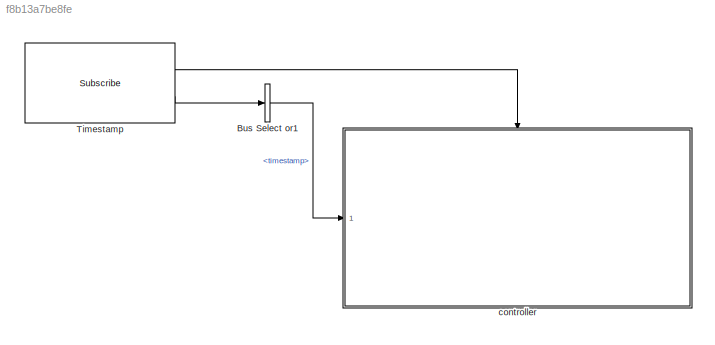
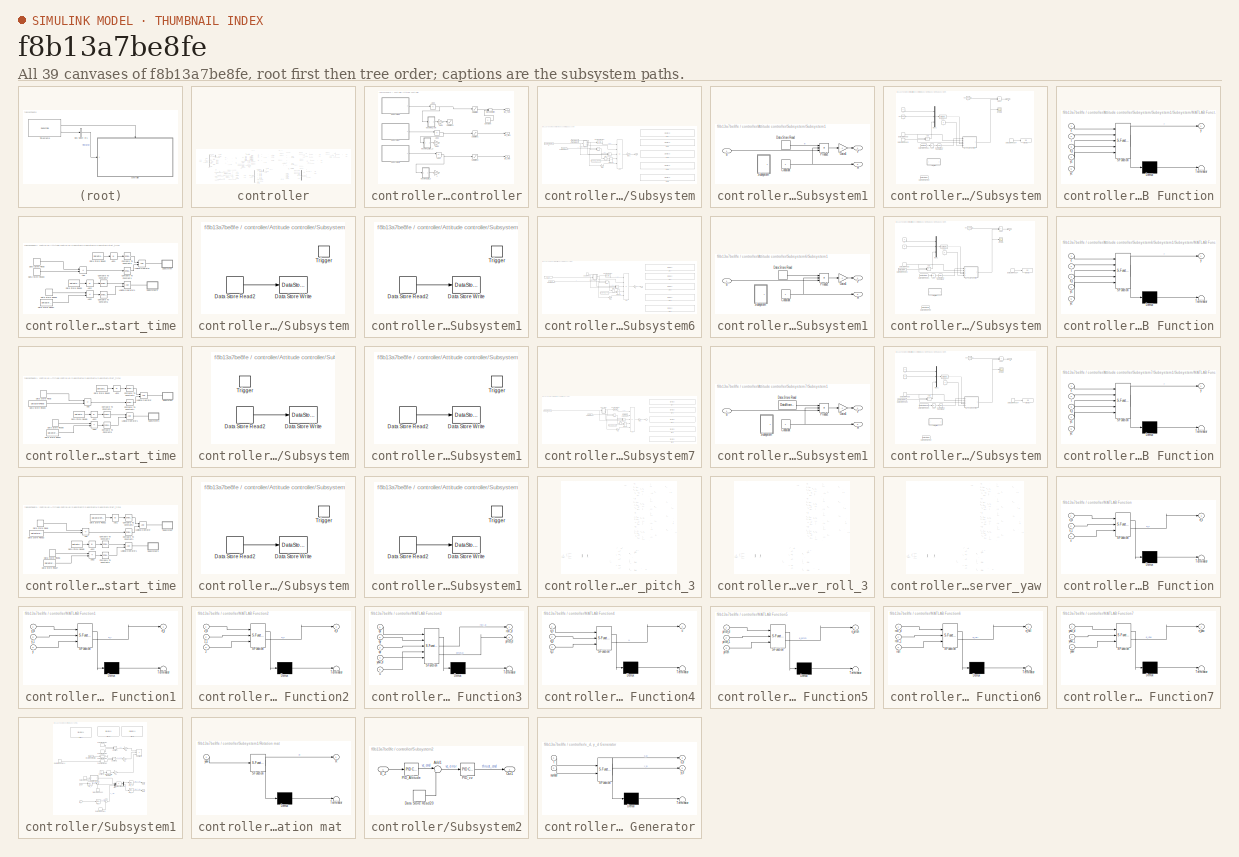
[diagram: thumbnail index - all 39 canvases of the model, root first then tree order]
MODEL slx_f8b13a7be8fe
KIND model
CONFIG AbsTol = auto
CONFIG EnableMultiTasking = off
CONFIG FixedStep = 0.001
CONFIG MaxStep = auto
CONFIG MinStep = auto
CONFIG RelTol = 1e-3
CONFIG SampleTimeConstraint = Unconstrained
CONFIG SolverName = FixedStepAuto
CONFIG StartTime = 0.0
CONFIG StopTime = inf
BLOCK [BusSelector] Bus Select or1
  OutputSignals = timestamp
  Ports = [1, 1]
BLOCK [Reference] Timestamp  REF=ros2lib/Subscribe  (lib defined in slx_3c1549211f48)
  Ports = [0, 2]
  SourceBlock = ros2lib/Subscribe
  SourceProductBaseCode = RR
  SourceType = ROS2 Subscribe
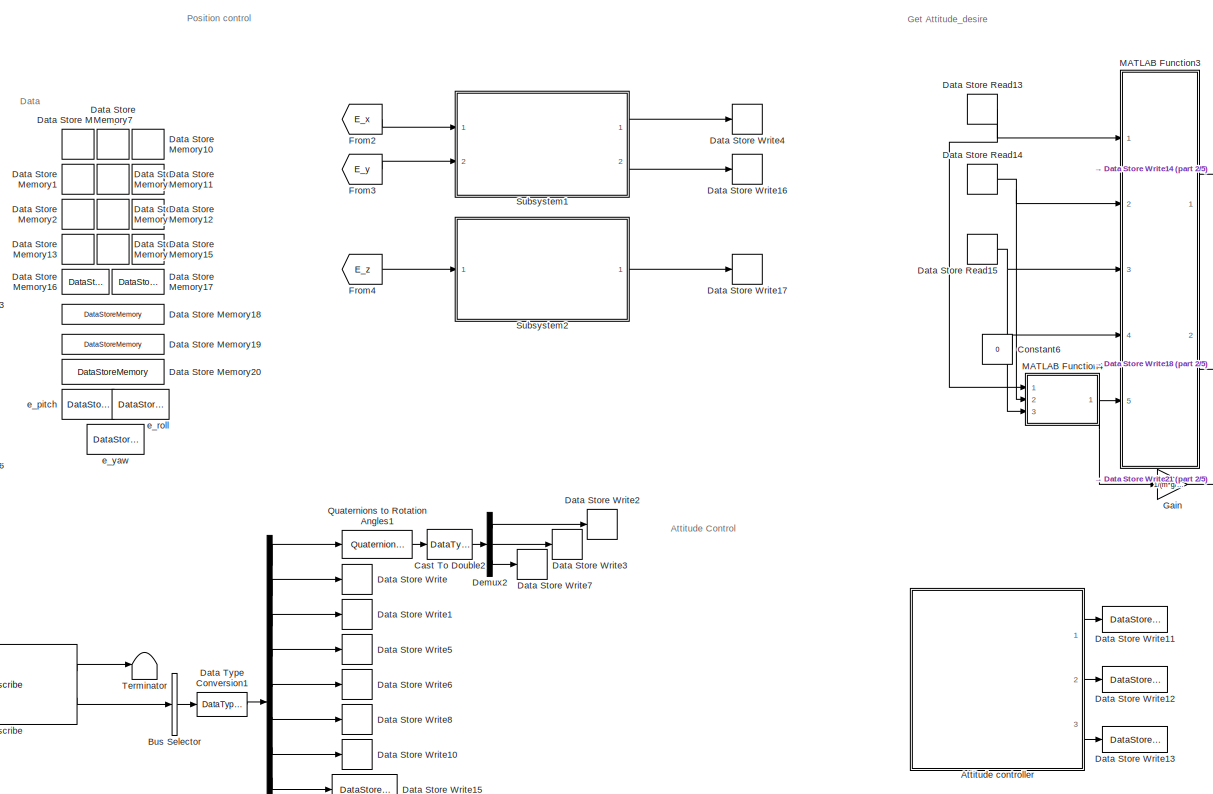
[diagram: controller - part 1/5, center side, full height]
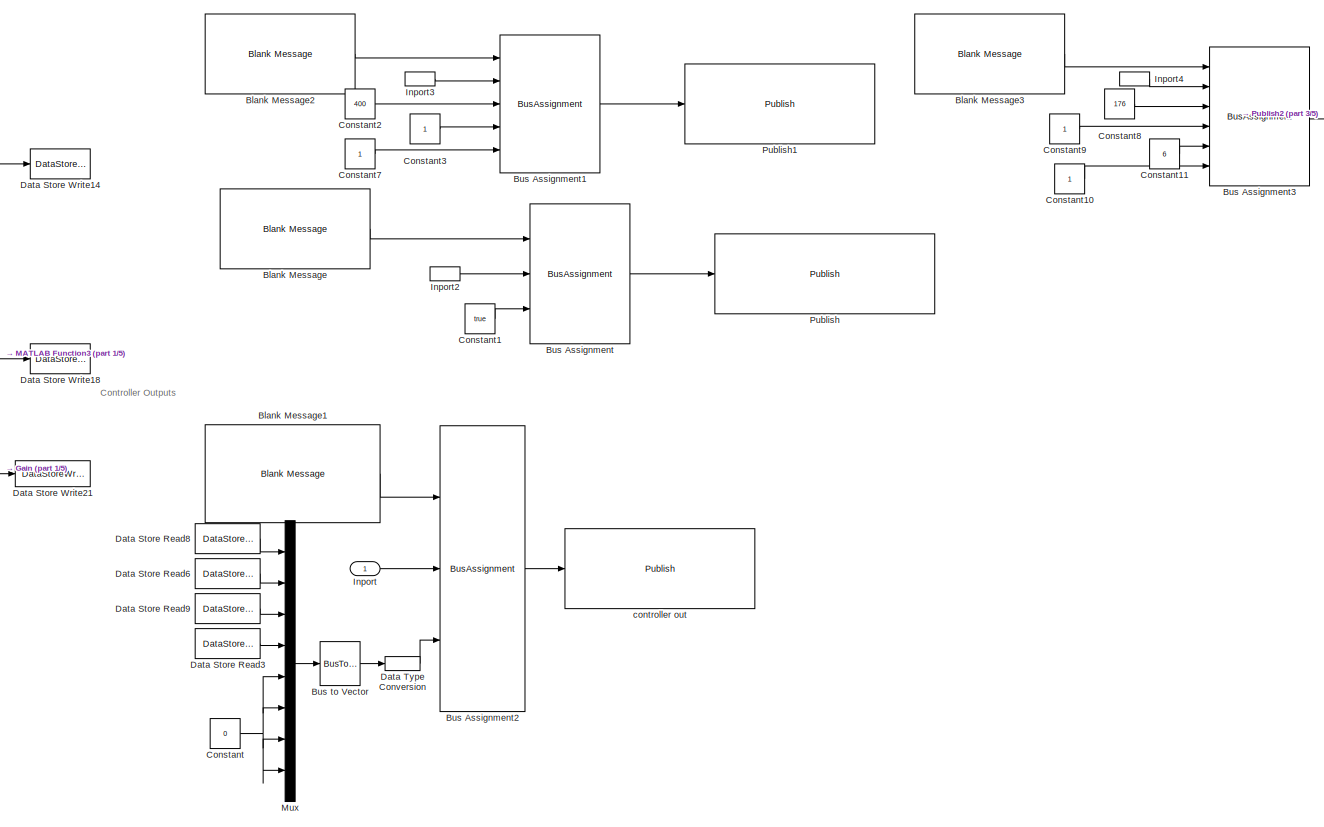
[diagram: controller - part 2/5, right side, full height]
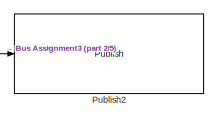
[diagram: controller - part 3/5, top right region]
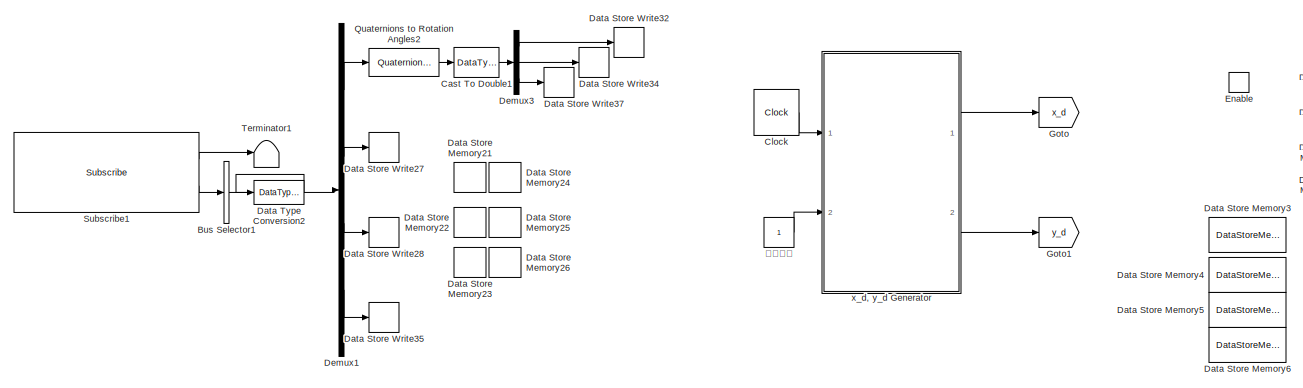
[diagram: controller - part 4/5, middle left region]
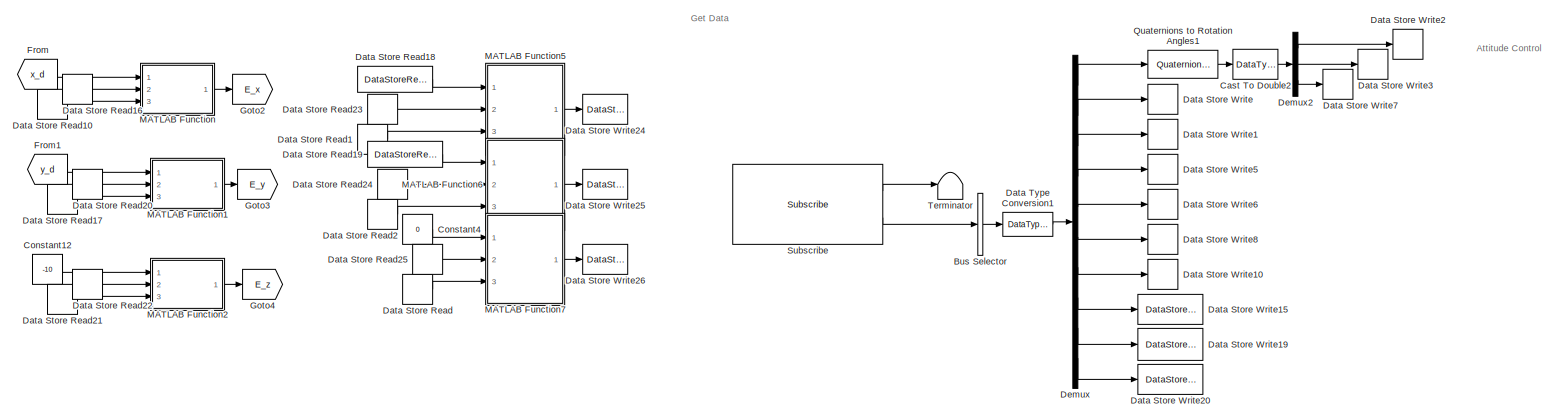
[diagram: controller - part 5/5, bottom left region]
BLOCK [SubSystem] controller
  Ports = [1, 0, 1]
  RequestExecContextInheritance = off
BLOCK [SubSystem] controller/Attitude controller
  Ports = [0, 3]
  RequestExecContextInheritance = off
BLOCK [Sum] controller/Attitude controller/Add1
  IconShape = rectangular
  Inputs = +-
  Ports = [2, 1]
BLOCK [Sum] controller/Attitude controller/Add2
  IconShape = rectangular
  Inputs = +-
  Ports = [2, 1]
BLOCK [Sum] controller/Attitude controller/Add3
  IconShape = rectangular
  Inputs = +-
  Ports = [2, 1]
BLOCK [Constant] controller/Attitude controller/Constant
  Value = 0
BLOCK [Gain] controller/Attitude controller/Gain1
  Commented = on
  Gain = 0.008
BLOCK [Gain] controller/Attitude controller/Gain2
  Commented = on
  Gain = 0.00478
BLOCK [Gain] controller/Attitude controller/J
  Commented = on
  Gain = 0.00478
BLOCK [ManualSwitch] controller/Attitude controller/Manual Switch
BLOCK [Saturate] controller/Attitude controller/Saturation
  LowerLimit = -att_limit
  UpperLimit = att_limit
BLOCK [Saturate] controller/Attitude controller/Saturation1
  LowerLimit = -att_limit
  UpperLimit = att_limit
BLOCK [Saturate] controller/Attitude controller/Saturation2
  LowerLimit = -att_limit
  UpperLimit = att_limit
BLOCK [Saturate] controller/Attitude controller/Saturation4
  Commented = on
  UpperLimit = 0.2
BLOCK [SubSystem] controller/Attitude controller/Subsystem
  Ports = [0, 1]
  RequestExecContextInheritance = off
BLOCK [Sum] controller/Attitude controller/Subsystem/Add
  IconShape = rectangular
  Inputs = +----
  Ports = [5, 1]
BLOCK [Sum] controller/Attitude controller/Subsystem/Add1
  IconShape = rectangular
  Inputs = +-
  Ports = [2, 1]
BLOCK [DataStoreRead] controller/Attitude controller/Subsystem/Data Store Read
  DataStoreName = e_pitch
  IndexOptions = Index vector (dialog)
  Indices = 1
  OutputSizes = 1
  Ports = [0, 1]
BLOCK [DataStoreRead] controller/Attitude controller/Subsystem/Data Store Read1
  DataStoreName = pitch_speed
  IndexOptions = Index vector (dialog)
  Indices = 1
  OutputSizes = 1
  Ports = [0, 1]
BLOCK [Reference] controller/Attitude controller/Subsystem/Discrete Derivative1  REF=simulink/Discrete/Discrete Derivative
  Ports = [1, 1]
  SourceBlock = simulink/Discrete/Discrete Derivative
  SourceProductBaseCode = SL
  SourceType = Discrete Derivative
BLOCK [Gain] controller/Attitude controller/Subsystem/Gain
  Gain = 0.01/0.0052
BLOCK [Gain] controller/Attitude controller/Subsystem/Gain1
  Gain = 0.029125
BLOCK [Product] controller/Attitude controller/Subsystem/Product
  Inputs = 3
  Ports = [3, 1]
BLOCK [Product] controller/Attitude controller/Subsystem/Product1
  Ports = [2, 1]
BLOCK [Signum] controller/Attitude controller/Subsystem/Sign
BLOCK [SliderBlock] controller/Attitude controller/Subsystem/Slider
  ScaleMax = 20
BLOCK [SliderBlock] controller/Attitude controller/Subsystem/Slider1
  ScaleMax = 20
BLOCK [SliderBlock] controller/Attitude controller/Subsystem/Slider2
  ScaleMax = 10
  ScaleMin = 2
BLOCK [SliderBlock] controller/Attitude controller/Subsystem/Slider3
  ScaleMax = 20
BLOCK [SliderBlock] controller/Attitude controller/Subsystem/Slider4
  ScaleMax = 10
BLOCK [SubSystem] controller/Attitude controller/Subsystem/Subsystem1
  Ports = [1, 2]
  RequestExecContextInheritance = off
BLOCK [Constant] controller/Attitude controller/Subsystem/Subsystem1/Constant
  OutDataTypeStr = double
BLOCK [DataStoreRead] controller/Attitude controller/Subsystem/Subsystem1/Data Store Read
  DataStoreName = e_pitch
  IndexOptions = Index vector (dialog)
  Indices = 1
  OutputSizes = 1
  Ports = [0, 1]
BLOCK [Gain] controller/Attitude controller/Subsystem/Subsystem1/Gain4
  Gain = -1
BLOCK [Outport] controller/Attitude controller/Subsystem/Subsystem1/H
  Port = 2
BLOCK [Product] controller/Attitude controller/Subsystem/Subsystem1/Product
  Inputs = 3
  Ports = [3, 1]
BLOCK [SubSystem] controller/Attitude controller/Subsystem/Subsystem1/Subsystem
  Commented = on
  Ports = [0, 1]
  RequestExecContextInheritance = off
BLOCK [Abs] controller/Attitude controller/Subsystem/Subsystem1/Subsystem/Abs
  SaturateOnIntegerOverflow = off
BLOCK [Sum] controller/Attitude controller/Subsystem/Subsystem1/Subsystem/Add
  IconShape = rectangular
  Inputs = +-
  Ports = [2, 1]
BLOCK [Sum] controller/Attitude controller/Subsystem/Subsystem1/Subsystem/Add1
  IconShape = rectangular
  Ports = [2, 1]
BLOCK [Reference] controller/Attitude controller/Subsystem/Subsystem1/Subsystem/Compare To Constant1  REF=simulink/Logic and Bit
Operations/Compare
To Constant
  Ports = [1, 1]
  SourceBlock = simulink/Logic and Bit\nOperations/Compare\nTo Constant
  SourceProductBaseCode = SL
  SourceType = Compare To Constant
BLOCK [DataStoreMemory] controller/Attitude controller/Subsystem/Subsystem1/Subsystem/Data Store Memory
  DataStoreName = start_time
  ReadBeforeWriteMsg = warning
  ShowAdditionalParam = off
  WriteAfterReadMsg = warning
  WriteAfterWriteMsg = warning
BLOCK [DataStoreRead] controller/Attitude controller/Subsystem/Subsystem1/Subsystem/Data Store Read
  DataStoreName = t
  IndexOptions = Index vector (dialog)
  Indices = 1
  OutputSizes = 1
  Ports = [0, 1]
BLOCK [DataStoreRead] controller/Attitude controller/Subsystem/Subsystem1/Subsystem/Data Store Read1
  DataStoreName = e_pitch
  IndexOptions = Index vector (dialog)
  Indices = 1
  OutputSizes = 1
  Ports = [0, 1]
BLOCK [DataStoreRead] controller/Attitude controller/Subsystem/Subsystem1/Subsystem/Data Store Read3
  DataStoreName = start_time
  IndexOptions = Index vector (dialog)
  Indices = 1
  OutputSizes = 1
  Ports = [0, 1]
BLOCK [DataStoreRead] controller/Attitude controller/Subsystem/Subsystem1/Subsystem/Data Store Read4
  DataStoreName = start_time
  IndexOptions = Index vector (dialog)
  Indices = 1
  OutputSizes = 1
  Ports = [0, 1]
BLOCK [Display] controller/Attitude controller/Subsystem/Subsystem1/Subsystem/Display
  Decimation = 1
  Ports = [1]
BLOCK [Fcn] controller/Attitude controller/Subsystem/Subsystem1/Subsystem/Fcn
  Expr = u(1)/(u(2)-u(3))
BLOCK [Outport] controller/Attitude controller/Subsystem/Subsystem1/Subsystem/H
BLOCK [SubSystem] controller/Attitude controller/Subsystem/Subsystem1/Subsystem/MATLAB Function
  ErrorFcn = Stateflow.Translate.translate
  PermitHierarchicalResolution = ExplicitOnly
  Ports = [5, 1]
  RequestExecContextInheritance = off
  SFBlockType = MATLAB Function
  TreatAsAtomicUnit = on
BLOCK [Demux] controller/Attitude controller/Subsystem/Subsystem1/Subsystem/MATLAB Function/ Demux 
  Outputs = 1
  Ports = [1, 1]
BLOCK [S-Function] controller/Attitude controller/Subsystem/Subsystem1/Subsystem/MATLAB Function/ SFunction 
  EnableBusSupport = on
  FunctionName = sf_sfun
  PortCounts = [5 2]
  Ports = [5, 2]
  SFcnIsStateOwnerBlock = off
  SFunctionDeploymentMode = off
  Tag = Stateflow S-Function 2
BLOCK [Terminator] controller/Attitude controller/Subsystem/Subsystem1/Subsystem/MATLAB Function/ Terminator 
BLOCK [Inport] controller/Attitude controller/Subsystem/Subsystem1/Subsystem/MATLAB Function/e
BLOCK [Inport] controller/Attitude controller/Subsystem/Subsystem1/Subsystem/MATLAB Function/s_t
  Port = 3
BLOCK [Inport] controller/Attitude controller/Subsystem/Subsystem1/Subsystem/MATLAB Function/t
  Port = 2
BLOCK [Outport] controller/Attitude controller/Subsystem/Subsystem1/Subsystem/MATLAB Function/y
BLOCK [Inport] controller/Attitude controller/Subsystem/Subsystem1/Subsystem/MATLAB Function/y1
  Port = 4
BLOCK [Inport] controller/Attitude controller/Subsystem/Subsystem1/Subsystem/MATLAB Function/y2
  Port = 5
BLOCK [Mux] controller/Attitude controller/Subsystem/Subsystem1/Subsystem/Mux1
  DisplayOption = bar
  Inputs = 3
  Ports = [3, 1]
BLOCK [Scope] controller/Attitude controller/Subsystem/Subsystem1/Subsystem/Scope
  Floating = off
  NumInputPorts = 1
  Ports = [1]
  ScopeSpecificationString = Simulink.scopes.TimeScopeBlockCfg('CurrentConfiguration', extmgr.ConfigurationSet(extmgr.Configuration('Core','General UI',true),extmgr.Configuration('Core','Source UI',true),extmgr.Configuration('Sources','WiredSimulink',true,'DataLoggingVariableName','ScopeData1'),extmgr.Configuration('Visuals','Time Domain',true,'SerializedDisplays',{struct('MinYLimReal','-1.25','MaxYLimReal','11.25','YLabelRea...<+1484ch>  <repeated x3 — deduplicated; at blocks: Scope>
BLOCK [Constant] controller/Attitude controller/Subsystem/Subsystem1/Subsystem/T
  Value = 5.018640350877193
BLOCK [Constant] controller/Attitude controller/Subsystem/Subsystem1/Subsystem/ch
  Value = 2
BLOCK [Constant] controller/Attitude controller/Subsystem/Subsystem1/Subsystem/r
  Value = 6.033653846153846
BLOCK [SubSystem] controller/Attitude controller/Subsystem/Subsystem1/Subsystem/start_time
  Ports = []
  RequestExecContextInheritance = off
BLOCK [Abs] controller/Attitude controller/Subsystem/Subsystem1/Subsystem/start_time/Abs1
  SaturateOnIntegerOverflow = off
BLOCK [Abs] controller/Attitude controller/Subsystem/Subsystem1/Subsystem/start_time/Abs2
  Commented = on
  SaturateOnIntegerOverflow = off
BLOCK [Sum] controller/Attitude controller/Subsystem/Subsystem1/Subsystem/start_time/Add
  IconShape = rectangular
  Inputs = +-
  Ports = [2, 1]
BLOCK [Sum] controller/Attitude controller/Subsystem/Subsystem1/Subsystem/start_time/Add2
  Commented = on
  IconShape = rectangular
  Inputs = +-
  Ports = [2, 1]
BLOCK [Reference] controller/Attitude controller/Subsystem/Subsystem1/Subsystem/start_time/Compare To Constant1  REF=simulink/Logic and Bit
Operations/Compare
To Constant
  Ports = [1, 1]
  SourceBlock = simulink/Logic and Bit\nOperations/Compare\nTo Constant
  SourceProductBaseCode = SL
  SourceType = Compare To Constant
BLOCK [Reference] controller/Attitude controller/Subsystem/Subsystem1/Subsystem/start_time/Compare To Constant2  REF=simulink/Logic and Bit
Operations/Compare
To Constant
  Ports = [1, 1]
  SourceBlock = simulink/Logic and Bit\nOperations/Compare\nTo Constant
  SourceProductBaseCode = SL
  SourceType = Compare To Constant
BLOCK [Reference] controller/Attitude controller/Subsystem/Subsystem1/Subsystem/start_time/Compare To Constant4  REF=simulink/Logic and Bit
Operations/Compare
To Constant
  Commented = on
  Ports = [1, 1]
  SourceBlock = simulink/Logic and Bit\nOperations/Compare\nTo Constant
  SourceProductBaseCode = SL
  SourceType = Compare To Constant
BLOCK [Reference] controller/Attitude controller/Subsystem/Subsystem1/Subsystem/start_time/Compare To Constant5  REF=simulink/Logic and Bit
Operations/Compare
To Constant
  Commented = on
  Ports = [1, 1]
  SourceBlock = simulink/Logic and Bit\nOperations/Compare\nTo Constant
  SourceProductBaseCode = SL
  SourceType = Compare To Constant
BLOCK [DataStoreRead] controller/Attitude controller/Subsystem/Subsystem1/Subsystem/start_time/Data Store Read
  DataStoreName = t
  IndexOptions = Index vector (dialog)
  Indices = 1
  OutputSizes = 1
  Ports = [0, 1]
BLOCK [DataStoreRead] controller/Attitude controller/Subsystem/Subsystem1/Subsystem/start_time/Data Store Read2
  DataStoreName = e_pitch
  IndexOptions = Index vector (dialog)
  Indices = 1
  OutputSizes = 1
  Ports = [0, 1]
BLOCK [DataStoreRead] controller/Attitude controller/Subsystem/Subsystem1/Subsystem/start_time/Data Store Read3
  DataStoreName = start_time
  IndexOptions = Index vector (dialog)
  Indices = 1
  OutputSizes = 1
  Ports = [0, 1]
BLOCK [DataStoreRead] controller/Attitude controller/Subsystem/Subsystem1/Subsystem/start_time/Data Store Read5
  Commented = on
  DataStoreName = e_pitch
  IndexOptions = Index vector (dialog)
  Indices = 1
  OutputSizes = 1
  Ports = [0, 1]
BLOCK [DataStoreRead] controller/Attitude controller/Subsystem/Subsystem1/Subsystem/start_time/Data Store Read6
  Commented = on
  DataStoreName = t
  IndexOptions = Index vector (dialog)
  Indices = 1
  OutputSizes = 1
  Ports = [0, 1]
BLOCK [DataStoreRead] controller/Attitude controller/Subsystem/Subsystem1/Subsystem/start_time/Data Store Read7
  Commented = on
  DataStoreName = start_time
  IndexOptions = Index vector (dialog)
  Indices = 1
  OutputSizes = 1
  Ports = [0, 1]
BLOCK [Logic] controller/Attitude controller/Subsystem/Subsystem1/Subsystem/start_time/Logical Operator
  AllPortsSameDT = off
  OutDataTypeStr = boolean
  Ports = [2, 1]
BLOCK [Logic] controller/Attitude controller/Subsystem/Subsystem1/Subsystem/start_time/Logical Operator1
  AllPortsSameDT = off
  Commented = on
  OutDataTypeStr = boolean
  Ports = [2, 1]
BLOCK [SubSystem] controller/Attitude controller/Subsystem/Subsystem1/Subsystem/start_time/Subsystem
  NameLocation = right
  Ports = [0, 0, 0, 1]
  RequestExecContextInheritance = off
BLOCK [DataStoreRead] controller/Attitude controller/Subsystem/Subsystem1/Subsystem/start_time/Subsystem/Data Store Read2
  DataStoreName = t
  IndexOptions = Index vector (dialog)
  Indices = 1
  OutputSizes = 1
  Ports = [0, 1]
BLOCK [DataStoreWrite] controller/Attitude controller/Subsystem/Subsystem1/Subsystem/start_time/Subsystem/Data Store Write
  DataStoreName = start_time
  IndexOptions = Index vector (dialog)
  Indices = 1
  OutputSizes = 1
  Ports = [1]
BLOCK [TriggerPort] controller/Attitude controller/Subsystem/Subsystem1/Subsystem/start_time/Subsystem/Trigger
  PortDimensions = 1
  Ports = []
  StatesWhenEnabling = held
  VariantControl = Variant
BLOCK [SubSystem] controller/Attitude controller/Subsystem/Subsystem1/Subsystem/start_time/Subsystem1
  Commented = on
  NameLocation = right
  Ports = [0, 0, 0, 1]
  RequestExecContextInheritance = off
BLOCK [DataStoreRead] controller/Attitude controller/Subsystem/Subsystem1/Subsystem/start_time/Subsystem1/Data Store Read2
  DataStoreName = t
  IndexOptions = Index vector (dialog)
  Indices = 1
  OutputSizes = 1
  Ports = [0, 1]
BLOCK [DataStoreWrite] controller/Attitude controller/Subsystem/Subsystem1/Subsystem/start_time/Subsystem1/Data Store Write
  DataStoreName = start_time
  IndexOptions = Index vector (dialog)
  Indices = 1
  OutputSizes = 1
  Ports = [1]
BLOCK [TriggerPort] controller/Attitude controller/Subsystem/Subsystem1/Subsystem/start_time/Subsystem1/Trigger
  PortDimensions = 1
  Ports = []
  StatesWhenEnabling = held
  VariantControl = Variant
BLOCK [Constant] controller/Attitude controller/Subsystem/Subsystem1/Subsystem/t
  Value = 0
BLOCK [Inport] controller/Attitude controller/Subsystem/Subsystem1/b
BLOCK [Outport] controller/Attitude controller/Subsystem/Subsystem1/v*
BLOCK [Constant] controller/Attitude controller/Subsystem/b
  Value = 1.170900809716599
BLOCK [Constant] controller/Attitude controller/Subsystem/l
  Value = 0.5282118055555556
BLOCK [Outport] controller/Attitude controller/Subsystem/u2
BLOCK [SubSystem] controller/Attitude controller/Subsystem6
  Ports = [0, 1]
  RequestExecContextInheritance = off
BLOCK [Sum] controller/Attitude controller/Subsystem6/Add
  IconShape = rectangular
  Inputs = +----
  Ports = [5, 1]
BLOCK [Sum] controller/Attitude controller/Subsystem6/Add1
  IconShape = rectangular
  Inputs = +-
  Ports = [2, 1]
BLOCK [DataStoreRead] controller/Attitude controller/Subsystem6/Data Store Read
  DataStoreName = e_roll
  IndexOptions = Index vector (dialog)
  Indices = 1
  OutputSizes = 1
  Ports = [0, 1]
BLOCK [DataStoreRead] controller/Attitude controller/Subsystem6/Data Store Read1
  DataStoreName = roll_speed
  IndexOptions = Index vector (dialog)
  Indices = 1
  OutputSizes = 1
  Ports = [0, 1]
BLOCK [Reference] controller/Attitude controller/Subsystem6/Discrete Derivative1  REF=simulink/Discrete/Discrete Derivative
  Ports = [1, 1]
  SourceBlock = simulink/Discrete/Discrete Derivative
  SourceProductBaseCode = SL
  SourceType = Discrete Derivative
BLOCK [Gain] controller/Attitude controller/Subsystem6/Gain
  Gain = 0.01/0.0052
BLOCK [Gain] controller/Attitude controller/Subsystem6/J
  Gain = 0.029125
BLOCK [Product] controller/Attitude controller/Subsystem6/Product
  Inputs = 3
  Ports = [3, 1]
BLOCK [Product] controller/Attitude controller/Subsystem6/Product1
  Ports = [2, 1]
BLOCK [Signum] controller/Attitude controller/Subsystem6/Sign
BLOCK [SliderBlock] controller/Attitude controller/Subsystem6/Slider
  ScaleMax = 20
BLOCK [SliderBlock] controller/Attitude controller/Subsystem6/Slider1
  ScaleMax = 20
BLOCK [SliderBlock] controller/Attitude controller/Subsystem6/Slider2
  ScaleMax = 10
  ScaleMin = 2
BLOCK [SliderBlock] controller/Attitude controller/Subsystem6/Slider3
  ScaleMax = 20
BLOCK [SliderBlock] controller/Attitude controller/Subsystem6/Slider4
  ScaleMax = 10
BLOCK [SubSystem] controller/Attitude controller/Subsystem6/Subsystem1
  Ports = [1, 2]
  RequestExecContextInheritance = off
BLOCK [Constant] controller/Attitude controller/Subsystem6/Subsystem1/Constant
  OutDataTypeStr = double
BLOCK [DataStoreRead] controller/Attitude controller/Subsystem6/Subsystem1/Data Store Read
  DataStoreName = e_roll
  IndexOptions = Index vector (dialog)
  Indices = 1
  OutputSizes = 1
  Ports = [0, 1]
BLOCK [Gain] controller/Attitude controller/Subsystem6/Subsystem1/Gain4
  Gain = -1
BLOCK [Outport] controller/Attitude controller/Subsystem6/Subsystem1/H
  Port = 2
BLOCK [Product] controller/Attitude controller/Subsystem6/Subsystem1/Product
  Inputs = 3
  Ports = [3, 1]
BLOCK [SubSystem] controller/Attitude controller/Subsystem6/Subsystem1/Subsystem
  Commented = on
  Ports = [0, 1]
  RequestExecContextInheritance = off
BLOCK [Abs] controller/Attitude controller/Subsystem6/Subsystem1/Subsystem/Abs
  SaturateOnIntegerOverflow = off
BLOCK [Sum] controller/Attitude controller/Subsystem6/Subsystem1/Subsystem/Add
  IconShape = rectangular
  Inputs = +-
  Ports = [2, 1]
BLOCK [Sum] controller/Attitude controller/Subsystem6/Subsystem1/Subsystem/Add1
  IconShape = rectangular
  Ports = [2, 1]
BLOCK [Reference] controller/Attitude controller/Subsystem6/Subsystem1/Subsystem/Compare To Constant1  REF=simulink/Logic and Bit
Operations/Compare
To Constant
  Ports = [1, 1]
  SourceBlock = simulink/Logic and Bit\nOperations/Compare\nTo Constant
  SourceProductBaseCode = SL
  SourceType = Compare To Constant
BLOCK [DataStoreMemory] controller/Attitude controller/Subsystem6/Subsystem1/Subsystem/Data Store Memory
  DataStoreName = start_time_roll
  ReadBeforeWriteMsg = warning
  ShowAdditionalParam = off
  WriteAfterReadMsg = warning
  WriteAfterWriteMsg = warning
BLOCK [DataStoreRead] controller/Attitude controller/Subsystem6/Subsystem1/Subsystem/Data Store Read
  DataStoreName = t
  IndexOptions = Index vector (dialog)
  Indices = 1
  OutputSizes = 1
  Ports = [0, 1]
BLOCK [DataStoreRead] controller/Attitude controller/Subsystem6/Subsystem1/Subsystem/Data Store Read1
  DataStoreName = e_pitch_roll
  IndexOptions = Index vector (dialog)
  Indices = 1
  OutputSizes = 1
  Ports = [0, 1]
BLOCK [DataStoreRead] controller/Attitude controller/Subsystem6/Subsystem1/Subsystem/Data Store Read3
  DataStoreName = start_time_roll
  IndexOptions = Index vector (dialog)
  Indices = 1
  OutputSizes = 1
  Ports = [0, 1]
BLOCK [DataStoreRead] controller/Attitude controller/Subsystem6/Subsystem1/Subsystem/Data Store Read4
  DataStoreName = start_time_roll
  IndexOptions = Index vector (dialog)
  Indices = 1
  OutputSizes = 1
  Ports = [0, 1]
BLOCK [Display] controller/Attitude controller/Subsystem6/Subsystem1/Subsystem/Display
  Decimation = 1
  Ports = [1]
BLOCK [Fcn] controller/Attitude controller/Subsystem6/Subsystem1/Subsystem/Fcn
  Expr = u(1)/(u(2)-u(3))
BLOCK [Outport] controller/Attitude controller/Subsystem6/Subsystem1/Subsystem/H
BLOCK [SubSystem] controller/Attitude controller/Subsystem6/Subsystem1/Subsystem/MATLAB Function
  ErrorFcn = Stateflow.Translate.translate
  PermitHierarchicalResolution = ExplicitOnly
  Ports = [5, 1]
  RequestExecContextInheritance = off
  SFBlockType = MATLAB Function
  TreatAsAtomicUnit = on
BLOCK [Demux] controller/Attitude controller/Subsystem6/Subsystem1/Subsystem/MATLAB Function/ Demux 
  Outputs = 1
  Ports = [1, 1]
BLOCK [S-Function] controller/Attitude controller/Subsystem6/Subsystem1/Subsystem/MATLAB Function/ SFunction 
  EnableBusSupport = on
  FunctionName = sf_sfun
  PortCounts = [5 2]
  Ports = [5, 2]
  SFcnIsStateOwnerBlock = off
  SFunctionDeploymentMode = off
  Tag = Stateflow S-Function 14
BLOCK [Terminator] controller/Attitude controller/Subsystem6/Subsystem1/Subsystem/MATLAB Function/ Terminator 
BLOCK [Inport] controller/Attitude controller/Subsystem6/Subsystem1/Subsystem/MATLAB Function/e
BLOCK [Inport] controller/Attitude controller/Subsystem6/Subsystem1/Subsystem/MATLAB Function/s_t
  Port = 3
BLOCK [Inport] controller/Attitude controller/Subsystem6/Subsystem1/Subsystem/MATLAB Function/t
  Port = 2
BLOCK [Outport] controller/Attitude controller/Subsystem6/Subsystem1/Subsystem/MATLAB Function/y
BLOCK [Inport] controller/Attitude controller/Subsystem6/Subsystem1/Subsystem/MATLAB Function/y1
  Port = 4
BLOCK [Inport] controller/Attitude controller/Subsystem6/Subsystem1/Subsystem/MATLAB Function/y2
  Port = 5
BLOCK [Mux] controller/Attitude controller/Subsystem6/Subsystem1/Subsystem/Mux1
  DisplayOption = bar
  Inputs = 3
  Ports = [3, 1]
BLOCK [Scope] controller/Attitude controller/Subsystem6/Subsystem1/Subsystem/Scope
  Floating = off
  NumInputPorts = 1
  Ports = [1]
BLOCK [Constant] controller/Attitude controller/Subsystem6/Subsystem1/Subsystem/T
  Value = 5
BLOCK [Constant] controller/Attitude controller/Subsystem6/Subsystem1/Subsystem/ch
  Value = 2
BLOCK [Constant] controller/Attitude controller/Subsystem6/Subsystem1/Subsystem/r
  Value = 6.001388888888889
BLOCK [SubSystem] controller/Attitude controller/Subsystem6/Subsystem1/Subsystem/start_time
  Ports = []
  RequestExecContextInheritance = off
BLOCK [Abs] controller/Attitude controller/Subsystem6/Subsystem1/Subsystem/start_time/Abs1
  SaturateOnIntegerOverflow = off
BLOCK [Abs] controller/Attitude controller/Subsystem6/Subsystem1/Subsystem/start_time/Abs2
  Commented = on
  SaturateOnIntegerOverflow = off
BLOCK [Sum] controller/Attitude controller/Subsystem6/Subsystem1/Subsystem/start_time/Add
  IconShape = rectangular
  Inputs = +-
  Ports = [2, 1]
BLOCK [Sum] controller/Attitude controller/Subsystem6/Subsystem1/Subsystem/start_time/Add2
  Commented = on
  IconShape = rectangular
  Inputs = +-
  Ports = [2, 1]
BLOCK [Reference] controller/Attitude controller/Subsystem6/Subsystem1/Subsystem/start_time/Compare To Constant1  REF=simulink/Logic and Bit
Operations/Compare
To Constant
  Ports = [1, 1]
  SourceBlock = simulink/Logic and Bit\nOperations/Compare\nTo Constant
  SourceProductBaseCode = SL
  SourceType = Compare To Constant
BLOCK [Reference] controller/Attitude controller/Subsystem6/Subsystem1/Subsystem/start_time/Compare To Constant2  REF=simulink/Logic and Bit
Operations/Compare
To Constant
  Ports = [1, 1]
  SourceBlock = simulink/Logic and Bit\nOperations/Compare\nTo Constant
  SourceProductBaseCode = SL
  SourceType = Compare To Constant
BLOCK [Reference] controller/Attitude controller/Subsystem6/Subsystem1/Subsystem/start_time/Compare To Constant4  REF=simulink/Logic and Bit
Operations/Compare
To Constant
  Commented = on
  Ports = [1, 1]
  SourceBlock = simulink/Logic and Bit\nOperations/Compare\nTo Constant
  SourceProductBaseCode = SL
  SourceType = Compare To Constant
BLOCK [Reference] controller/Attitude controller/Subsystem6/Subsystem1/Subsystem/start_time/Compare To Constant5  REF=simulink/Logic and Bit
Operations/Compare
To Constant
  Commented = on
  Ports = [1, 1]
  SourceBlock = simulink/Logic and Bit\nOperations/Compare\nTo Constant
  SourceProductBaseCode = SL
  SourceType = Compare To Constant
BLOCK [DataStoreRead] controller/Attitude controller/Subsystem6/Subsystem1/Subsystem/start_time/Data Store Read
  DataStoreName = t
  IndexOptions = Index vector (dialog)
  Indices = 1
  OutputSizes = 1
  Ports = [0, 1]
BLOCK [DataStoreRead] controller/Attitude controller/Subsystem6/Subsystem1/Subsystem/start_time/Data Store Read2
  DataStoreName = e_pitch_roll
  IndexOptions = Index vector (dialog)
  Indices = 1
  OutputSizes = 1
  Ports = [0, 1]
BLOCK [DataStoreRead] controller/Attitude controller/Subsystem6/Subsystem1/Subsystem/start_time/Data Store Read3
  DataStoreName = start_time_roll
  IndexOptions = Index vector (dialog)
  Indices = 1
  OutputSizes = 1
  Ports = [0, 1]
BLOCK [DataStoreRead] controller/Attitude controller/Subsystem6/Subsystem1/Subsystem/start_time/Data Store Read5
  Commented = on
  DataStoreName = e_pitch
  IndexOptions = Index vector (dialog)
  Indices = 1
  OutputSizes = 1
  Ports = [0, 1]
BLOCK [DataStoreRead] controller/Attitude controller/Subsystem6/Subsystem1/Subsystem/start_time/Data Store Read6
  Commented = on
  DataStoreName = t
  IndexOptions = Index vector (dialog)
  Indices = 1
  OutputSizes = 1
  Ports = [0, 1]
BLOCK [DataStoreRead] controller/Attitude controller/Subsystem6/Subsystem1/Subsystem/start_time/Data Store Read7
  Commented = on
  DataStoreName = start_time
  IndexOptions = Index vector (dialog)
  Indices = 1
  OutputSizes = 1
  Ports = [0, 1]
BLOCK [Logic] controller/Attitude controller/Subsystem6/Subsystem1/Subsystem/start_time/Logical Operator
  AllPortsSameDT = off
  OutDataTypeStr = boolean
  Ports = [2, 1]
BLOCK [Logic] controller/Attitude controller/Subsystem6/Subsystem1/Subsystem/start_time/Logical Operator1
  AllPortsSameDT = off
  Commented = on
  OutDataTypeStr = boolean
  Ports = [2, 1]
BLOCK [SubSystem] controller/Attitude controller/Subsystem6/Subsystem1/Subsystem/start_time/Subsystem
  NameLocation = right
  Ports = [0, 0, 0, 1]
  RequestExecContextInheritance = off
BLOCK [DataStoreRead] controller/Attitude controller/Subsystem6/Subsystem1/Subsystem/start_time/Subsystem/Data Store Read2
  DataStoreName = t
  IndexOptions = Index vector (dialog)
  Indices = 1
  OutputSizes = 1
  Ports = [0, 1]
BLOCK [DataStoreWrite] controller/Attitude controller/Subsystem6/Subsystem1/Subsystem/start_time/Subsystem/Data Store Write
  DataStoreName = start_time_roll
  IndexOptions = Index vector (dialog)
  Indices = 1
  OutputSizes = 1
  Ports = [1]
BLOCK [TriggerPort] controller/Attitude controller/Subsystem6/Subsystem1/Subsystem/start_time/Subsystem/Trigger
  PortDimensions = 1
  Ports = []
  StatesWhenEnabling = held
  VariantControl = Variant
BLOCK [SubSystem] controller/Attitude controller/Subsystem6/Subsystem1/Subsystem/start_time/Subsystem1
  Commented = on
  NameLocation = right
  Ports = [0, 0, 0, 1]
  RequestExecContextInheritance = off
BLOCK [DataStoreRead] controller/Attitude controller/Subsystem6/Subsystem1/Subsystem/start_time/Subsystem1/Data Store Read2
  DataStoreName = t
  IndexOptions = Index vector (dialog)
  Indices = 1
  OutputSizes = 1
  Ports = [0, 1]
BLOCK [DataStoreWrite] controller/Attitude controller/Subsystem6/Subsystem1/Subsystem/start_time/Subsystem1/Data Store Write
  DataStoreName = start_time
  IndexOptions = Index vector (dialog)
  Indices = 1
  OutputSizes = 1
  Ports = [1]
BLOCK [TriggerPort] controller/Attitude controller/Subsystem6/Subsystem1/Subsystem/start_time/Subsystem1/Trigger
  PortDimensions = 1
  Ports = []
  StatesWhenEnabling = held
  VariantControl = Variant
BLOCK [Constant] controller/Attitude controller/Subsystem6/Subsystem1/Subsystem/t
  Value = 0
BLOCK [Inport] controller/Attitude controller/Subsystem6/Subsystem1/b
BLOCK [Outport] controller/Attitude controller/Subsystem6/Subsystem1/v*
BLOCK [Constant] controller/Attitude controller/Subsystem6/b
  Value = 2.0234
BLOCK [Constant] controller/Attitude controller/Subsystem6/l
  Value = 0.006402777777777777
BLOCK [Outport] controller/Attitude controller/Subsystem6/u2
BLOCK [SubSystem] controller/Attitude controller/Subsystem7
  Ports = [0, 1]
  RequestExecContextInheritance = off
BLOCK [Sum] controller/Attitude controller/Subsystem7/Add
  IconShape = rectangular
  Inputs = +----
  Ports = [5, 1]
BLOCK [Sum] controller/Attitude controller/Subsystem7/Add1
  IconShape = rectangular
  Inputs = +-
  Ports = [2, 1]
BLOCK [DataStoreRead] controller/Attitude controller/Subsystem7/Data Store Read
  DataStoreName = e_yaw
  IndexOptions = Index vector (dialog)
  Indices = 1
  OutputSizes = 1
  Ports = [0, 1]
BLOCK [DataStoreRead] controller/Attitude controller/Subsystem7/Data Store Read1
  DataStoreName = yaw_speed
  IndexOptions = Index vector (dialog)
  Indices = 1
  OutputSizes = 1
  Ports = [0, 1]
BLOCK [Reference] controller/Attitude controller/Subsystem7/Discrete Derivative1  REF=simulink/Discrete/Discrete Derivative
  Ports = [1, 1]
  SourceBlock = simulink/Discrete/Discrete Derivative
  SourceProductBaseCode = SL
  SourceType = Discrete Derivative
BLOCK [Gain] controller/Attitude controller/Subsystem7/Gain
  Gain = 0.01/0.0052
BLOCK [Gain] controller/Attitude controller/Subsystem7/Gain1
  Gain = 0.00502
BLOCK [Product] controller/Attitude controller/Subsystem7/Product
  Inputs = 3
  Ports = [3, 1]
BLOCK [Product] controller/Attitude controller/Subsystem7/Product1
  Ports = [2, 1]
BLOCK [Signum] controller/Attitude controller/Subsystem7/Sign
BLOCK [SliderBlock] controller/Attitude controller/Subsystem7/Slider
  ScaleMax = 20
BLOCK [SliderBlock] controller/Attitude controller/Subsystem7/Slider1
  ScaleMax = 20
BLOCK [SliderBlock] controller/Attitude controller/Subsystem7/Slider2
  ScaleMax = 10
  ScaleMin = 2
BLOCK [SliderBlock] controller/Attitude controller/Subsystem7/Slider3
  ScaleMax = 20
BLOCK [SliderBlock] controller/Attitude controller/Subsystem7/Slider4
  ScaleMax = 10
BLOCK [SubSystem] controller/Attitude controller/Subsystem7/Subsystem1
  Ports = [1, 2]
  RequestExecContextInheritance = off
BLOCK [Constant] controller/Attitude controller/Subsystem7/Subsystem1/Constant
  OutDataTypeStr = double
BLOCK [DataStoreRead] controller/Attitude controller/Subsystem7/Subsystem1/Data Store Read
  DataStoreName = e_yaw
  IndexOptions = Index vector (dialog)
  Indices = 1
  OutputSizes = 1
  Ports = [0, 1]
BLOCK [Gain] controller/Attitude controller/Subsystem7/Subsystem1/Gain4
  Gain = -1
BLOCK [Outport] controller/Attitude controller/Subsystem7/Subsystem1/H
  Port = 2
BLOCK [Product] controller/Attitude controller/Subsystem7/Subsystem1/Product
  Inputs = 3
  Ports = [3, 1]
BLOCK [SubSystem] controller/Attitude controller/Subsystem7/Subsystem1/Subsystem
  Commented = on
  Ports = [0, 1]
  RequestExecContextInheritance = off
BLOCK [Abs] controller/Attitude controller/Subsystem7/Subsystem1/Subsystem/Abs
  SaturateOnIntegerOverflow = off
BLOCK [Sum] controller/Attitude controller/Subsystem7/Subsystem1/Subsystem/Add
  IconShape = rectangular
  Inputs = +-
  Ports = [2, 1]
BLOCK [Sum] controller/Attitude controller/Subsystem7/Subsystem1/Subsystem/Add1
  IconShape = rectangular
  Ports = [2, 1]
BLOCK [Reference] controller/Attitude controller/Subsystem7/Subsystem1/Subsystem/Compare To Constant1  REF=simulink/Logic and Bit
Operations/Compare
To Constant
  Ports = [1, 1]
  SourceBlock = simulink/Logic and Bit\nOperations/Compare\nTo Constant
  SourceProductBaseCode = SL
  SourceType = Compare To Constant
BLOCK [DataStoreMemory] controller/Attitude controller/Subsystem7/Subsystem1/Subsystem/Data Store Memory
  DataStoreName = start_time_yaw
  ReadBeforeWriteMsg = warning
  ShowAdditionalParam = off
  WriteAfterReadMsg = warning
  WriteAfterWriteMsg = warning
BLOCK [DataStoreRead] controller/Attitude controller/Subsystem7/Subsystem1/Subsystem/Data Store Read
  DataStoreName = t
  IndexOptions = Index vector (dialog)
  Indices = 1
  OutputSizes = 1
  Ports = [0, 1]
BLOCK [DataStoreRead] controller/Attitude controller/Subsystem7/Subsystem1/Subsystem/Data Store Read1
  DataStoreName = e_pitch_yaw
  IndexOptions = Index vector (dialog)
  Indices = 1
  OutputSizes = 1
  Ports = [0, 1]
BLOCK [DataStoreRead] controller/Attitude controller/Subsystem7/Subsystem1/Subsystem/Data Store Read3
  DataStoreName = start_time_yaw
  IndexOptions = Index vector (dialog)
  Indices = 1
  OutputSizes = 1
  Ports = [0, 1]
BLOCK [DataStoreRead] controller/Attitude controller/Subsystem7/Subsystem1/Subsystem/Data Store Read4
  DataStoreName = start_time_yaw
  IndexOptions = Index vector (dialog)
  Indices = 1
  OutputSizes = 1
  Ports = [0, 1]
BLOCK [Display] controller/Attitude controller/Subsystem7/Subsystem1/Subsystem/Display
  Decimation = 1
  Ports = [1]
BLOCK [Fcn] controller/Attitude controller/Subsystem7/Subsystem1/Subsystem/Fcn
  Expr = u(1)/(u(2)-u(3))
BLOCK [Outport] controller/Attitude controller/Subsystem7/Subsystem1/Subsystem/H
BLOCK [SubSystem] controller/Attitude controller/Subsystem7/Subsystem1/Subsystem/MATLAB Function
  ErrorFcn = Stateflow.Translate.translate
  PermitHierarchicalResolution = ExplicitOnly
  Ports = [5, 1]
  RequestExecContextInheritance = off
  SFBlockType = MATLAB Function
  TreatAsAtomicUnit = on
BLOCK [Demux] controller/Attitude controller/Subsystem7/Subsystem1/Subsystem/MATLAB Function/ Demux 
  Outputs = 1
  Ports = [1, 1]
BLOCK [S-Function] controller/Attitude controller/Subsystem7/Subsystem1/Subsystem/MATLAB Function/ SFunction 
  EnableBusSupport = on
  FunctionName = sf_sfun
  PortCounts = [5 2]
  Ports = [5, 2]
  SFcnIsStateOwnerBlock = off
  SFunctionDeploymentMode = off
  Tag = Stateflow S-Function 15
BLOCK [Terminator] controller/Attitude controller/Subsystem7/Subsystem1/Subsystem/MATLAB Function/ Terminator 
BLOCK [Inport] controller/Attitude controller/Subsystem7/Subsystem1/Subsystem/MATLAB Function/e
BLOCK [Inport] controller/Attitude controller/Subsystem7/Subsystem1/Subsystem/MATLAB Function/s_t
  Port = 3
BLOCK [Inport] controller/Attitude controller/Subsystem7/Subsystem1/Subsystem/MATLAB Function/t
  Port = 2
BLOCK [Outport] controller/Attitude controller/Subsystem7/Subsystem1/Subsystem/MATLAB Function/y
BLOCK [Inport] controller/Attitude controller/Subsystem7/Subsystem1/Subsystem/MATLAB Function/y1
  Port = 4
BLOCK [Inport] controller/Attitude controller/Subsystem7/Subsystem1/Subsystem/MATLAB Function/y2
  Port = 5
BLOCK [Mux] controller/Attitude controller/Subsystem7/Subsystem1/Subsystem/Mux1
  DisplayOption = bar
  Inputs = 3
  Ports = [3, 1]
BLOCK [Scope] controller/Attitude controller/Subsystem7/Subsystem1/Subsystem/Scope
  Floating = off
  NumInputPorts = 1
  Ports = [1]
BLOCK [Constant] controller/Attitude controller/Subsystem7/Subsystem1/Subsystem/T
  Value = 5
BLOCK [Constant] controller/Attitude controller/Subsystem7/Subsystem1/Subsystem/ch
  Value = 2
BLOCK [Constant] controller/Attitude controller/Subsystem7/Subsystem1/Subsystem/r
  Value = 8.00109649122807
BLOCK [SubSystem] controller/Attitude controller/Subsystem7/Subsystem1/Subsystem/start_time
  Ports = []
  RequestExecContextInheritance = off
BLOCK [Abs] controller/Attitude controller/Subsystem7/Subsystem1/Subsystem/start_time/Abs1
  SaturateOnIntegerOverflow = off
BLOCK [Abs] controller/Attitude controller/Subsystem7/Subsystem1/Subsystem/start_time/Abs2
  Commented = on
  SaturateOnIntegerOverflow = off
BLOCK [Sum] controller/Attitude controller/Subsystem7/Subsystem1/Subsystem/start_time/Add
  IconShape = rectangular
  Inputs = +-
  Ports = [2, 1]
BLOCK [Sum] controller/Attitude controller/Subsystem7/Subsystem1/Subsystem/start_time/Add2
  Commented = on
  IconShape = rectangular
  Inputs = +-
  Ports = [2, 1]
BLOCK [Reference] controller/Attitude controller/Subsystem7/Subsystem1/Subsystem/start_time/Compare To Constant1  REF=simulink/Logic and Bit
Operations/Compare
To Constant
  Ports = [1, 1]
  SourceBlock = simulink/Logic and Bit\nOperations/Compare\nTo Constant
  SourceProductBaseCode = SL
  SourceType = Compare To Constant
BLOCK [Reference] controller/Attitude controller/Subsystem7/Subsystem1/Subsystem/start_time/Compare To Constant2  REF=simulink/Logic and Bit
Operations/Compare
To Constant
  Ports = [1, 1]
  SourceBlock = simulink/Logic and Bit\nOperations/Compare\nTo Constant
  SourceProductBaseCode = SL
  SourceType = Compare To Constant
BLOCK [Reference] controller/Attitude controller/Subsystem7/Subsystem1/Subsystem/start_time/Compare To Constant4  REF=simulink/Logic and Bit
Operations/Compare
To Constant
  Commented = on
  Ports = [1, 1]
  SourceBlock = simulink/Logic and Bit\nOperations/Compare\nTo Constant
  SourceProductBaseCode = SL
  SourceType = Compare To Constant
BLOCK [Reference] controller/Attitude controller/Subsystem7/Subsystem1/Subsystem/start_time/Compare To Constant5  REF=simulink/Logic and Bit
Operations/Compare
To Constant
  Commented = on
  Ports = [1, 1]
  SourceBlock = simulink/Logic and Bit\nOperations/Compare\nTo Constant
  SourceProductBaseCode = SL
  SourceType = Compare To Constant
BLOCK [DataStoreRead] controller/Attitude controller/Subsystem7/Subsystem1/Subsystem/start_time/Data Store Read
  DataStoreName = t
  IndexOptions = Index vector (dialog)
  Indices = 1
  OutputSizes = 1
  Ports = [0, 1]
BLOCK [DataStoreRead] controller/Attitude controller/Subsystem7/Subsystem1/Subsystem/start_time/Data Store Read2
  DataStoreName = e_pitch_yaw
  IndexOptions = Index vector (dialog)
  Indices = 1
  OutputSizes = 1
  Ports = [0, 1]
BLOCK [DataStoreRead] controller/Attitude controller/Subsystem7/Subsystem1/Subsystem/start_time/Data Store Read3
  DataStoreName = start_time_yaw
  IndexOptions = Index vector (dialog)
  Indices = 1
  OutputSizes = 1
  Ports = [0, 1]
BLOCK [DataStoreRead] controller/Attitude controller/Subsystem7/Subsystem1/Subsystem/start_time/Data Store Read5
  Commented = on
  DataStoreName = e_pitch
  IndexOptions = Index vector (dialog)
  Indices = 1
  OutputSizes = 1
  Ports = [0, 1]
BLOCK [DataStoreRead] controller/Attitude controller/Subsystem7/Subsystem1/Subsystem/start_time/Data Store Read6
  Commented = on
  DataStoreName = t
  IndexOptions = Index vector (dialog)
  Indices = 1
  OutputSizes = 1
  Ports = [0, 1]
BLOCK [DataStoreRead] controller/Attitude controller/Subsystem7/Subsystem1/Subsystem/start_time/Data Store Read7
  Commented = on
  DataStoreName = start_time
  IndexOptions = Index vector (dialog)
  Indices = 1
  OutputSizes = 1
  Ports = [0, 1]
BLOCK [Logic] controller/Attitude controller/Subsystem7/Subsystem1/Subsystem/start_time/Logical Operator
  AllPortsSameDT = off
  OutDataTypeStr = boolean
  Ports = [2, 1]
BLOCK [Logic] controller/Attitude controller/Subsystem7/Subsystem1/Subsystem/start_time/Logical Operator1
  AllPortsSameDT = off
  Commented = on
  OutDataTypeStr = boolean
  Ports = [2, 1]
BLOCK [SubSystem] controller/Attitude controller/Subsystem7/Subsystem1/Subsystem/start_time/Subsystem
  NameLocation = right
  Ports = [0, 0, 0, 1]
  RequestExecContextInheritance = off
BLOCK [DataStoreRead] controller/Attitude controller/Subsystem7/Subsystem1/Subsystem/start_time/Subsystem/Data Store Read2
  DataStoreName = t
  IndexOptions = Index vector (dialog)
  Indices = 1
  OutputSizes = 1
  Ports = [0, 1]
BLOCK [DataStoreWrite] controller/Attitude controller/Subsystem7/Subsystem1/Subsystem/start_time/Subsystem/Data Store Write
  DataStoreName = start_time_yaw
  IndexOptions = Index vector (dialog)
  Indices = 1
  OutputSizes = 1
  Ports = [1]
BLOCK [TriggerPort] controller/Attitude controller/Subsystem7/Subsystem1/Subsystem/start_time/Subsystem/Trigger
  PortDimensions = 1
  Ports = []
  StatesWhenEnabling = held
  VariantControl = Variant
BLOCK [SubSystem] controller/Attitude controller/Subsystem7/Subsystem1/Subsystem/start_time/Subsystem1
  Commented = on
  NameLocation = right
  Ports = [0, 0, 0, 1]
  RequestExecContextInheritance = off
BLOCK [DataStoreRead] controller/Attitude controller/Subsystem7/Subsystem1/Subsystem/start_time/Subsystem1/Data Store Read2
  DataStoreName = t
  IndexOptions = Index vector (dialog)
  Indices = 1
  OutputSizes = 1
  Ports = [0, 1]
BLOCK [DataStoreWrite] controller/Attitude controller/Subsystem7/Subsystem1/Subsystem/start_time/Subsystem1/Data Store Write
  DataStoreName = start_time
  IndexOptions = Index vector (dialog)
  Indices = 1
  OutputSizes = 1
  Ports = [1]
BLOCK [TriggerPort] controller/Attitude controller/Subsystem7/Subsystem1/Subsystem/start_time/Subsystem1/Trigger
  PortDimensions = 1
  Ports = []
  StatesWhenEnabling = held
  VariantControl = Variant
BLOCK [Constant] controller/Attitude controller/Subsystem7/Subsystem1/Subsystem/t
  Value = 0
BLOCK [Inport] controller/Attitude controller/Subsystem7/Subsystem1/b
BLOCK [Outport] controller/Attitude controller/Subsystem7/Subsystem1/v*
BLOCK [Constant] controller/Attitude controller/Subsystem7/b
  Value = 2.036184210526316
BLOCK [Constant] controller/Attitude controller/Subsystem7/l
  Value = 0.5282118055555556
BLOCK [Outport] controller/Attitude controller/Subsystem7/u2
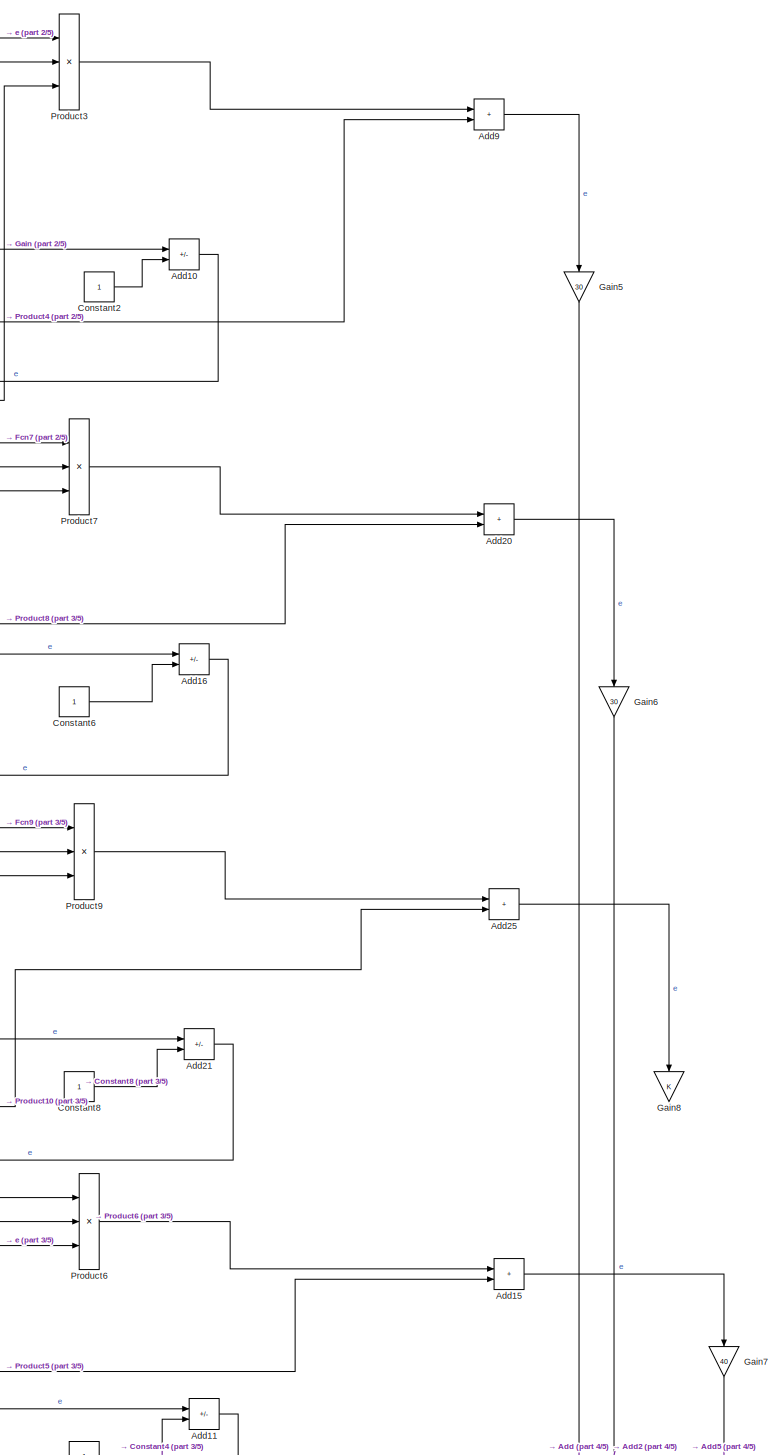
[diagram: controller/Attitude controller/observer_pitch_3 - part 1/5, top right region]
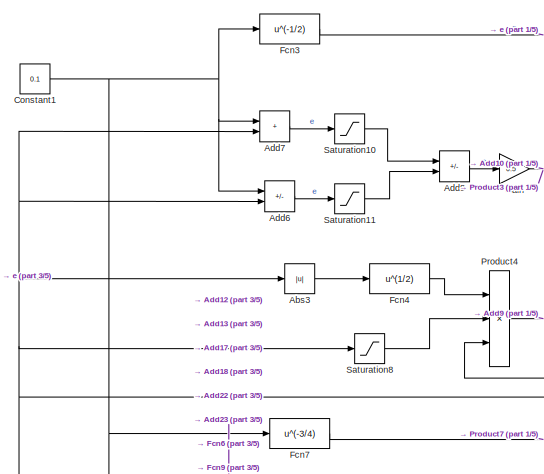
[diagram: controller/Attitude controller/observer_pitch_3 - part 2/5, top center region]
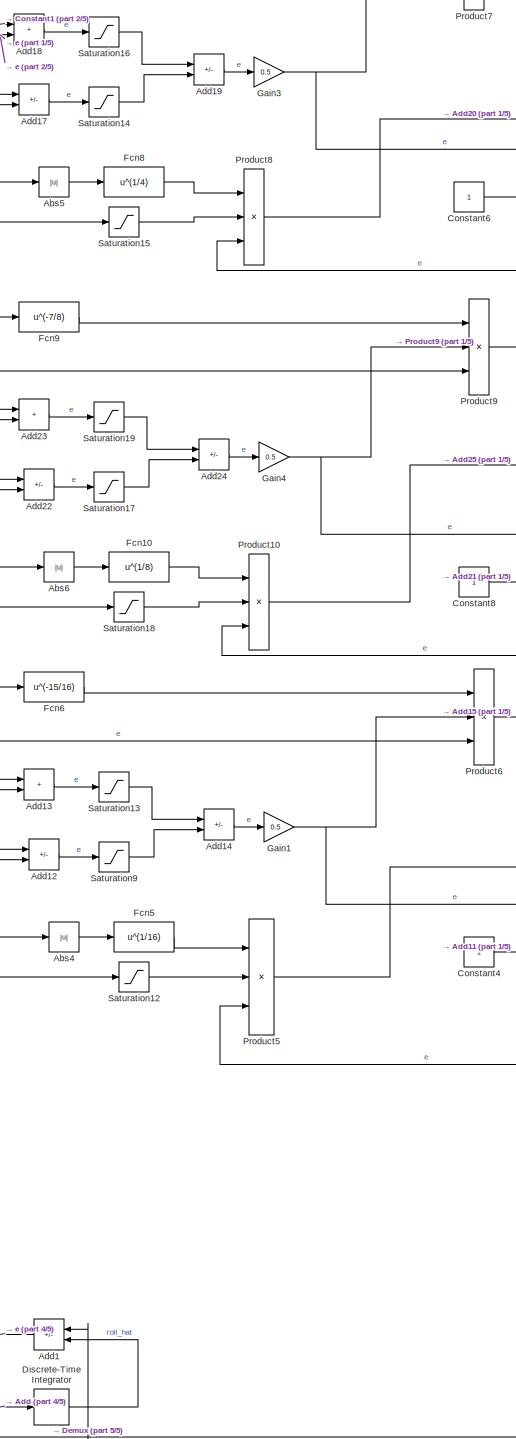
[diagram: controller/Attitude controller/observer_pitch_3 - part 3/5, middle right region]
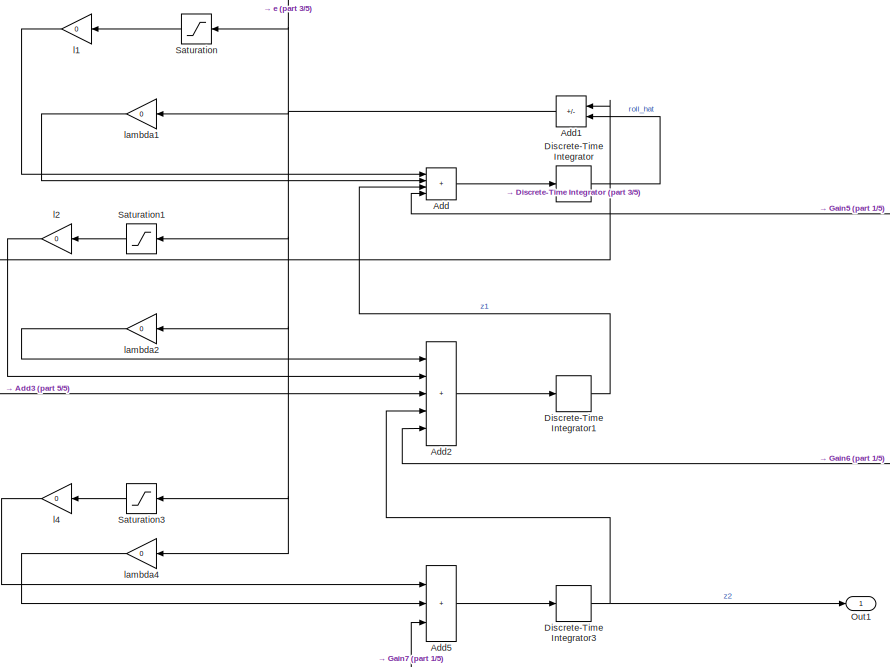
[diagram: controller/Attitude controller/observer_pitch_3 - part 4/5, bottom center region]
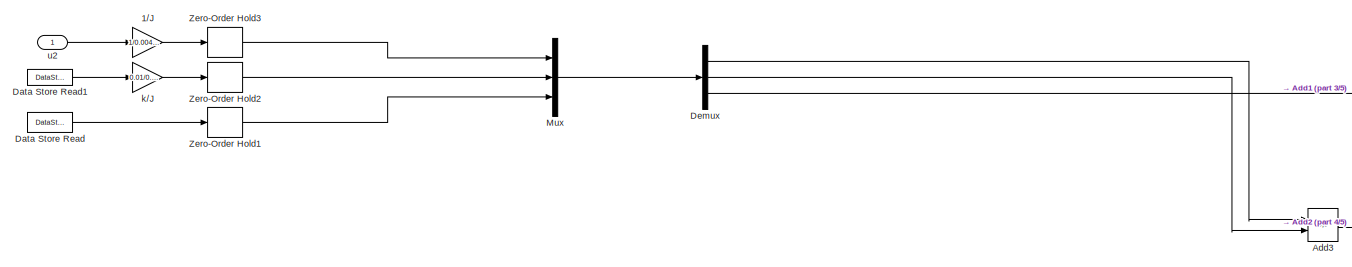
[diagram: controller/Attitude controller/observer_pitch_3 - part 5/5, bottom left region]
BLOCK [SubSystem] controller/Attitude controller/observer_pitch_3
  Commented = on
  Ports = [1, 1]
  RequestExecContextInheritance = off
BLOCK [Gain] controller/Attitude controller/observer_pitch_3/1//J
  Gain = 1/0.00478
BLOCK [Abs] controller/Attitude controller/observer_pitch_3/Abs3
  SaturateOnIntegerOverflow = off
BLOCK [Abs] controller/Attitude controller/observer_pitch_3/Abs4
  SaturateOnIntegerOverflow = off
BLOCK [Abs] controller/Attitude controller/observer_pitch_3/Abs5
  SaturateOnIntegerOverflow = off
BLOCK [Abs] controller/Attitude controller/observer_pitch_3/Abs6
  SaturateOnIntegerOverflow = off
BLOCK [Sum] controller/Attitude controller/observer_pitch_3/Add
  IconShape = rectangular
  Inputs = ++++
  Ports = [4, 1]
BLOCK [Sum] controller/Attitude controller/observer_pitch_3/Add1
  IconShape = rectangular
  Inputs = +-
  NameLocation = top
  Ports = [2, 1]
BLOCK [Sum] controller/Attitude controller/observer_pitch_3/Add10
  IconShape = rectangular
  Inputs = -+
  Ports = [2, 1]
BLOCK [Sum] controller/Attitude controller/observer_pitch_3/Add11
  IconShape = rectangular
  Inputs = -+
  Ports = [2, 1]
BLOCK [Sum] controller/Attitude controller/observer_pitch_3/Add12
  IconShape = rectangular
  Inputs = -+
  Ports = [2, 1]
BLOCK [Sum] controller/Attitude controller/observer_pitch_3/Add13
  IconShape = rectangular
  Ports = [2, 1]
BLOCK [Sum] controller/Attitude controller/observer_pitch_3/Add14
  IconShape = rectangular
  Inputs = +-
  Ports = [2, 1]
BLOCK [Sum] controller/Attitude controller/observer_pitch_3/Add15
  IconShape = rectangular
  Ports = [2, 1]
BLOCK [Sum] controller/Attitude controller/observer_pitch_3/Add16
  IconShape = rectangular
  Inputs = -+
  Ports = [2, 1]
BLOCK [Sum] controller/Attitude controller/observer_pitch_3/Add17
  IconShape = rectangular
  Inputs = -+
  Ports = [2, 1]
BLOCK [Sum] controller/Attitude controller/observer_pitch_3/Add18
  IconShape = rectangular
  Ports = [2, 1]
BLOCK [Sum] controller/Attitude controller/observer_pitch_3/Add19
  IconShape = rectangular
  Inputs = +-
  Ports = [2, 1]
BLOCK [Sum] controller/Attitude controller/observer_pitch_3/Add2
  IconShape = rectangular
  Inputs = +++++
  Ports = [5, 1]
BLOCK [Sum] controller/Attitude controller/observer_pitch_3/Add20
  IconShape = rectangular
  Ports = [2, 1]
BLOCK [Sum] controller/Attitude controller/observer_pitch_3/Add21
  IconShape = rectangular
  Inputs = -+
  Ports = [2, 1]
BLOCK [Sum] controller/Attitude controller/observer_pitch_3/Add22
  IconShape = rectangular
  Inputs = -+
  Ports = [2, 1]
BLOCK [Sum] controller/Attitude controller/observer_pitch_3/Add23
  IconShape = rectangular
  Ports = [2, 1]
BLOCK [Sum] controller/Attitude controller/observer_pitch_3/Add24
  IconShape = rectangular
  Inputs = +-
  Ports = [2, 1]
BLOCK [Sum] controller/Attitude controller/observer_pitch_3/Add25
  IconShape = rectangular
  Ports = [2, 1]
BLOCK [Sum] controller/Attitude controller/observer_pitch_3/Add3
  IconShape = rectangular
  Inputs = +-
  Ports = [2, 1]
BLOCK [Sum] controller/Attitude controller/observer_pitch_3/Add5
  IconShape = rectangular
  Inputs = +++
  Ports = [3, 1]
BLOCK [Sum] controller/Attitude controller/observer_pitch_3/Add6
  IconShape = rectangular
  Inputs = -+
  Ports = [2, 1]
BLOCK [Sum] controller/Attitude controller/observer_pitch_3/Add7
  IconShape = rectangular
  Ports = [2, 1]
BLOCK [Sum] controller/Attitude controller/observer_pitch_3/Add8
  IconShape = rectangular
  Inputs = +-
  Ports = [2, 1]
BLOCK [Sum] controller/Attitude controller/observer_pitch_3/Add9
  IconShape = rectangular
  Ports = [2, 1]
BLOCK [Constant] controller/Attitude controller/observer_pitch_3/Constant1
  Value = 0.1
BLOCK [Constant] controller/Attitude controller/observer_pitch_3/Constant2
BLOCK [Constant] controller/Attitude controller/observer_pitch_3/Constant4
BLOCK [Constant] controller/Attitude controller/observer_pitch_3/Constant6
BLOCK [Constant] controller/Attitude controller/observer_pitch_3/Constant8
BLOCK [DataStoreRead] controller/Attitude controller/observer_pitch_3/Data Store Read
  DataStoreName = pitch
  IndexOptions = Index vector (dialog)
  Indices = 1
  OutputSizes = 1
  Ports = [0, 1]
BLOCK [DataStoreRead] controller/Attitude controller/observer_pitch_3/Data Store Read1
  DataStoreName = pitch_speed
  IndexOptions = Index vector (dialog)
  Indices = 1
  OutputSizes = 1
  Ports = [0, 1]
BLOCK [Demux] controller/Attitude controller/observer_pitch_3/Demux
  Outputs = 3
  Ports = [1, 3]
BLOCK [DiscreteIntegrator] controller/Attitude controller/observer_pitch_3/Discrete-Time Integrator
  ICPrevOutput = DiscIntNeverNeededParam
  ICPrevScaledInput = DiscIntNeverNeededParam
  InitialConditionSetting = Auto
  Ports = [1, 1]
  SampleTime = -1
BLOCK [DiscreteIntegrator] controller/Attitude controller/observer_pitch_3/Discrete-Time Integrator1
  ICPrevOutput = DiscIntNeverNeededParam
  ICPrevScaledInput = DiscIntNeverNeededParam
  InitialConditionSetting = Auto
  Ports = [1, 1]
  SampleTime = -1
BLOCK [DiscreteIntegrator] controller/Attitude controller/observer_pitch_3/Discrete-Time Integrator3
  ICPrevOutput = DiscIntNeverNeededParam
  ICPrevScaledInput = DiscIntNeverNeededParam
  InitialConditionSetting = Auto
  Ports = [1, 1]
  SampleTime = -1
BLOCK [Fcn] controller/Attitude controller/observer_pitch_3/Fcn10
  Expr = u^(1/8)
BLOCK [Fcn] controller/Attitude controller/observer_pitch_3/Fcn3
  Expr = u^(-1/2)
BLOCK [Fcn] controller/Attitude controller/observer_pitch_3/Fcn4
  Expr = u^(1/2)
BLOCK [Fcn] controller/Attitude controller/observer_pitch_3/Fcn5
  Expr = u^(1/16)
BLOCK [Fcn] controller/Attitude controller/observer_pitch_3/Fcn6
  Expr = u^(-15/16)
BLOCK [Fcn] controller/Attitude controller/observer_pitch_3/Fcn7
  Expr = u^(-3/4)
BLOCK [Fcn] controller/Attitude controller/observer_pitch_3/Fcn8
  Expr = u^(1/4)
BLOCK [Fcn] controller/Attitude controller/observer_pitch_3/Fcn9
  Expr = u^(-7/8)
BLOCK [Gain] controller/Attitude controller/observer_pitch_3/Gain
  Gain = 0.5
BLOCK [Gain] controller/Attitude controller/observer_pitch_3/Gain1
  Gain = 0.5
BLOCK [Gain] controller/Attitude controller/observer_pitch_3/Gain3
  Gain = 0.5
BLOCK [Gain] controller/Attitude controller/observer_pitch_3/Gain4
  Gain = 0.5
BLOCK [Gain] controller/Attitude controller/observer_pitch_3/Gain5
  Gain = 30
  NameLocation = left
BLOCK [Gain] controller/Attitude controller/observer_pitch_3/Gain6
  Gain = 30
  NameLocation = left
BLOCK [Gain] controller/Attitude controller/observer_pitch_3/Gain7
  Gain = 40
  NameLocation = left
BLOCK [Gain] controller/Attitude controller/observer_pitch_3/Gain8
  NameLocation = left
BLOCK [Mux] controller/Attitude controller/observer_pitch_3/Mux
  DisplayOption = bar
  Inputs = 3
  Ports = [3, 1]
BLOCK [Outport] controller/Attitude controller/observer_pitch_3/Out1
BLOCK [Product] controller/Attitude controller/observer_pitch_3/Product10
  Inputs = 3
  Ports = [3, 1]
BLOCK [Product] controller/Attitude controller/observer_pitch_3/Product3
  Inputs = 3
  Ports = [3, 1]
BLOCK [Product] controller/Attitude controller/observer_pitch_3/Product4
  Inputs = 3
  Ports = [3, 1]
BLOCK [Product] controller/Attitude controller/observer_pitch_3/Product5
  Inputs = 3
  Ports = [3, 1]
BLOCK [Product] controller/Attitude controller/observer_pitch_3/Product6
  Inputs = 3
  Ports = [3, 1]
BLOCK [Product] controller/Attitude controller/observer_pitch_3/Product7
  Inputs = 3
  Ports = [3, 1]
BLOCK [Product] controller/Attitude controller/observer_pitch_3/Product8
  Inputs = 3
  Ports = [3, 1]
BLOCK [Product] controller/Attitude controller/observer_pitch_3/Product9
  Inputs = 3
  Ports = [3, 1]
BLOCK [Saturate] controller/Attitude controller/observer_pitch_3/Saturation
  LowerLimit = -1
  NameLocation = top
  UpperLimit = 1
BLOCK [Saturate] controller/Attitude controller/observer_pitch_3/Saturation1
  LowerLimit = -1
  NameLocation = top
  UpperLimit = 1
BLOCK [Saturate] controller/Attitude controller/observer_pitch_3/Saturation10
  LowerLimit = -1
  UpperLimit = 1
BLOCK [Saturate] controller/Attitude controller/observer_pitch_3/Saturation11
  LowerLimit = -1
  UpperLimit = 1
BLOCK [Saturate] controller/Attitude controller/observer_pitch_3/Saturation12
  LowerLimit = -1
  UpperLimit = 1
BLOCK [Saturate] controller/Attitude controller/observer_pitch_3/Saturation13
  LowerLimit = -1
  UpperLimit = 1
BLOCK [Saturate] controller/Attitude controller/observer_pitch_3/Saturation14
  LowerLimit = -1
  UpperLimit = 1
BLOCK [Saturate] controller/Attitude controller/observer_pitch_3/Saturation15
  LowerLimit = -1
  UpperLimit = 1
BLOCK [Saturate] controller/Attitude controller/observer_pitch_3/Saturation16
  LowerLimit = -1
  UpperLimit = 1
BLOCK [Saturate] controller/Attitude controller/observer_pitch_3/Saturation17
  LowerLimit = -1
  UpperLimit = 1
BLOCK [Saturate] controller/Attitude controller/observer_pitch_3/Saturation18
  LowerLimit = -1
  UpperLimit = 1
BLOCK [Saturate] controller/Attitude controller/observer_pitch_3/Saturation19
  LowerLimit = -1
  UpperLimit = 1
BLOCK [Saturate] controller/Attitude controller/observer_pitch_3/Saturation3
  LowerLimit = -1
  NameLocation = top
  UpperLimit = 1
BLOCK [Saturate] controller/Attitude controller/observer_pitch_3/Saturation8
  LowerLimit = -1
  UpperLimit = 1
BLOCK [Saturate] controller/Attitude controller/observer_pitch_3/Saturation9
  LowerLimit = -1
  UpperLimit = 1
BLOCK [ZeroOrderHold] controller/Attitude controller/observer_pitch_3/Zero-Order Hold1
  SampleTime = -1
BLOCK [ZeroOrderHold] controller/Attitude controller/observer_pitch_3/Zero-Order Hold2
  SampleTime = -1
BLOCK [ZeroOrderHold] controller/Attitude controller/observer_pitch_3/Zero-Order Hold3
  NameLocation = left
  SampleTime = -1
BLOCK [Gain] controller/Attitude controller/observer_pitch_3/k//J
  Gain = 0.01/0.00478
BLOCK [Gain] controller/Attitude controller/observer_pitch_3/l1
  Gain = 0
  NameLocation = top
BLOCK [Gain] controller/Attitude controller/observer_pitch_3/l2
  Gain = 0
  NameLocation = top
BLOCK [Gain] controller/Attitude controller/observer_pitch_3/l4
  Gain = 0
  NameLocation = top
BLOCK [Gain] controller/Attitude controller/observer_pitch_3/lambda1
  Gain = 0
  NameLocation = top
BLOCK [Gain] controller/Attitude controller/observer_pitch_3/lambda2
  Gain = 0
  NameLocation = top
BLOCK [Gain] controller/Attitude controller/observer_pitch_3/lambda4
  Gain = 0
  NameLocation = top
BLOCK [Inport] controller/Attitude controller/observer_pitch_3/u2
BLOCK [SubSystem] controller/Attitude controller/observer_roll_3
  Commented = on
  Ports = [1, 1]
  RequestExecContextInheritance = off
BLOCK [Gain] controller/Attitude controller/observer_roll_3/1//J
  Gain = 1/0.00478
BLOCK [Abs] controller/Attitude controller/observer_roll_3/Abs3
  SaturateOnIntegerOverflow = off
BLOCK [Abs] controller/Attitude controller/observer_roll_3/Abs4
  SaturateOnIntegerOverflow = off
BLOCK [Abs] controller/Attitude controller/observer_roll_3/Abs5
  SaturateOnIntegerOverflow = off
BLOCK [Abs] controller/Attitude controller/observer_roll_3/Abs6
  SaturateOnIntegerOverflow = off
BLOCK [Sum] controller/Attitude controller/observer_roll_3/Add
  IconShape = rectangular
  Inputs = ++++
  Ports = [4, 1]
BLOCK [Sum] controller/Attitude controller/observer_roll_3/Add1
  IconShape = rectangular
  Inputs = +-
  NameLocation = top
  Ports = [2, 1]
BLOCK [Sum] controller/Attitude controller/observer_roll_3/Add10
  IconShape = rectangular
  Inputs = -+
  Ports = [2, 1]
BLOCK [Sum] controller/Attitude controller/observer_roll_3/Add11
  IconShape = rectangular
  Inputs = -+
  Ports = [2, 1]
BLOCK [Sum] controller/Attitude controller/observer_roll_3/Add12
  IconShape = rectangular
  Inputs = -+
  Ports = [2, 1]
BLOCK [Sum] controller/Attitude controller/observer_roll_3/Add13
  IconShape = rectangular
  Ports = [2, 1]
BLOCK [Sum] controller/Attitude controller/observer_roll_3/Add14
  IconShape = rectangular
  Inputs = +-
  Ports = [2, 1]
BLOCK [Sum] controller/Attitude controller/observer_roll_3/Add15
  IconShape = rectangular
  Ports = [2, 1]
BLOCK [Sum] controller/Attitude controller/observer_roll_3/Add16
  IconShape = rectangular
  Inputs = -+
  Ports = [2, 1]
BLOCK [Sum] controller/Attitude controller/observer_roll_3/Add17
  IconShape = rectangular
  Inputs = -+
  Ports = [2, 1]
BLOCK [Sum] controller/Attitude controller/observer_roll_3/Add18
  IconShape = rectangular
  Ports = [2, 1]
BLOCK [Sum] controller/Attitude controller/observer_roll_3/Add19
  IconShape = rectangular
  Inputs = +-
  Ports = [2, 1]
BLOCK [Sum] controller/Attitude controller/observer_roll_3/Add2
  IconShape = rectangular
  Inputs = +++++
  Ports = [5, 1]
BLOCK [Sum] controller/Attitude controller/observer_roll_3/Add20
  IconShape = rectangular
  Ports = [2, 1]
BLOCK [Sum] controller/Attitude controller/observer_roll_3/Add21
  IconShape = rectangular
  Inputs = -+
  Ports = [2, 1]
BLOCK [Sum] controller/Attitude controller/observer_roll_3/Add22
  IconShape = rectangular
  Inputs = -+
  Ports = [2, 1]
BLOCK [Sum] controller/Attitude controller/observer_roll_3/Add23
  IconShape = rectangular
  Ports = [2, 1]
BLOCK [Sum] controller/Attitude controller/observer_roll_3/Add24
  IconShape = rectangular
  Inputs = +-
  Ports = [2, 1]
BLOCK [Sum] controller/Attitude controller/observer_roll_3/Add25
  IconShape = rectangular
  Ports = [2, 1]
BLOCK [Sum] controller/Attitude controller/observer_roll_3/Add3
  IconShape = rectangular
  Inputs = +-
  Ports = [2, 1]
BLOCK [Sum] controller/Attitude controller/observer_roll_3/Add5
  IconShape = rectangular
  Inputs = +++
  Ports = [3, 1]
BLOCK [Sum] controller/Attitude controller/observer_roll_3/Add6
  IconShape = rectangular
  Inputs = -+
  Ports = [2, 1]
BLOCK [Sum] controller/Attitude controller/observer_roll_3/Add7
  IconShape = rectangular
  Ports = [2, 1]
BLOCK [Sum] controller/Attitude controller/observer_roll_3/Add8
  IconShape = rectangular
  Inputs = +-
  Ports = [2, 1]
BLOCK [Sum] controller/Attitude controller/observer_roll_3/Add9
  IconShape = rectangular
  Ports = [2, 1]
BLOCK [Constant] controller/Attitude controller/observer_roll_3/Constant1
  Value = 0.1
BLOCK [Constant] controller/Attitude controller/observer_roll_3/Constant2
BLOCK [Constant] controller/Attitude controller/observer_roll_3/Constant4
BLOCK [Constant] controller/Attitude controller/observer_roll_3/Constant6
BLOCK [Constant] controller/Attitude controller/observer_roll_3/Constant8
BLOCK [DataStoreRead] controller/Attitude controller/observer_roll_3/Data Store Read
  DataStoreName = roll
  IndexOptions = Index vector (dialog)
  Indices = 1
  OutputSizes = 1
  Ports = [0, 1]
BLOCK [DataStoreRead] controller/Attitude controller/observer_roll_3/Data Store Read1
  DataStoreName = roll_speed
  IndexOptions = Index vector (dialog)
  Indices = 1
  OutputSizes = 1
  Ports = [0, 1]
BLOCK [Demux] controller/Attitude controller/observer_roll_3/Demux
  Outputs = 3
  Ports = [1, 3]
BLOCK [DiscreteIntegrator] controller/Attitude controller/observer_roll_3/Discrete-Time Integrator
  ICPrevOutput = DiscIntNeverNeededParam
  ICPrevScaledInput = DiscIntNeverNeededParam
  InitialConditionSetting = Auto
  Ports = [1, 1]
  SampleTime = -1
BLOCK [DiscreteIntegrator] controller/Attitude controller/observer_roll_3/Discrete-Time Integrator1
  ICPrevOutput = DiscIntNeverNeededParam
  ICPrevScaledInput = DiscIntNeverNeededParam
  InitialConditionSetting = Auto
  Ports = [1, 1]
  SampleTime = -1
BLOCK [DiscreteIntegrator] controller/Attitude controller/observer_roll_3/Discrete-Time Integrator3
  ICPrevOutput = DiscIntNeverNeededParam
  ICPrevScaledInput = DiscIntNeverNeededParam
  InitialConditionSetting = Auto
  Ports = [1, 1]
  SampleTime = -1
BLOCK [Fcn] controller/Attitude controller/observer_roll_3/Fcn10
  Expr = u^(1/8)
BLOCK [Fcn] controller/Attitude controller/observer_roll_3/Fcn3
  Expr = u^(-1/2)
BLOCK [Fcn] controller/Attitude controller/observer_roll_3/Fcn4
  Expr = u^(1/2)
BLOCK [Fcn] controller/Attitude controller/observer_roll_3/Fcn5
  Expr = u^(1/16)
BLOCK [Fcn] controller/Attitude controller/observer_roll_3/Fcn6
  Expr = u^(-15/16)
BLOCK [Fcn] controller/Attitude controller/observer_roll_3/Fcn7
  Expr = u^(-3/4)
BLOCK [Fcn] controller/Attitude controller/observer_roll_3/Fcn8
  Expr = u^(1/4)
BLOCK [Fcn] controller/Attitude controller/observer_roll_3/Fcn9
  Expr = u^(-7/8)
BLOCK [Gain] controller/Attitude controller/observer_roll_3/Gain
  Gain = 0.5
BLOCK [Gain] controller/Attitude controller/observer_roll_3/Gain1
  Gain = 0.5
BLOCK [Gain] controller/Attitude controller/observer_roll_3/Gain3
  Gain = 0.5
BLOCK [Gain] controller/Attitude controller/observer_roll_3/Gain4
  Gain = 0.5
BLOCK [Gain] controller/Attitude controller/observer_roll_3/Gain5
  Gain = 30
  NameLocation = left
BLOCK [Gain] controller/Attitude controller/observer_roll_3/Gain6
  Gain = 30
  NameLocation = left
BLOCK [Gain] controller/Attitude controller/observer_roll_3/Gain7
  Gain = 40
  NameLocation = left
BLOCK [Gain] controller/Attitude controller/observer_roll_3/Gain8
  NameLocation = left
BLOCK [Mux] controller/Attitude controller/observer_roll_3/Mux
  DisplayOption = bar
  Inputs = 3
  Ports = [3, 1]
BLOCK [Outport] controller/Attitude controller/observer_roll_3/Out1
BLOCK [Product] controller/Attitude controller/observer_roll_3/Product10
  Inputs = 3
  Ports = [3, 1]
BLOCK [Product] controller/Attitude controller/observer_roll_3/Product3
  Inputs = 3
  Ports = [3, 1]
BLOCK [Product] controller/Attitude controller/observer_roll_3/Product4
  Inputs = 3
  Ports = [3, 1]
BLOCK [Product] controller/Attitude controller/observer_roll_3/Product5
  Inputs = 3
  Ports = [3, 1]
BLOCK [Product] controller/Attitude controller/observer_roll_3/Product6
  Inputs = 3
  Ports = [3, 1]
BLOCK [Product] controller/Attitude controller/observer_roll_3/Product7
  Inputs = 3
  Ports = [3, 1]
BLOCK [Product] controller/Attitude controller/observer_roll_3/Product8
  Inputs = 3
  Ports = [3, 1]
BLOCK [Product] controller/Attitude controller/observer_roll_3/Product9
  Inputs = 3
  Ports = [3, 1]
BLOCK [Saturate] controller/Attitude controller/observer_roll_3/Saturation
  LowerLimit = -1
  NameLocation = top
  UpperLimit = 1
BLOCK [Saturate] controller/Attitude controller/observer_roll_3/Saturation1
  LowerLimit = -1
  NameLocation = top
  UpperLimit = 1
BLOCK [Saturate] controller/Attitude controller/observer_roll_3/Saturation10
  LowerLimit = -1
  UpperLimit = 1
BLOCK [Saturate] controller/Attitude controller/observer_roll_3/Saturation11
  LowerLimit = -1
  UpperLimit = 1
BLOCK [Saturate] controller/Attitude controller/observer_roll_3/Saturation12
  LowerLimit = -1
  UpperLimit = 1
BLOCK [Saturate] controller/Attitude controller/observer_roll_3/Saturation13
  LowerLimit = -1
  UpperLimit = 1
BLOCK [Saturate] controller/Attitude controller/observer_roll_3/Saturation14
  LowerLimit = -1
  UpperLimit = 1
BLOCK [Saturate] controller/Attitude controller/observer_roll_3/Saturation15
  LowerLimit = -1
  UpperLimit = 1
BLOCK [Saturate] controller/Attitude controller/observer_roll_3/Saturation16
  LowerLimit = -1
  UpperLimit = 1
BLOCK [Saturate] controller/Attitude controller/observer_roll_3/Saturation17
  LowerLimit = -1
  UpperLimit = 1
BLOCK [Saturate] controller/Attitude controller/observer_roll_3/Saturation18
  LowerLimit = -1
  UpperLimit = 1
BLOCK [Saturate] controller/Attitude controller/observer_roll_3/Saturation19
  LowerLimit = -1
  UpperLimit = 1
BLOCK [Saturate] controller/Attitude controller/observer_roll_3/Saturation3
  LowerLimit = -1
  NameLocation = top
  UpperLimit = 1
BLOCK [Saturate] controller/Attitude controller/observer_roll_3/Saturation8
  LowerLimit = -1
  UpperLimit = 1
BLOCK [Saturate] controller/Attitude controller/observer_roll_3/Saturation9
  LowerLimit = -1
  UpperLimit = 1
BLOCK [ZeroOrderHold] controller/Attitude controller/observer_roll_3/Zero-Order Hold1
  SampleTime = -1
BLOCK [ZeroOrderHold] controller/Attitude controller/observer_roll_3/Zero-Order Hold2
  SampleTime = -1
BLOCK [ZeroOrderHold] controller/Attitude controller/observer_roll_3/Zero-Order Hold3
  NameLocation = left
  SampleTime = -1
BLOCK [Gain] controller/Attitude controller/observer_roll_3/k//J
  Gain = 0.01/0.00478
BLOCK [Gain] controller/Attitude controller/observer_roll_3/l1
  Gain = 0
  NameLocation = top
BLOCK [Gain] controller/Attitude controller/observer_roll_3/l2
  Gain = 0
  NameLocation = top
BLOCK [Gain] controller/Attitude controller/observer_roll_3/l4
  Gain = 0
  NameLocation = top
BLOCK [Gain] controller/Attitude controller/observer_roll_3/lambda1
  Gain = 0
  NameLocation = top
BLOCK [Gain] controller/Attitude controller/observer_roll_3/lambda2
  Gain = 0
  NameLocation = top
BLOCK [Gain] controller/Attitude controller/observer_roll_3/lambda4
  Gain = 0
  NameLocation = top
BLOCK [Inport] controller/Attitude controller/observer_roll_3/u2
BLOCK [SubSystem] controller/Attitude controller/observer_yaw
  Commented = on
  Ports = [1, 1]
  RequestExecContextInheritance = off
BLOCK [Gain] controller/Attitude controller/observer_yaw/1//J
  Gain = 1/0.008
BLOCK [Abs] controller/Attitude controller/observer_yaw/Abs3
  SaturateOnIntegerOverflow = off
BLOCK [Abs] controller/Attitude controller/observer_yaw/Abs4
  SaturateOnIntegerOverflow = off
BLOCK [Abs] controller/Attitude controller/observer_yaw/Abs5
  SaturateOnIntegerOverflow = off
BLOCK [Abs] controller/Attitude controller/observer_yaw/Abs6
  SaturateOnIntegerOverflow = off
BLOCK [Sum] controller/Attitude controller/observer_yaw/Add
  IconShape = rectangular
  Inputs = ++++
  Ports = [4, 1]
BLOCK [Sum] controller/Attitude controller/observer_yaw/Add1
  IconShape = rectangular
  Inputs = +-
  NameLocation = top
  Ports = [2, 1]
BLOCK [Sum] controller/Attitude controller/observer_yaw/Add10
  IconShape = rectangular
  Inputs = -+
  Ports = [2, 1]
BLOCK [Sum] controller/Attitude controller/observer_yaw/Add11
  IconShape = rectangular
  Inputs = -+
  Ports = [2, 1]
BLOCK [Sum] controller/Attitude controller/observer_yaw/Add12
  IconShape = rectangular
  Inputs = -+
  Ports = [2, 1]
BLOCK [Sum] controller/Attitude controller/observer_yaw/Add13
  IconShape = rectangular
  Ports = [2, 1]
BLOCK [Sum] controller/Attitude controller/observer_yaw/Add14
  IconShape = rectangular
  Inputs = +-
  Ports = [2, 1]
BLOCK [Sum] controller/Attitude controller/observer_yaw/Add15
  IconShape = rectangular
  Ports = [2, 1]
BLOCK [Sum] controller/Attitude controller/observer_yaw/Add16
  IconShape = rectangular
  Inputs = -+
  Ports = [2, 1]
BLOCK [Sum] controller/Attitude controller/observer_yaw/Add17
  IconShape = rectangular
  Inputs = -+
  Ports = [2, 1]
BLOCK [Sum] controller/Attitude controller/observer_yaw/Add18
  IconShape = rectangular
  Ports = [2, 1]
BLOCK [Sum] controller/Attitude controller/observer_yaw/Add19
  IconShape = rectangular
  Inputs = +-
  Ports = [2, 1]
BLOCK [Sum] controller/Attitude controller/observer_yaw/Add2
  IconShape = rectangular
  Inputs = +++++
  Ports = [5, 1]
BLOCK [Sum] controller/Attitude controller/observer_yaw/Add20
  IconShape = rectangular
  Ports = [2, 1]
BLOCK [Sum] controller/Attitude controller/observer_yaw/Add21
  IconShape = rectangular
  Inputs = -+
  Ports = [2, 1]
BLOCK [Sum] controller/Attitude controller/observer_yaw/Add22
  IconShape = rectangular
  Inputs = -+
  Ports = [2, 1]
BLOCK [Sum] controller/Attitude controller/observer_yaw/Add23
  IconShape = rectangular
  Ports = [2, 1]
BLOCK [Sum] controller/Attitude controller/observer_yaw/Add24
  IconShape = rectangular
  Inputs = +-
  Ports = [2, 1]
BLOCK [Sum] controller/Attitude controller/observer_yaw/Add25
  IconShape = rectangular
  Ports = [2, 1]
BLOCK [Sum] controller/Attitude controller/observer_yaw/Add3
  IconShape = rectangular
  Inputs = +-
  Ports = [2, 1]
BLOCK [Sum] controller/Attitude controller/observer_yaw/Add5
  IconShape = rectangular
  Inputs = +++
  Ports = [3, 1]
BLOCK [Sum] controller/Attitude controller/observer_yaw/Add6
  IconShape = rectangular
  Inputs = -+
  Ports = [2, 1]
BLOCK [Sum] controller/Attitude controller/observer_yaw/Add7
  IconShape = rectangular
  Ports = [2, 1]
BLOCK [Sum] controller/Attitude controller/observer_yaw/Add8
  IconShape = rectangular
  Inputs = +-
  Ports = [2, 1]
BLOCK [Sum] controller/Attitude controller/observer_yaw/Add9
  IconShape = rectangular
  Ports = [2, 1]
BLOCK [Constant] controller/Attitude controller/observer_yaw/Constant1
  Value = 0.1
BLOCK [Constant] controller/Attitude controller/observer_yaw/Constant2
BLOCK [Constant] controller/Attitude controller/observer_yaw/Constant4
BLOCK [Constant] controller/Attitude controller/observer_yaw/Constant6
BLOCK [Constant] controller/Attitude controller/observer_yaw/Constant8
BLOCK [DataStoreRead] controller/Attitude controller/observer_yaw/Data Store Read
  DataStoreName = yaw
  IndexOptions = Index vector (dialog)
  Indices = 1
  OutputSizes = 1
  Ports = [0, 1]
BLOCK [DataStoreRead] controller/Attitude controller/observer_yaw/Data Store Read1
  DataStoreName = yaw_speed
  IndexOptions = Index vector (dialog)
  Indices = 1
  OutputSizes = 1
  Ports = [0, 1]
BLOCK [Demux] controller/Attitude controller/observer_yaw/Demux
  Outputs = 3
  Ports = [1, 3]
BLOCK [DiscreteIntegrator] controller/Attitude controller/observer_yaw/Discrete-Time Integrator
  ICPrevOutput = DiscIntNeverNeededParam
  ICPrevScaledInput = DiscIntNeverNeededParam
  InitialConditionSetting = Auto
  Ports = [1, 1]
  SampleTime = -1
BLOCK [DiscreteIntegrator] controller/Attitude controller/observer_yaw/Discrete-Time Integrator1
  ICPrevOutput = DiscIntNeverNeededParam
  ICPrevScaledInput = DiscIntNeverNeededParam
  InitialConditionSetting = Auto
  Ports = [1, 1]
  SampleTime = -1
BLOCK [DiscreteIntegrator] controller/Attitude controller/observer_yaw/Discrete-Time Integrator3
  ICPrevOutput = DiscIntNeverNeededParam
  ICPrevScaledInput = DiscIntNeverNeededParam
  InitialConditionSetting = Auto
  Ports = [1, 1]
  SampleTime = -1
BLOCK [Fcn] controller/Attitude controller/observer_yaw/Fcn10
  Expr = u^(1/8)
BLOCK [Fcn] controller/Attitude controller/observer_yaw/Fcn3
  Expr = u^(-1/2)
BLOCK [Fcn] controller/Attitude controller/observer_yaw/Fcn4
  Expr = u^(1/2)
BLOCK [Fcn] controller/Attitude controller/observer_yaw/Fcn5
  Expr = u^(1/16)
BLOCK [Fcn] controller/Attitude controller/observer_yaw/Fcn6
  Expr = u^(-15/16)
BLOCK [Fcn] controller/Attitude controller/observer_yaw/Fcn7
  Expr = u^(-3/4)
BLOCK [Fcn] controller/Attitude controller/observer_yaw/Fcn8
  Expr = u^(1/4)
BLOCK [Fcn] controller/Attitude controller/observer_yaw/Fcn9
  Expr = u^(-7/8)
BLOCK [Gain] controller/Attitude controller/observer_yaw/Gain
  Gain = 0.5
BLOCK [Gain] controller/Attitude controller/observer_yaw/Gain1
  Gain = 0.5
BLOCK [Gain] controller/Attitude controller/observer_yaw/Gain3
  Gain = 0.5
BLOCK [Gain] controller/Attitude controller/observer_yaw/Gain4
  Gain = 0.5
BLOCK [Gain] controller/Attitude controller/observer_yaw/Gain5
  Gain = 30
  NameLocation = left
BLOCK [Gain] controller/Attitude controller/observer_yaw/Gain6
  Gain = 30
  NameLocation = left
BLOCK [Gain] controller/Attitude controller/observer_yaw/Gain7
  Gain = 40
  NameLocation = left
BLOCK [Gain] controller/Attitude controller/observer_yaw/Gain8
  NameLocation = left
BLOCK [Mux] controller/Attitude controller/observer_yaw/Mux
  DisplayOption = bar
  Inputs = 3
  Ports = [3, 1]
BLOCK [Outport] controller/Attitude controller/observer_yaw/Out1
BLOCK [Product] controller/Attitude controller/observer_yaw/Product10
  Inputs = 3
  Ports = [3, 1]
BLOCK [Product] controller/Attitude controller/observer_yaw/Product3
  Inputs = 3
  Ports = [3, 1]
BLOCK [Product] controller/Attitude controller/observer_yaw/Product4
  Inputs = 3
  Ports = [3, 1]
BLOCK [Product] controller/Attitude controller/observer_yaw/Product5
  Inputs = 3
  Ports = [3, 1]
BLOCK [Product] controller/Attitude controller/observer_yaw/Product6
  Inputs = 3
  Ports = [3, 1]
BLOCK [Product] controller/Attitude controller/observer_yaw/Product7
  Inputs = 3
  Ports = [3, 1]
BLOCK [Product] controller/Attitude controller/observer_yaw/Product8
  Inputs = 3
  Ports = [3, 1]
BLOCK [Product] controller/Attitude controller/observer_yaw/Product9
  Inputs = 3
  Ports = [3, 1]
BLOCK [Saturate] controller/Attitude controller/observer_yaw/Saturation
  LowerLimit = -1
  NameLocation = top
  UpperLimit = 1
BLOCK [Saturate] controller/Attitude controller/observer_yaw/Saturation1
  LowerLimit = -1
  NameLocation = top
  UpperLimit = 1
BLOCK [Saturate] controller/Attitude controller/observer_yaw/Saturation10
  LowerLimit = -1
  UpperLimit = 1
BLOCK [Saturate] controller/Attitude controller/observer_yaw/Saturation11
  LowerLimit = -1
  UpperLimit = 1
BLOCK [Saturate] controller/Attitude controller/observer_yaw/Saturation12
  LowerLimit = -1
  UpperLimit = 1
BLOCK [Saturate] controller/Attitude controller/observer_yaw/Saturation13
  LowerLimit = -1
  UpperLimit = 1
BLOCK [Saturate] controller/Attitude controller/observer_yaw/Saturation14
  LowerLimit = -1
  UpperLimit = 1
BLOCK [Saturate] controller/Attitude controller/observer_yaw/Saturation15
  LowerLimit = -1
  UpperLimit = 1
BLOCK [Saturate] controller/Attitude controller/observer_yaw/Saturation16
  LowerLimit = -1
  UpperLimit = 1
BLOCK [Saturate] controller/Attitude controller/observer_yaw/Saturation17
  LowerLimit = -1
  UpperLimit = 1
BLOCK [Saturate] controller/Attitude controller/observer_yaw/Saturation18
  LowerLimit = -1
  UpperLimit = 1
BLOCK [Saturate] controller/Attitude controller/observer_yaw/Saturation19
  LowerLimit = -1
  UpperLimit = 1
BLOCK [Saturate] controller/Attitude controller/observer_yaw/Saturation3
  LowerLimit = -1
  NameLocation = top
  UpperLimit = 1
BLOCK [Saturate] controller/Attitude controller/observer_yaw/Saturation8
  LowerLimit = -1
  UpperLimit = 1
BLOCK [Saturate] controller/Attitude controller/observer_yaw/Saturation9
  LowerLimit = -1
  UpperLimit = 1
BLOCK [ZeroOrderHold] controller/Attitude controller/observer_yaw/Zero-Order Hold1
  SampleTime = -1
BLOCK [ZeroOrderHold] controller/Attitude controller/observer_yaw/Zero-Order Hold2
  SampleTime = -1
BLOCK [ZeroOrderHold] controller/Attitude controller/observer_yaw/Zero-Order Hold3
  NameLocation = left
  SampleTime = -1
BLOCK [Gain] controller/Attitude controller/observer_yaw/k//J
  Gain = 0.01/0.008
BLOCK [Gain] controller/Attitude controller/observer_yaw/l1
  Gain = 0
  NameLocation = top
BLOCK [Gain] controller/Attitude controller/observer_yaw/l2
  Gain = 0
  NameLocation = top
BLOCK [Gain] controller/Attitude controller/observer_yaw/l4
  Gain = 0
  NameLocation = top
BLOCK [Gain] controller/Attitude controller/observer_yaw/lambda1
  Gain = 0
  NameLocation = top
BLOCK [Gain] controller/Attitude controller/observer_yaw/lambda2
  Gain = 0
  NameLocation = top
BLOCK [Gain] controller/Attitude controller/observer_yaw/lambda4
  Gain = 0
  NameLocation = top
BLOCK [Inport] controller/Attitude controller/observer_yaw/u2
BLOCK [Outport] controller/Attitude controller/tau_Pitch
  Port = 2
BLOCK [Outport] controller/Attitude controller/tau_Roll
  Port = 3
BLOCK [Outport] controller/Attitude controller/tau_Yaw
BLOCK [Reference] controller/Blank Message  REF=ros2lib/Blank Message  (lib defined in slx_3c1549211f48)
  Ports = [0, 1]
  SourceBlock = ros2lib/Blank Message
  SourceProductBaseCode = RR
  SourceType = ROS2 Blank Message
BLOCK [Reference] controller/Blank Message1  REF=ros2lib/Blank Message  (lib defined in slx_3c1549211f48)
  Ports = [0, 1]
  SourceBlock = ros2lib/Blank Message
  SourceProductBaseCode = RR
  SourceType = ROS2 Blank Message
BLOCK [Reference] controller/Blank Message2  REF=ros2lib/Blank Message  (lib defined in slx_3c1549211f48)
  Commented = on
  Ports = [0, 1]
  SourceBlock = ros2lib/Blank Message
  SourceProductBaseCode = RR
  SourceType = ROS2 Blank Message
BLOCK [Reference] controller/Blank Message3  REF=ros2lib/Blank Message  (lib defined in slx_3c1549211f48)
  Commented = on
  Ports = [0, 1]
  SourceBlock = ros2lib/Blank Message
  SourceProductBaseCode = RR
  SourceType = ROS2 Blank Message
BLOCK [BusAssignment] controller/Bus Assignment
  AssignedSignals = timestamp,actuator
  Ports = [3, 1]
BLOCK [BusAssignment] controller/Bus Assignment1
  AssignedSignals = timestamp,command,param1,target_system
  Commented = on
  Ports = [5, 1]
BLOCK [BusAssignment] controller/Bus Assignment2
  AssignedSignals = timestamp,control
  Ports = [3, 1]
BLOCK [BusAssignment] controller/Bus Assignment3
  AssignedSignals = timestamp,command,param1,param2,target_system
  Commented = on
  Ports = [6, 1]
BLOCK [BusSelector] controller/Bus Selector
  OutputAsBus = on
  OutputSignals = q,x,y,z,vx,vy,vz,rollspeed,pitchspeed,yawspeed
  Ports = [1, 1]
BLOCK [BusSelector] controller/Bus Selector1
  OutputAsBus = on
  OutputSignals = q,x,y,z
  Ports = [1, 1]
BLOCK [BusToVector] controller/Bus to Vector
BLOCK [DataTypeConversion] controller/Cast To Double1
  OutDataTypeStr = double
  RndMeth = Floor
  SaturateOnIntegerOverflow = off
BLOCK [DataTypeConversion] controller/Cast To Double2
  OutDataTypeStr = double
  RndMeth = Floor
  SaturateOnIntegerOverflow = off
BLOCK [Clock] controller/Clock
BLOCK [Constant] controller/Constant
  OutDataTypeStr = double
  Value = 0
BLOCK [Constant] controller/Constant1
  OutDataTypeStr = boolean
  Value = true
BLOCK [Constant] controller/Constant10
  Commented = on
  OutDataTypeStr = uint8
BLOCK [Constant] controller/Constant11
  Commented = on
  OutDataTypeStr = single
  Value = 6
BLOCK [Constant] controller/Constant12
  Value = -10
BLOCK [Constant] controller/Constant2
  Commented = on
  OutDataTypeStr = uint32
  Value = 400
BLOCK [Constant] controller/Constant3
  Commented = on
  OutDataTypeStr = single
BLOCK [Constant] controller/Constant4
  Value = 0
BLOCK [Constant] controller/Constant6
  Value = 0
BLOCK [Constant] controller/Constant7
  Commented = on
  OutDataTypeStr = uint8
BLOCK [Constant] controller/Constant8
  Commented = on
  OutDataTypeStr = uint32
  Value = 176
BLOCK [Constant] controller/Constant9
  Commented = on
  OutDataTypeStr = single
BLOCK [DataStoreMemory] controller/Data Store Memory
  DataStoreName = yaw
  OutDataTypeStr = double
  ShowAdditionalParam = off
  WriteAfterWriteMsg = warning
BLOCK [DataStoreMemory] controller/Data Store Memory1
  DataStoreName = pitch
  OutDataTypeStr = double
  ShowAdditionalParam = off
  WriteAfterWriteMsg = warning
BLOCK [DataStoreMemory] controller/Data Store Memory10
  DataStoreName = vx
  OutDataTypeStr = double
  ShowAdditionalParam = off
  WriteAfterWriteMsg = warning
BLOCK [DataStoreMemory] controller/Data Store Memory11
  DataStoreName = vy
  OutDataTypeStr = double
  ShowAdditionalParam = off
  WriteAfterWriteMsg = warning
BLOCK [DataStoreMemory] controller/Data Store Memory12
  DataStoreName = vz
  OutDataTypeStr = double
  ShowAdditionalParam = off
  WriteAfterWriteMsg = warning
BLOCK [DataStoreMemory] controller/Data Store Memory13
  DataStoreName = q_x
  OutDataTypeStr = double
  ShowAdditionalParam = off
  WriteAfterWriteMsg = warning
BLOCK [DataStoreMemory] controller/Data Store Memory14
  DataStoreName = q_y
  OutDataTypeStr = double
  ShowAdditionalParam = off
  WriteAfterWriteMsg = warning
BLOCK [DataStoreMemory] controller/Data Store Memory15
  DataStoreName = q_z
  OutDataTypeStr = double
  ShowAdditionalParam = off
  WriteAfterWriteMsg = warning
BLOCK [DataStoreMemory] controller/Data Store Memory16
  DataStoreName = roll_desire
  OutDataTypeStr = double
  ShowAdditionalParam = off
  WriteAfterWriteMsg = warning
BLOCK [DataStoreMemory] controller/Data Store Memory17
  DataStoreName = pitch_desire
  OutDataTypeStr = double
  ShowAdditionalParam = off
  WriteAfterWriteMsg = warning
BLOCK [DataStoreMemory] controller/Data Store Memory18
  DataStoreName = roll_speed
  OutDataTypeStr = double
  ShowAdditionalParam = off
  WriteAfterWriteMsg = warning
BLOCK [DataStoreMemory] controller/Data Store Memory19
  DataStoreName = yaw_speed
  OutDataTypeStr = double
  ShowAdditionalParam = off
  WriteAfterWriteMsg = warning
BLOCK [DataStoreMemory] controller/Data Store Memory2
  DataStoreName = roll
  OutDataTypeStr = double
  ShowAdditionalParam = off
  WriteAfterWriteMsg = warning
BLOCK [DataStoreMemory] controller/Data Store Memory20
  DataStoreName = pitch_speed
  OutDataTypeStr = double
  ShowAdditionalParam = off
  WriteAfterWriteMsg = warning
BLOCK [DataStoreMemory] controller/Data Store Memory21
  DataStoreName = yaw_1
  OutDataTypeStr = double
  ShowAdditionalParam = off
  WriteAfterWriteMsg = warning
BLOCK [DataStoreMemory] controller/Data Store Memory22
  DataStoreName = pitch_1
  OutDataTypeStr = double
  ShowAdditionalParam = off
  WriteAfterWriteMsg = warning
BLOCK [DataStoreMemory] controller/Data Store Memory23
  DataStoreName = roll_1
  OutDataTypeStr = double
  ShowAdditionalParam = off
  WriteAfterWriteMsg = warning
BLOCK [DataStoreMemory] controller/Data Store Memory24
  DataStoreName = x_1
  OutDataTypeStr = double
  ShowAdditionalParam = off
  WriteAfterWriteMsg = warning
BLOCK [DataStoreMemory] controller/Data Store Memory25
  DataStoreName = y_1
  OutDataTypeStr = double
  ShowAdditionalParam = off
  WriteAfterWriteMsg = warning
BLOCK [DataStoreMemory] controller/Data Store Memory26
  DataStoreName = z_1
  OutDataTypeStr = double
  ShowAdditionalParam = off
  WriteAfterWriteMsg = warning
BLOCK [DataStoreMemory] controller/Data Store Memory3
  DataStoreName = tau_thrust
  OutDataTypeStr = double
  ShowAdditionalParam = off
  WriteAfterWriteMsg = warning
BLOCK [DataStoreMemory] controller/Data Store Memory4
  DataStoreName = pitch_thrust
  OutDataTypeStr = double
  ShowAdditionalParam = off
  WriteAfterWriteMsg = warning
BLOCK [DataStoreMemory] controller/Data Store Memory5
  DataStoreName = roll_thrust
  OutDataTypeStr = double
  ShowAdditionalParam = off
  WriteAfterWriteMsg = warning
BLOCK [DataStoreMemory] controller/Data Store Memory6
  DataStoreName = yaw_thrust
  OutDataTypeStr = double
  ShowAdditionalParam = off
  WriteAfterWriteMsg = warning
BLOCK [DataStoreMemory] controller/Data Store Memory7
  DataStoreName = x
  OutDataTypeStr = double
  ShowAdditionalParam = off
  WriteAfterWriteMsg = warning
BLOCK [DataStoreMemory] controller/Data Store Memory8
  DataStoreName = y
  OutDataTypeStr = double
  ShowAdditionalParam = off
  WriteAfterWriteMsg = warning
BLOCK [DataStoreMemory] controller/Data Store Memory9
  DataStoreName = z
  OutDataTypeStr = double
  ShowAdditionalParam = off
  WriteAfterWriteMsg = warning
BLOCK [DataStoreRead] controller/Data Store Read
  DataStoreName = yaw
  IndexOptions = Index vector (dialog)
  Indices = 1
  OutputSizes = 1
  Ports = [0, 1]
BLOCK [DataStoreRead] controller/Data Store Read1
  DataStoreName = pitch
  IndexOptions = Index vector (dialog)
  Indices = 1
  OutputSizes = 1
  Ports = [0, 1]
BLOCK [DataStoreRead] controller/Data Store Read10
  DataStoreName = x
  IndexOptions = Index vector (dialog)
  Indices = 1
  OutputSizes = 1
  Ports = [0, 1]
BLOCK [DataStoreRead] controller/Data Store Read13
  DataStoreName = q_x
  IndexOptions = Index vector (dialog)
  Indices = 1
  OutputSizes = 1
  Ports = [0, 1]
BLOCK [DataStoreRead] controller/Data Store Read14
  DataStoreName = q_y
  IndexOptions = Index vector (dialog)
  Indices = 1
  OutputSizes = 1
  Ports = [0, 1]
BLOCK [DataStoreRead] controller/Data Store Read15
  DataStoreName = q_z
  IndexOptions = Index vector (dialog)
  Indices = 1
  OutputSizes = 1
  Ports = [0, 1]
BLOCK [DataStoreRead] controller/Data Store Read16
  DataStoreName = x_1
  IndexOptions = Index vector (dialog)
  Indices = 1
  OutputSizes = 1
  Ports = [0, 1]
BLOCK [DataStoreRead] controller/Data Store Read17
  DataStoreName = y
  IndexOptions = Index vector (dialog)
  Indices = 1
  OutputSizes = 1
  Ports = [0, 1]
BLOCK [DataStoreRead] controller/Data Store Read18
  DataStoreName = pitch_desire
  IndexOptions = Index vector (dialog)
  Indices = 1
  OutputSizes = 1
  Ports = [0, 1]
BLOCK [DataStoreRead] controller/Data Store Read19
  DataStoreName = roll_desire
  IndexOptions = Index vector (dialog)
  Indices = 1
  OutputSizes = 1
  Ports = [0, 1]
BLOCK [DataStoreRead] controller/Data Store Read2
  DataStoreName = roll
  IndexOptions = Index vector (dialog)
  Indices = 1
  OutputSizes = 1
  Ports = [0, 1]
BLOCK [DataStoreRead] controller/Data Store Read20
  DataStoreName = y_1
  IndexOptions = Index vector (dialog)
  Indices = 1
  OutputSizes = 1
  Ports = [0, 1]
BLOCK [DataStoreRead] controller/Data Store Read21
  DataStoreName = z
  IndexOptions = Index vector (dialog)
  Indices = 1
  OutputSizes = 1
  Ports = [0, 1]
BLOCK [DataStoreRead] controller/Data Store Read22
  DataStoreName = z_1
  IndexOptions = Index vector (dialog)
  Indices = 1
  OutputSizes = 1
  Ports = [0, 1]
BLOCK [DataStoreRead] controller/Data Store Read23
  DataStoreName = pitch_1
  IndexOptions = Index vector (dialog)
  Indices = 1
  OutputSizes = 1
  Ports = [0, 1]
BLOCK [DataStoreRead] controller/Data Store Read24
  DataStoreName = roll_1
  IndexOptions = Index vector (dialog)
  Indices = 1
  OutputSizes = 1
  Ports = [0, 1]
BLOCK [DataStoreRead] controller/Data Store Read25
  DataStoreName = yaw_1
  IndexOptions = Index vector (dialog)
  Indices = 1
  OutputSizes = 1
  Ports = [0, 1]
BLOCK [DataStoreRead] controller/Data Store Read3
  DataStoreName = tau_thrust
  IndexOptions = Index vector (dialog)
  Indices = 1
  OutputSizes = 1
  Ports = [0, 1]
BLOCK [DataStoreRead] controller/Data Store Read6
  DataStoreName = pitch_thrust
  IndexOptions = Index vector (dialog)
  Indices = 1
  OutputSizes = 1
  Ports = [0, 1]
BLOCK [DataStoreRead] controller/Data Store Read8
  DataStoreName = roll_thrust
  IndexOptions = Index vector (dialog)
  Indices = 1
  OutputSizes = 1
  Ports = [0, 1]
BLOCK [DataStoreRead] controller/Data Store Read9
  DataStoreName = yaw_thrust
  IndexOptions = Index vector (dialog)
  Indices = 1
  OutputSizes = 1
  Ports = [0, 1]
BLOCK [DataStoreWrite] controller/Data Store Write
  DataStoreName = x
  IndexOptions = Index vector (dialog)
  Indices = 1
  OutputSizes = 1
  Ports = [1]
BLOCK [DataStoreWrite] controller/Data Store Write1
  DataStoreName = y
  IndexOptions = Index vector (dialog)
  Indices = 1
  OutputSizes = 1
  Ports = [1]
BLOCK [DataStoreWrite] controller/Data Store Write10
  DataStoreName = vz
  IndexOptions = Index vector (dialog)
  Indices = 1
  OutputSizes = 1
  Ports = [1]
BLOCK [DataStoreWrite] controller/Data Store Write11
  DataStoreName = yaw_thrust
  IndexOptions = Index vector (dialog)
  Indices = 1
  OutputSizes = 1
  Ports = [1]
BLOCK [DataStoreWrite] controller/Data Store Write12
  DataStoreName = pitch_thrust
  IndexOptions = Index vector (dialog)
  Indices = 1
  OutputSizes = 1
  Ports = [1]
BLOCK [DataStoreWrite] controller/Data Store Write13
  DataStoreName = roll_thrust
  IndexOptions = Index vector (dialog)
  Indices = 1
  OutputSizes = 1
  Ports = [1]
BLOCK [DataStoreWrite] controller/Data Store Write14
  DataStoreName = roll_desire
  IndexOptions = Index vector (dialog)
  Indices = 1
  OutputSizes = 1
  Ports = [1]
BLOCK [DataStoreWrite] controller/Data Store Write15
  DataStoreName = roll_speed
  IndexOptions = Index vector (dialog)
  Indices = 1
  OutputSizes = 1
  Ports = [1]
BLOCK [DataStoreWrite] controller/Data Store Write16
  DataStoreName = q_y
  IndexOptions = Index vector (dialog)
  Indices = 1
  OutputSizes = 1
  Ports = [1]
BLOCK [DataStoreWrite] controller/Data Store Write17
  DataStoreName = q_z
  IndexOptions = Index vector (dialog)
  Indices = 1
  OutputSizes = 1
  Ports = [1]
BLOCK [DataStoreWrite] controller/Data Store Write18
  DataStoreName = pitch_desire
  IndexOptions = Index vector (dialog)
  Indices = 1
  OutputSizes = 1
  Ports = [1]
BLOCK [DataStoreWrite] controller/Data Store Write19
  DataStoreName = pitch_speed
  IndexOptions = Index vector (dialog)
  Indices = 1
  OutputSizes = 1
  Ports = [1]
BLOCK [DataStoreWrite] controller/Data Store Write2
  DataStoreName = yaw
  IndexOptions = Index vector (dialog)
  Indices = 1
  OutputSizes = 1
  Ports = [1]
BLOCK [DataStoreWrite] controller/Data Store Write20
  DataStoreName = yaw_speed
  IndexOptions = Index vector (dialog)
  Indices = 1
  OutputSizes = 1
  Ports = [1]
BLOCK [DataStoreWrite] controller/Data Store Write21
  DataStoreName = tau_thrust
  IndexOptions = Index vector (dialog)
  Indices = 1
  OutputSizes = 1
  Ports = [1]
BLOCK [DataStoreWrite] controller/Data Store Write24
  DataStoreName = e_pitch
  IndexOptions = Index vector (dialog)
  Indices = 1
  OutputSizes = 1
  Ports = [1]
BLOCK [DataStoreWrite] controller/Data Store Write25
  DataStoreName = e_roll
  IndexOptions = Index vector (dialog)
  Indices = 1
  OutputSizes = 1
  Ports = [1]
BLOCK [DataStoreWrite] controller/Data Store Write26
  DataStoreName = e_yaw
  IndexOptions = Index vector (dialog)
  Indices = 1
  OutputSizes = 1
  Ports = [1]
BLOCK [DataStoreWrite] controller/Data Store Write27
  DataStoreName = x_1
  IndexOptions = Index vector (dialog)
  Indices = 1
  OutputSizes = 1
  Ports = [1]
BLOCK [DataStoreWrite] controller/Data Store Write28
  DataStoreName = y_1
  IndexOptions = Index vector (dialog)
  Indices = 1
  OutputSizes = 1
  Ports = [1]
BLOCK [DataStoreWrite] controller/Data Store Write3
  DataStoreName = pitch
  IndexOptions = Index vector (dialog)
  Indices = 1
  OutputSizes = 1
  Ports = [1]
BLOCK [DataStoreWrite] controller/Data Store Write32
  DataStoreName = yaw_1
  IndexOptions = Index vector (dialog)
  Indices = 1
  OutputSizes = 1
  Ports = [1]
BLOCK [DataStoreWrite] controller/Data Store Write34
  DataStoreName = pitch_1
  IndexOptions = Index vector (dialog)
  Indices = 1
  OutputSizes = 1
  Ports = [1]
BLOCK [DataStoreWrite] controller/Data Store Write35
  DataStoreName = z_1
  IndexOptions = Index vector (dialog)
  Indices = 1
  OutputSizes = 1
  Ports = [1]
BLOCK [DataStoreWrite] controller/Data Store Write37
  DataStoreName = roll_1
  IndexOptions = Index vector (dialog)
  Indices = 1
  OutputSizes = 1
  Ports = [1]
BLOCK [DataStoreWrite] controller/Data Store Write4
  DataStoreName = q_x
  IndexOptions = Index vector (dialog)
  Indices = 1
  OutputSizes = 1
  Ports = [1]
BLOCK [DataStoreWrite] controller/Data Store Write5
  DataStoreName = z
  IndexOptions = Index vector (dialog)
  Indices = 1
  OutputSizes = 1
  Ports = [1]
BLOCK [DataStoreWrite] controller/Data Store Write6
  DataStoreName = vx
  IndexOptions = Index vector (dialog)
  Indices = 1
  OutputSizes = 1
  Ports = [1]
BLOCK [DataStoreWrite] controller/Data Store Write7
  DataStoreName = roll
  IndexOptions = Index vector (dialog)
  Indices = 1
  OutputSizes = 1
  Ports = [1]
BLOCK [DataStoreWrite] controller/Data Store Write8
  DataStoreName = vy
  IndexOptions = Index vector (dialog)
  Indices = 1
  OutputSizes = 1
  Ports = [1]
BLOCK [DataTypeConversion] controller/Data Type Conversion
  LockScale = on
  OutDataTypeStr = single
  RndMeth = Floor
  SaturateOnIntegerOverflow = off
BLOCK [DataTypeConversion] controller/Data Type Conversion1
  OutDataTypeStr = double
  RndMeth = Floor
  SaturateOnIntegerOverflow = off
BLOCK [DataTypeConversion] controller/Data Type Conversion2
  OutDataTypeStr = double
  RndMeth = Floor
  SaturateOnIntegerOverflow = off
BLOCK [Demux] controller/Demux
  Outputs = 10
  Ports = [1, 10]
BLOCK [Demux] controller/Demux1
  Ports = [1, 4]
BLOCK [Demux] controller/Demux2
  Outputs = 3
  Ports = [1, 3]
BLOCK [Demux] controller/Demux3
  Outputs = 3
  Ports = [1, 3]
BLOCK [EnablePort] controller/Enable
  Ports = []
BLOCK [From] controller/From
  GotoTag = x_d
  TagVisibility = global
BLOCK [From] controller/From1
  GotoTag = y_d
  TagVisibility = global
BLOCK [From] controller/From2
  GotoTag = E_x
  TagVisibility = global
BLOCK [From] controller/From3
  GotoTag = E_y
  TagVisibility = global
BLOCK [From] controller/From4
  GotoTag = E_z
  TagVisibility = global
BLOCK [Gain] controller/Gain
  Gain = 1/(m*g/0.65)
BLOCK [Goto] controller/Goto
  GotoTag = x_d
  TagVisibility = global
BLOCK [Goto] controller/Goto1
  GotoTag = y_d
  TagVisibility = global
BLOCK [Goto] controller/Goto2
  GotoTag = E_x
  TagVisibility = global
BLOCK [Goto] controller/Goto3
  GotoTag = E_y
  TagVisibility = global
BLOCK [Goto] controller/Goto4
  GotoTag = E_z
  TagVisibility = global
BLOCK [Inport] controller/Inport
BLOCK [InportShadow] controller/Inport2
BLOCK [InportShadow] controller/Inport3
BLOCK [InportShadow] controller/Inport4
BLOCK [SubSystem] controller/MATLAB Function
  ErrorFcn = Stateflow.Translate.translate
  PermitHierarchicalResolution = ExplicitOnly
  Ports = [3, 1]
  RequestExecContextInheritance = off
  SFBlockType = MATLAB Function
  TreatAsAtomicUnit = on
BLOCK [Demux] controller/MATLAB Function/ Demux 
  Outputs = 1
  Ports = [1, 1]
BLOCK [S-Function] controller/MATLAB Function/ SFunction 
  EnableBusSupport = off
  FunctionName = sf_sfun
  PortCounts = [3 2]
  Ports = [3, 2]
  SFcnIsStateOwnerBlock = off
  SFunctionDeploymentMode = off
  Tag = Stateflow S-Function 3
BLOCK [Terminator] controller/MATLAB Function/ Terminator 
BLOCK [Outport] controller/MATLAB Function/e_x
BLOCK [Inport] controller/MATLAB Function/x
  Port = 3
BLOCK [Inport] controller/MATLAB Function/x_1
  Port = 2
BLOCK [Inport] controller/MATLAB Function/x_d
BLOCK [SubSystem] controller/MATLAB Function1
  ErrorFcn = Stateflow.Translate.translate
  PermitHierarchicalResolution = ExplicitOnly
  Ports = [3, 1]
  RequestExecContextInheritance = off
  SFBlockType = MATLAB Function
  TreatAsAtomicUnit = on
BLOCK [Demux] controller/MATLAB Function1/ Demux 
  Outputs = 1
  Ports = [1, 1]
BLOCK [S-Function] controller/MATLAB Function1/ SFunction 
  EnableBusSupport = off
  FunctionName = sf_sfun
  PortCounts = [3 2]
  Ports = [3, 2]
  SFcnIsStateOwnerBlock = off
  SFunctionDeploymentMode = off
  Tag = Stateflow S-Function 4
BLOCK [Terminator] controller/MATLAB Function1/ Terminator 
BLOCK [Outport] controller/MATLAB Function1/e_y
BLOCK [Inport] controller/MATLAB Function1/y
  Port = 3
BLOCK [Inport] controller/MATLAB Function1/y_1
  Port = 2
BLOCK [Inport] controller/MATLAB Function1/y_d
BLOCK [SubSystem] controller/MATLAB Function2
  ErrorFcn = Stateflow.Translate.translate
  PermitHierarchicalResolution = ExplicitOnly
  Ports = [3, 1]
  RequestExecContextInheritance = off
  SFBlockType = MATLAB Function
  TreatAsAtomicUnit = on
BLOCK [Demux] controller/MATLAB Function2/ Demux 
  Outputs = 1
  Ports = [1, 1]
BLOCK [S-Function] controller/MATLAB Function2/ SFunction 
  EnableBusSupport = off
  FunctionName = sf_sfun
  PortCounts = [3 2]
  Ports = [3, 2]
  SFcnIsStateOwnerBlock = off
  SFunctionDeploymentMode = off
  Tag = Stateflow S-Function 5
BLOCK [Terminator] controller/MATLAB Function2/ Terminator 
BLOCK [Outport] controller/MATLAB Function2/e_z
BLOCK [Inport] controller/MATLAB Function2/z
  Port = 3
BLOCK [Inport] controller/MATLAB Function2/z_1
  Port = 2
BLOCK [Inport] controller/MATLAB Function2/z_d
BLOCK [SubSystem] controller/MATLAB Function3
  ErrorFcn = Stateflow.Translate.translate
  PermitHierarchicalResolution = ExplicitOnly
  Ports = [5, 2]
  RequestExecContextInheritance = off
  SFBlockType = MATLAB Function
  TreatAsAtomicUnit = on
BLOCK [Demux] controller/MATLAB Function3/ Demux 
  Outputs = 1
  Ports = [1, 1]
BLOCK [S-Function] controller/MATLAB Function3/ SFunction 
  EnableBusSupport = on
  FunctionName = sf_sfun
  Parameters = g,m
  PortCounts = [5 3]
  Ports = [5, 3]
  SFcnIsStateOwnerBlock = off
  SFunctionDeploymentMode = off
  Tag = Stateflow S-Function 17
BLOCK [Terminator] controller/MATLAB Function3/ Terminator 
BLOCK [Outport] controller/MATLAB Function3/pitch_d
  Port = 2
BLOCK [Inport] controller/MATLAB Function3/qx
BLOCK [Inport] controller/MATLAB Function3/qy
  Port = 2
BLOCK [Inport] controller/MATLAB Function3/qz
  Port = 3
BLOCK [Outport] controller/MATLAB Function3/roll_d
BLOCK [Inport] controller/MATLAB Function3/u
  Port = 5
BLOCK [Inport] controller/MATLAB Function3/yaw_d
  Port = 4
BLOCK [SubSystem] controller/MATLAB Function4
  ErrorFcn = Stateflow.Translate.translate
  PermitHierarchicalResolution = ExplicitOnly
  Ports = [3, 1]
  RequestExecContextInheritance = off
  SFBlockType = MATLAB Function
  TreatAsAtomicUnit = on
BLOCK [Demux] controller/MATLAB Function4/ Demux 
  Outputs = 1
  Ports = [1, 1]
BLOCK [S-Function] controller/MATLAB Function4/ SFunction 
  EnableBusSupport = on
  FunctionName = sf_sfun
  Parameters = g,m
  PortCounts = [3 2]
  Ports = [3, 2]
  SFcnIsStateOwnerBlock = off
  SFunctionDeploymentMode = off
  Tag = Stateflow S-Function 18
BLOCK [Terminator] controller/MATLAB Function4/ Terminator 
BLOCK [Inport] controller/MATLAB Function4/q_x
BLOCK [Inport] controller/MATLAB Function4/q_y
  Port = 2
BLOCK [Inport] controller/MATLAB Function4/q_z
  Port = 3
BLOCK [Outport] controller/MATLAB Function4/u
BLOCK [SubSystem] controller/MATLAB Function5
  ErrorFcn = Stateflow.Translate.translate
  PermitHierarchicalResolution = ExplicitOnly
  Ports = [3, 1]
  RequestExecContextInheritance = off
  SFBlockType = MATLAB Function
  TreatAsAtomicUnit = on
BLOCK [Demux] controller/MATLAB Function5/ Demux 
  Outputs = 1
  Ports = [1, 1]
BLOCK [S-Function] controller/MATLAB Function5/ SFunction 
  EnableBusSupport = off
  FunctionName = sf_sfun
  PortCounts = [3 2]
  Ports = [3, 2]
  SFcnIsStateOwnerBlock = off
  SFunctionDeploymentMode = off
  Tag = Stateflow S-Function 6
BLOCK [Terminator] controller/MATLAB Function5/ Terminator 
BLOCK [Outport] controller/MATLAB Function5/e_pitch
BLOCK [Inport] controller/MATLAB Function5/pitch
  Port = 3
BLOCK [Inport] controller/MATLAB Function5/pitch_1
  Port = 2
BLOCK [Inport] controller/MATLAB Function5/pitch_d
BLOCK [SubSystem] controller/MATLAB Function6
  ErrorFcn = Stateflow.Translate.translate
  PermitHierarchicalResolution = ExplicitOnly
  Ports = [3, 1]
  RequestExecContextInheritance = off
  SFBlockType = MATLAB Function
  TreatAsAtomicUnit = on
BLOCK [Demux] controller/MATLAB Function6/ Demux 
  Outputs = 1
  Ports = [1, 1]
BLOCK [S-Function] controller/MATLAB Function6/ SFunction 
  EnableBusSupport = off
  FunctionName = sf_sfun
  PortCounts = [3 2]
  Ports = [3, 2]
  SFcnIsStateOwnerBlock = off
  SFunctionDeploymentMode = off
  Tag = Stateflow S-Function 7
BLOCK [Terminator] controller/MATLAB Function6/ Terminator 
BLOCK [Outport] controller/MATLAB Function6/e_roll
BLOCK [Inport] controller/MATLAB Function6/roll
  Port = 3
BLOCK [Inport] controller/MATLAB Function6/roll_1
  Port = 2
BLOCK [Inport] controller/MATLAB Function6/roll_d
BLOCK [SubSystem] controller/MATLAB Function7
  ErrorFcn = Stateflow.Translate.translate
  PermitHierarchicalResolution = ExplicitOnly
  Ports = [3, 1]
  RequestExecContextInheritance = off
  SFBlockType = MATLAB Function
  TreatAsAtomicUnit = on
BLOCK [Demux] controller/MATLAB Function7/ Demux 
  Outputs = 1
  Ports = [1, 1]
BLOCK [S-Function] controller/MATLAB Function7/ SFunction 
  EnableBusSupport = off
  FunctionName = sf_sfun
  PortCounts = [3 2]
  Ports = [3, 2]
  SFcnIsStateOwnerBlock = off
  SFunctionDeploymentMode = off
  Tag = Stateflow S-Function 8
BLOCK [Terminator] controller/MATLAB Function7/ Terminator 
BLOCK [Outport] controller/MATLAB Function7/e_yaw
BLOCK [Inport] controller/MATLAB Function7/yaw
  Port = 3
BLOCK [Inport] controller/MATLAB Function7/yaw_1
  Port = 2
BLOCK [Inport] controller/MATLAB Function7/yaw_d
BLOCK [Mux] controller/Mux
  DisplayOption = bar
  Inputs = 8
  Ports = [8, 1]
BLOCK [Reference] controller/Publish  REF=ros2lib/Publish  (lib defined in slx_3c1549211f48)
  Ports = [1]
  SourceBlock = ros2lib/Publish
  SourceProductBaseCode = RR
  SourceType = ROS2 Publish
BLOCK [Reference] controller/Publish1  REF=ros2lib/Publish  (lib defined in slx_3c1549211f48)
  Commented = on
  Ports = [1]
  SourceBlock = ros2lib/Publish
  SourceProductBaseCode = RR
  SourceType = ROS2 Publish
BLOCK [Reference] controller/Publish2  REF=ros2lib/Publish  (lib defined in slx_3c1549211f48)
  Commented = on
  Ports = [1]
  SourceBlock = ros2lib/Publish
  SourceProductBaseCode = RR
  SourceType = ROS2 Publish
BLOCK [Reference] controller/Quaternions to Rotation Angles1  REF=sharedtransform/Quaternions to Rotation Angles
  AttributesFormatString = Rotation Order: %<rotationOrder>
  Ports = [1, 1]
  SourceBlock = sharedtransform/Quaternions to Rotation Angles
  SourceProductBaseCode = AE,PW,DR,MT,VE
  SourceType = Quat2Ang
BLOCK [Reference] controller/Quaternions to Rotation Angles2  REF=sharedtransform/Quaternions to Rotation Angles
  AttributesFormatString = Rotation Order: %<rotationOrder>
  Ports = [1, 1]
  SourceBlock = sharedtransform/Quaternions to Rotation Angles
  SourceProductBaseCode = AE,PW,DR,MT,VE
  SourceType = Quat2Ang
BLOCK [Reference] controller/Subscribe  REF=ros2lib/Subscribe  (lib defined in slx_3c1549211f48)
  Ports = [0, 2]
  SourceBlock = ros2lib/Subscribe
  SourceProductBaseCode = RR
  SourceType = ROS2 Subscribe
BLOCK [Reference] controller/Subscribe1  REF=ros2lib/Subscribe  (lib defined in slx_3c1549211f48)
  Ports = [0, 2]
  SourceBlock = ros2lib/Subscribe
  SourceProductBaseCode = RR
  SourceType = ROS2 Subscribe
BLOCK [SubSystem] controller/Subsystem1
  Ports = [2, 2]
  RequestExecContextInheritance = off
BLOCK [Sum] controller/Subsystem1/Add1
  Inputs = |+-
  Ports = [2, 1]
BLOCK [Sum] controller/Subsystem1/Add2
  Inputs = |+-
  Ports = [2, 1]
BLOCK [Gain] controller/Subsystem1/C1
  Commented = on
  Gain = 0.05
BLOCK [Gain] controller/Subsystem1/C2
  Commented = on
  Gain = 0.05
BLOCK [Gain] controller/Subsystem1/C3
  Commented = on
  Gain = 0
BLOCK [DataStoreRead] controller/Subsystem1/Data Store Read1
  DataStoreName = vy
  IndexOptions = Index vector (dialog)
  Indices = 1
  OutputSizes = 1
  Ports = [0, 1]
BLOCK [DataStoreRead] controller/Subsystem1/Data Store Read11
  Commented = on
  DataStoreName = vy
  IndexOptions = Index vector (dialog)
  Indices = 1
  OutputSizes = 1
  Ports = [0, 1]
BLOCK [DataStoreRead] controller/Subsystem1/Data Store Read20
  DataStoreName = yaw
  IndexOptions = Index vector (dialog)
  Indices = 1
  OutputSizes = 1
  Ports = [0, 1]
BLOCK [DataStoreRead] controller/Subsystem1/Data Store Read3
  DataStoreName = vx
  IndexOptions = Index vector (dialog)
  Indices = 1
  NameLocation = right
  OutputSizes = 1
  Ports = [0, 1]
BLOCK [Demux] controller/Subsystem1/Demux
  Outputs = 2
  Ports = [1, 2]
BLOCK [Reference] controller/Subsystem1/Discrete Derivative  REF=simulink/Discrete/Discrete Derivative
  Commented = on
  Ports = [1, 1]
  SourceBlock = simulink/Discrete/Discrete Derivative
  SourceProductBaseCode = SL
  SourceType = Discrete Derivative
BLOCK [DiscreteIntegrator] controller/Subsystem1/Discrete-Time Integrator
  Commented = on
  ICPrevOutput = DiscIntNeverNeededParam
  ICPrevScaledInput = DiscIntNeverNeededParam
  InitialConditionSetting = Auto
  Ports = [1, 1]
  SampleTime = -1
BLOCK [Inport] controller/Subsystem1/E_X
BLOCK [Inport] controller/Subsystem1/E_Y
  Port = 2
BLOCK [Product] controller/Subsystem1/Matrix Multiply
  Multiplication = Matrix(*)
  Ports = [2, 1]
BLOCK [Mux] controller/Subsystem1/Mux
  DisplayOption = bar
  Inputs = 2
  Ports = [2, 1]
BLOCK [Outport] controller/Subsystem1/Out1
  Port = 2
BLOCK [Outport] controller/Subsystem1/Out2
BLOCK [Reference] controller/Subsystem1/PID_vx  REF=slpidlib/PID Controller
  Ports = [1, 1]
  SourceBlock = slpidlib/PID Controller
  SourceProductBaseCode = SL
  SourceType = PID 1dof
BLOCK [Reference] controller/Subsystem1/PID_vy  REF=slpidlib/PID Controller
  Ports = [1, 1]
  SourceBlock = slpidlib/PID Controller
  SourceProductBaseCode = SL
  SourceType = PID 1dof
BLOCK [Reference] controller/Subsystem1/PID_x  REF=slpidlib/PID Controller
  Ports = [1, 1]
  SourceBlock = slpidlib/PID Controller
  SourceProductBaseCode = SL
  SourceType = PID 1dof
BLOCK [Reference] controller/Subsystem1/PID_y  REF=slpidlib/PID Controller
  Ports = [1, 1]
  SourceBlock = slpidlib/PID Controller
  SourceProductBaseCode = SL
  SourceType = PID 1dof
BLOCK [SubSystem] controller/Subsystem1/Rotation mat 
  ErrorFcn = Stateflow.Translate.translate
  PermitHierarchicalResolution = ExplicitOnly
  Ports = [1, 1]
  RequestExecContextInheritance = off
  SFBlockType = MATLAB Function
  TreatAsAtomicUnit = on
BLOCK [Demux] controller/Subsystem1/Rotation mat / Demux 
  Outputs = 1
  Ports = [1, 1]
BLOCK [S-Function] controller/Subsystem1/Rotation mat / SFunction 
  EnableBusSupport = on
  FunctionName = sf_sfun
  PortCounts = [1 2]
  Ports = [1, 2]
  SFcnIsStateOwnerBlock = off
  SFunctionDeploymentMode = off
  Tag = Stateflow S-Function 1
BLOCK [Terminator] controller/Subsystem1/Rotation mat / Terminator 
BLOCK [Outport] controller/Subsystem1/Rotation mat /R
BLOCK [Inport] controller/Subsystem1/Rotation mat /yaw
BLOCK [SliderBlock] controller/Subsystem1/Slider
  Commented = on
BLOCK [SliderBlock] controller/Subsystem1/Slider1
  Commented = on
BLOCK [SliderBlock] controller/Subsystem1/Slider2
  Commented = on
BLOCK [Sum] controller/Subsystem1/Subtract
  Commented = on
  IconShape = rectangular
  Inputs = +-
  Ports = [2, 1]
BLOCK [Sum] controller/Subsystem1/Subtract1
  Commented = on
  IconShape = rectangular
  Inputs = -+
  Ports = [2, 1]
BLOCK [Sum] controller/Subsystem1/Subtract2
  Commented = on
  IconShape = rectangular
  Inputs = +++
  Ports = [3, 1]
BLOCK [Sum] controller/Subsystem1/Subtract8
  Commented = on
  IconShape = rectangular
  Inputs = +-
  Ports = [2, 1]
BLOCK [ZeroOrderHold] controller/Subsystem1/Zero-Order Hold1
  Commented = on
  SampleTime = -1
BLOCK [ZeroOrderHold] controller/Subsystem1/Zero-Order Hold2
  Commented = on
  SampleTime = -1
BLOCK [ZeroOrderHold] controller/Subsystem1/Zero-Order Hold5
  Commented = on
  SampleTime = -1
BLOCK [ZeroOrderHold] controller/Subsystem1/Zero-Order Hold6
  Commented = on
  SampleTime = -1
BLOCK [SubSystem] controller/Subsystem2
  Ports = [1, 1]
  RequestExecContextInheritance = off
BLOCK [Sum] controller/Subsystem2/Add1
  Inputs = |+-
  Ports = [2, 1]
BLOCK [DataStoreRead] controller/Subsystem2/Data Store Read20
  DataStoreName = vz
  IndexOptions = Index vector (dialog)
  Indices = 1
  OutputSizes = 1
  Ports = [0, 1]
BLOCK [Inport] controller/Subsystem2/E_Z
BLOCK [Outport] controller/Subsystem2/Out1
BLOCK [Reference] controller/Subsystem2/PID_Altitude  REF=slpidlib/PID Controller
  Ports = [1, 1]
  SourceBlock = slpidlib/PID Controller
  SourceProductBaseCode = SL
  SourceType = PID 1dof
BLOCK [Reference] controller/Subsystem2/PID_vz  REF=slpidlib/PID Controller
  Ports = [1, 1]
  SourceBlock = slpidlib/PID Controller
  SourceProductBaseCode = SL
  SourceType = PID 1dof
BLOCK [Terminator] controller/Terminator
BLOCK [Terminator] controller/Terminator1
BLOCK [Reference] controller/controller out  REF=ros2lib/Publish  (lib defined in slx_3c1549211f48)
  Ports = [1]
  SourceBlock = ros2lib/Publish
  SourceProductBaseCode = RR
  SourceType = ROS2 Publish
BLOCK [DataStoreMemory] controller/e_pitch
  DataStoreName = e_pitch
  ReadBeforeWriteMsg = warning
  ShowAdditionalParam = off
  WriteAfterReadMsg = warning
  WriteAfterWriteMsg = warning
BLOCK [DataStoreMemory] controller/e_roll
  DataStoreName = e_roll
  ReadBeforeWriteMsg = warning
  ShowAdditionalParam = off
  WriteAfterReadMsg = warning
  WriteAfterWriteMsg = warning
BLOCK [DataStoreMemory] controller/e_yaw
  DataStoreName = e_yaw
  ReadBeforeWriteMsg = warning
  ShowAdditionalParam = off
  WriteAfterReadMsg = warning
  WriteAfterWriteMsg = warning
BLOCK [SubSystem] controller/x_d, y_d Generator
  ErrorFcn = Stateflow.Translate.translate
  PermitHierarchicalResolution = ExplicitOnly
  Ports = [2, 2]
  RequestExecContextInheritance = off
  SFBlockType = MATLAB Function
  TreatAsAtomicUnit = on
BLOCK [Demux] controller/x_d, y_d Generator/ Demux 
  Outputs = 1
  Ports = [1, 1]
BLOCK [S-Function] controller/x_d, y_d Generator/ SFunction 
  EnableBusSupport = on
  FunctionName = sf_sfun
  Parameters = T,r
  PortCounts = [2 3]
  Ports = [2, 3]
  SFcnIsStateOwnerBlock = off
  SFunctionDeploymentMode = off
  Tag = Stateflow S-Function 9
BLOCK [Terminator] controller/x_d, y_d Generator/ Terminator 
BLOCK [Inport] controller/x_d, y_d Generator/number
  Port = 2
BLOCK [Inport] controller/x_d, y_d Generator/t
BLOCK [Outport] controller/x_d, y_d Generator/x_d
BLOCK [Outport] controller/x_d, y_d Generator/y_d
  Port = 2
BLOCK [Constant] controller/轨迹编号
ANNOTATION controller: Position control
ANNOTATION controller: Attitude Control
ANNOTATION controller: Controller Outputs
ANNOTATION controller: Data
ANNOTATION controller: Get Attitude_desire
ANNOTATION controller: Get Data
ANNOTATION controller/Subsystem1: speed_x_d
LINE Bus Select or1:1 -> controller:1
LINE Timestamp:1 -> controller:enable
LINE Timestamp:2 -> Bus Select or1:1
NET controller/Attitude controller/Add1:1 -> controller/Attitude controller/Saturation2:1, controller/Attitude controller/observer_roll_3:1
NET controller/Attitude controller/Add2:1 -> controller/Attitude controller/Saturation1:1, controller/Attitude controller/observer_pitch_3:1
NET controller/Attitude controller/Add3:1 -> controller/Attitude controller/Saturation:1, controller/Attitude controller/observer_yaw:1
LINE controller/Attitude controller/Constant:1 -> controller/Attitude controller/Manual Switch:2
LINE controller/Attitude controller/Gain1:1 -> controller/Attitude controller/Saturation4:1
LINE controller/Attitude controller/Manual Switch:1 -> controller/Attitude controller/tau_Yaw:1
LINE controller/Attitude controller/Saturation1:1 -> controller/Attitude controller/tau_Pitch:1
LINE controller/Attitude controller/Saturation2:1 -> controller/Attitude controller/tau_Roll:1
LINE controller/Attitude controller/Saturation:1 -> controller/Attitude controller/Manual Switch:1
NET controller/Attitude controller/Subsystem/Add1:1 -> controller/Attitude controller/Subsystem/Product:1, controller/Attitude controller/Subsystem/Sign:1
LINE controller/Attitude controller/Subsystem/Add:1 -> controller/Attitude controller/Subsystem/Gain1:1
NET controller/Attitude controller/Subsystem/Data Store Read1:1 -> controller/Attitude controller/Subsystem/Add1:1, controller/Attitude controller/Subsystem/Gain:1
LINE controller/Attitude controller/Subsystem/Data Store Read:1 -> controller/Attitude controller/Subsystem/Add:2
LINE controller/Attitude controller/Subsystem/Discrete Derivative1:1 -> controller/Attitude controller/Subsystem/Add:1
LINE controller/Attitude controller/Subsystem/Gain1:1 -> controller/Attitude controller/Subsystem/u2:1
LINE controller/Attitude controller/Subsystem/Gain:1 -> controller/Attitude controller/Subsystem/Add:5
LINE controller/Attitude controller/Subsystem/Product1:1 -> controller/Attitude controller/Subsystem/Add:4
LINE controller/Attitude controller/Subsystem/Product:1 -> controller/Attitude controller/Subsystem/Add:3
LINE controller/Attitude controller/Subsystem/Sign:1 -> controller/Attitude controller/Subsystem/Product1:1
NET controller/Attitude controller/Subsystem/Subsystem1/Constant:1 -> controller/Attitude controller/Subsystem/Subsystem1/H:1, controller/Attitude controller/Subsystem/Subsystem1/Product:2
LINE controller/Attitude controller/Subsystem/Subsystem1/Data Store Read:1 -> controller/Attitude controller/Subsystem/Subsystem1/Product:1
LINE controller/Attitude controller/Subsystem/Subsystem1/Gain4:1 -> controller/Attitude controller/Subsystem/Subsystem1/v*:1
LINE controller/Attitude controller/Subsystem/Subsystem1/Product:1 -> controller/Attitude controller/Subsystem/Subsystem1/Gain4:1
LINE controller/Attitude controller/Subsystem/Subsystem1/Subsystem/Abs:1 -> controller/Attitude controller/Subsystem/Subsystem1/Subsystem/Compare To Constant1:1
LINE controller/Attitude controller/Subsystem/Subsystem1/Subsystem/Add1:1 -> controller/Attitude controller/Subsystem/Subsystem1/Subsystem/H:1
LINE controller/Attitude controller/Subsystem/Subsystem1/Subsystem/Add:1 -> controller/Attitude controller/Subsystem/Subsystem1/Subsystem/Mux1:3
LINE controller/Attitude controller/Subsystem/Subsystem1/Subsystem/Compare To Constant1:1 -> controller/Attitude controller/Subsystem/Subsystem1/Subsystem/MATLAB Function:1
LINE controller/Attitude controller/Subsystem/Subsystem1/Subsystem/Data Store Read1:1 -> controller/Attitude controller/Subsystem/Subsystem1/Subsystem/Abs:1
NET controller/Attitude controller/Subsystem/Subsystem1/Subsystem/Data Store Read3:1 -> controller/Attitude controller/Subsystem/Subsystem1/Subsystem/Add:2, controller/Attitude controller/Subsystem/Subsystem1/Subsystem/MATLAB Function:3
LINE controller/Attitude controller/Subsystem/Subsystem1/Subsystem/Data Store Read4:1 -> controller/Attitude controller/Subsystem/Subsystem1/Subsystem/Display:1
NET controller/Attitude controller/Subsystem/Subsystem1/Subsystem/Data Store Read:1 -> controller/Attitude controller/Subsystem/Subsystem1/Subsystem/Add:1, controller/Attitude controller/Subsystem/Subsystem1/Subsystem/MATLAB Function:2
LINE controller/Attitude controller/Subsystem/Subsystem1/Subsystem/Fcn:1 -> controller/Attitude controller/Subsystem/Subsystem1/Subsystem/MATLAB Function:4
NET controller/Attitude controller/Subsystem/Subsystem1/Subsystem/MATLAB Function:1 -> controller/Attitude controller/Subsystem/Subsystem1/Subsystem/Add1:2, controller/Attitude controller/Subsystem/Subsystem1/Subsystem/Scope:1
LINE controller/Attitude controller/Subsystem/Subsystem1/Subsystem/Mux1:1 -> controller/Attitude controller/Subsystem/Subsystem1/Subsystem/Fcn:1
LINE controller/Attitude controller/Subsystem/Subsystem1/Subsystem/T:1 -> controller/Attitude controller/Subsystem/Subsystem1/Subsystem/Mux1:2
LINE controller/Attitude controller/Subsystem/Subsystem1/Subsystem/ch:1 -> controller/Attitude controller/Subsystem/Subsystem1/Subsystem/Mux1:1
LINE controller/Attitude controller/Subsystem/Subsystem1/Subsystem/r:1 -> controller/Attitude controller/Subsystem/Subsystem1/Subsystem/Add1:1
LINE controller/Attitude controller/Subsystem/Subsystem1/Subsystem/start_time/Abs1:1 -> controller/Attitude controller/Subsystem/Subsystem1/Subsystem/start_time/Compare To Constant2:1
LINE controller/Attitude controller/Subsystem/Subsystem1/Subsystem/start_time/Abs2:1 -> controller/Attitude controller/Subsystem/Subsystem1/Subsystem/start_time/Compare To Constant4:1
LINE controller/Attitude controller/Subsystem/Subsystem1/Subsystem/start_time/Add2:1 -> controller/Attitude controller/Subsystem/Subsystem1/Subsystem/start_time/Compare To Constant5:1
LINE controller/Attitude controller/Subsystem/Subsystem1/Subsystem/start_time/Add:1 -> controller/Attitude controller/Subsystem/Subsystem1/Subsystem/start_time/Compare To Constant1:1
LINE controller/Attitude controller/Subsystem/Subsystem1/Subsystem/start_time/Compare To Constant1:1 -> controller/Attitude controller/Subsystem/Subsystem1/Subsystem/start_time/Logical Operator:2
LINE controller/Attitude controller/Subsystem/Subsystem1/Subsystem/start_time/Compare To Constant2:1 -> controller/Attitude controller/Subsystem/Subsystem1/Subsystem/start_time/Logical Operator:1
LINE controller/Attitude controller/Subsystem/Subsystem1/Subsystem/start_time/Compare To Constant4:1 -> controller/Attitude controller/Subsystem/Subsystem1/Subsystem/start_time/Logical Operator1:1
LINE controller/Attitude controller/Subsystem/Subsystem1/Subsystem/start_time/Compare To Constant5:1 -> controller/Attitude controller/Subsystem/Subsystem1/Subsystem/start_time/Logical Operator1:2
LINE controller/Attitude controller/Subsystem/Subsystem1/Subsystem/start_time/Data Store Read2:1 -> controller/Attitude controller/Subsystem/Subsystem1/Subsystem/start_time/Abs1:1
LINE controller/Attitude controller/Subsystem/Subsystem1/Subsystem/start_time/Data Store Read3:1 -> controller/Attitude controller/Subsystem/Subsystem1/Subsystem/start_time/Add:2
LINE controller/Attitude controller/Subsystem/Subsystem1/Subsystem/start_time/Data Store Read5:1 -> controller/Attitude controller/Subsystem/Subsystem1/Subsystem/start_time/Abs2:1
LINE controller/Attitude controller/Subsystem/Subsystem1/Subsystem/start_time/Data Store Read6:1 -> controller/Attitude controller/Subsystem/Subsystem1/Subsystem/start_time/Add2:1
LINE controller/Attitude controller/Subsystem/Subsystem1/Subsystem/start_time/Data Store Read7:1 -> controller/Attitude controller/Subsystem/Subsystem1/Subsystem/start_time/Add2:2
LINE controller/Attitude controller/Subsystem/Subsystem1/Subsystem/start_time/Data Store Read:1 -> controller/Attitude controller/Subsystem/Subsystem1/Subsystem/start_time/Add:1
LINE controller/Attitude controller/Subsystem/Subsystem1/Subsystem/start_time/Logical Operator1:1 -> controller/Attitude controller/Subsystem/Subsystem1/Subsystem/start_time/Subsystem1:trigger
LINE controller/Attitude controller/Subsystem/Subsystem1/Subsystem/start_time/Logical Operator:1 -> controller/Attitude controller/Subsystem/Subsystem1/Subsystem/start_time/Subsystem:trigger
LINE controller/Attitude controller/Subsystem/Subsystem1/Subsystem/start_time/Subsystem/Data Store Read2:1 -> controller/Attitude controller/Subsystem/Subsystem1/Subsystem/start_time/Subsystem/Data Store Write:1
LINE controller/Attitude controller/Subsystem/Subsystem1/Subsystem/start_time/Subsystem1/Data Store Read2:1 -> controller/Attitude controller/Subsystem/Subsystem1/Subsystem/start_time/Subsystem1/Data Store Write:1
LINE controller/Attitude controller/Subsystem/Subsystem1/Subsystem/t:1 -> controller/Attitude controller/Subsystem/Subsystem1/Subsystem/MATLAB Function:5
LINE controller/Attitude controller/Subsystem/Subsystem1/b:1 -> controller/Attitude controller/Subsystem/Subsystem1/Product:3
NET controller/Attitude controller/Subsystem/Subsystem1:1 -> controller/Attitude controller/Subsystem/Add1:2, controller/Attitude controller/Subsystem/Discrete Derivative1:1
LINE controller/Attitude controller/Subsystem/Subsystem1:2 -> controller/Attitude controller/Subsystem/Product:2
NET controller/Attitude controller/Subsystem/b:1 -> controller/Attitude controller/Subsystem/Product:3, controller/Attitude controller/Subsystem/Subsystem1:1
LINE controller/Attitude controller/Subsystem/l:1 -> controller/Attitude controller/Subsystem/Product1:2
NET controller/Attitude controller/Subsystem6/Add1:1 -> controller/Attitude controller/Subsystem6/Product:1, controller/Attitude controller/Subsystem6/Sign:1
LINE controller/Attitude controller/Subsystem6/Add:1 -> controller/Attitude controller/Subsystem6/J:1
NET controller/Attitude controller/Subsystem6/Data Store Read1:1 -> controller/Attitude controller/Subsystem6/Add1:1, controller/Attitude controller/Subsystem6/Gain:1
LINE controller/Attitude controller/Subsystem6/Data Store Read:1 -> controller/Attitude controller/Subsystem6/Add:2
LINE controller/Attitude controller/Subsystem6/Discrete Derivative1:1 -> controller/Attitude controller/Subsystem6/Add:1
LINE controller/Attitude controller/Subsystem6/Gain:1 -> controller/Attitude controller/Subsystem6/Add:5
LINE controller/Attitude controller/Subsystem6/J:1 -> controller/Attitude controller/Subsystem6/u2:1
LINE controller/Attitude controller/Subsystem6/Product1:1 -> controller/Attitude controller/Subsystem6/Add:4
LINE controller/Attitude controller/Subsystem6/Product:1 -> controller/Attitude controller/Subsystem6/Add:3
LINE controller/Attitude controller/Subsystem6/Sign:1 -> controller/Attitude controller/Subsystem6/Product1:1
NET controller/Attitude controller/Subsystem6/Subsystem1/Constant:1 -> controller/Attitude controller/Subsystem6/Subsystem1/H:1, controller/Attitude controller/Subsystem6/Subsystem1/Product:2
LINE controller/Attitude controller/Subsystem6/Subsystem1/Data Store Read:1 -> controller/Attitude controller/Subsystem6/Subsystem1/Product:1
LINE controller/Attitude controller/Subsystem6/Subsystem1/Gain4:1 -> controller/Attitude controller/Subsystem6/Subsystem1/v*:1
LINE controller/Attitude controller/Subsystem6/Subsystem1/Product:1 -> controller/Attitude controller/Subsystem6/Subsystem1/Gain4:1
LINE controller/Attitude controller/Subsystem6/Subsystem1/Subsystem/Abs:1 -> controller/Attitude controller/Subsystem6/Subsystem1/Subsystem/Compare To Constant1:1
LINE controller/Attitude controller/Subsystem6/Subsystem1/Subsystem/Add1:1 -> controller/Attitude controller/Subsystem6/Subsystem1/Subsystem/H:1
LINE controller/Attitude controller/Subsystem6/Subsystem1/Subsystem/Add:1 -> controller/Attitude controller/Subsystem6/Subsystem1/Subsystem/Mux1:3
LINE controller/Attitude controller/Subsystem6/Subsystem1/Subsystem/Compare To Constant1:1 -> controller/Attitude controller/Subsystem6/Subsystem1/Subsystem/MATLAB Function:1
LINE controller/Attitude controller/Subsystem6/Subsystem1/Subsystem/Data Store Read1:1 -> controller/Attitude controller/Subsystem6/Subsystem1/Subsystem/Abs:1
NET controller/Attitude controller/Subsystem6/Subsystem1/Subsystem/Data Store Read3:1 -> controller/Attitude controller/Subsystem6/Subsystem1/Subsystem/Add:2, controller/Attitude controller/Subsystem6/Subsystem1/Subsystem/MATLAB Function:3
LINE controller/Attitude controller/Subsystem6/Subsystem1/Subsystem/Data Store Read4:1 -> controller/Attitude controller/Subsystem6/Subsystem1/Subsystem/Display:1
NET controller/Attitude controller/Subsystem6/Subsystem1/Subsystem/Data Store Read:1 -> controller/Attitude controller/Subsystem6/Subsystem1/Subsystem/Add:1, controller/Attitude controller/Subsystem6/Subsystem1/Subsystem/MATLAB Function:2
LINE controller/Attitude controller/Subsystem6/Subsystem1/Subsystem/Fcn:1 -> controller/Attitude controller/Subsystem6/Subsystem1/Subsystem/MATLAB Function:4
NET controller/Attitude controller/Subsystem6/Subsystem1/Subsystem/MATLAB Function:1 -> controller/Attitude controller/Subsystem6/Subsystem1/Subsystem/Add1:2, controller/Attitude controller/Subsystem6/Subsystem1/Subsystem/Scope:1
LINE controller/Attitude controller/Subsystem6/Subsystem1/Subsystem/Mux1:1 -> controller/Attitude controller/Subsystem6/Subsystem1/Subsystem/Fcn:1
LINE controller/Attitude controller/Subsystem6/Subsystem1/Subsystem/T:1 -> controller/Attitude controller/Subsystem6/Subsystem1/Subsystem/Mux1:2
LINE controller/Attitude controller/Subsystem6/Subsystem1/Subsystem/ch:1 -> controller/Attitude controller/Subsystem6/Subsystem1/Subsystem/Mux1:1
LINE controller/Attitude controller/Subsystem6/Subsystem1/Subsystem/r:1 -> controller/Attitude controller/Subsystem6/Subsystem1/Subsystem/Add1:1
LINE controller/Attitude controller/Subsystem6/Subsystem1/Subsystem/start_time/Abs1:1 -> controller/Attitude controller/Subsystem6/Subsystem1/Subsystem/start_time/Compare To Constant2:1
LINE controller/Attitude controller/Subsystem6/Subsystem1/Subsystem/start_time/Abs2:1 -> controller/Attitude controller/Subsystem6/Subsystem1/Subsystem/start_time/Compare To Constant4:1
LINE controller/Attitude controller/Subsystem6/Subsystem1/Subsystem/start_time/Add2:1 -> controller/Attitude controller/Subsystem6/Subsystem1/Subsystem/start_time/Compare To Constant5:1
LINE controller/Attitude controller/Subsystem6/Subsystem1/Subsystem/start_time/Add:1 -> controller/Attitude controller/Subsystem6/Subsystem1/Subsystem/start_time/Compare To Constant1:1
LINE controller/Attitude controller/Subsystem6/Subsystem1/Subsystem/start_time/Compare To Constant1:1 -> controller/Attitude controller/Subsystem6/Subsystem1/Subsystem/start_time/Logical Operator:2
LINE controller/Attitude controller/Subsystem6/Subsystem1/Subsystem/start_time/Compare To Constant2:1 -> controller/Attitude controller/Subsystem6/Subsystem1/Subsystem/start_time/Logical Operator:1
LINE controller/Attitude controller/Subsystem6/Subsystem1/Subsystem/start_time/Compare To Constant4:1 -> controller/Attitude controller/Subsystem6/Subsystem1/Subsystem/start_time/Logical Operator1:1
LINE controller/Attitude controller/Subsystem6/Subsystem1/Subsystem/start_time/Compare To Constant5:1 -> controller/Attitude controller/Subsystem6/Subsystem1/Subsystem/start_time/Logical Operator1:2
LINE controller/Attitude controller/Subsystem6/Subsystem1/Subsystem/start_time/Data Store Read2:1 -> controller/Attitude controller/Subsystem6/Subsystem1/Subsystem/start_time/Abs1:1
LINE controller/Attitude controller/Subsystem6/Subsystem1/Subsystem/start_time/Data Store Read3:1 -> controller/Attitude controller/Subsystem6/Subsystem1/Subsystem/start_time/Add:2
LINE controller/Attitude controller/Subsystem6/Subsystem1/Subsystem/start_time/Data Store Read5:1 -> controller/Attitude controller/Subsystem6/Subsystem1/Subsystem/start_time/Abs2:1
LINE controller/Attitude controller/Subsystem6/Subsystem1/Subsystem/start_time/Data Store Read6:1 -> controller/Attitude controller/Subsystem6/Subsystem1/Subsystem/start_time/Add2:1
LINE controller/Attitude controller/Subsystem6/Subsystem1/Subsystem/start_time/Data Store Read7:1 -> controller/Attitude controller/Subsystem6/Subsystem1/Subsystem/start_time/Add2:2
LINE controller/Attitude controller/Subsystem6/Subsystem1/Subsystem/start_time/Data Store Read:1 -> controller/Attitude controller/Subsystem6/Subsystem1/Subsystem/start_time/Add:1
LINE controller/Attitude controller/Subsystem6/Subsystem1/Subsystem/start_time/Logical Operator1:1 -> controller/Attitude controller/Subsystem6/Subsystem1/Subsystem/start_time/Subsystem1:trigger
LINE controller/Attitude controller/Subsystem6/Subsystem1/Subsystem/start_time/Logical Operator:1 -> controller/Attitude controller/Subsystem6/Subsystem1/Subsystem/start_time/Subsystem:trigger
LINE controller/Attitude controller/Subsystem6/Subsystem1/Subsystem/start_time/Subsystem/Data Store Read2:1 -> controller/Attitude controller/Subsystem6/Subsystem1/Subsystem/start_time/Subsystem/Data Store Write:1
LINE controller/Attitude controller/Subsystem6/Subsystem1/Subsystem/start_time/Subsystem1/Data Store Read2:1 -> controller/Attitude controller/Subsystem6/Subsystem1/Subsystem/start_time/Subsystem1/Data Store Write:1
LINE controller/Attitude controller/Subsystem6/Subsystem1/Subsystem/t:1 -> controller/Attitude controller/Subsystem6/Subsystem1/Subsystem/MATLAB Function:5
LINE controller/Attitude controller/Subsystem6/Subsystem1/b:1 -> controller/Attitude controller/Subsystem6/Subsystem1/Product:3
NET controller/Attitude controller/Subsystem6/Subsystem1:1 -> controller/Attitude controller/Subsystem6/Add1:2, controller/Attitude controller/Subsystem6/Discrete Derivative1:1
LINE controller/Attitude controller/Subsystem6/Subsystem1:2 -> controller/Attitude controller/Subsystem6/Product:2
NET controller/Attitude controller/Subsystem6/b:1 -> controller/Attitude controller/Subsystem6/Product:3, controller/Attitude controller/Subsystem6/Subsystem1:1
LINE controller/Attitude controller/Subsystem6/l:1 -> controller/Attitude controller/Subsystem6/Product1:2
LINE controller/Attitude controller/Subsystem6:1 -> controller/Attitude controller/Add1:1
NET controller/Attitude controller/Subsystem7/Add1:1 -> controller/Attitude controller/Subsystem7/Product:1, controller/Attitude controller/Subsystem7/Sign:1
LINE controller/Attitude controller/Subsystem7/Add:1 -> controller/Attitude controller/Subsystem7/Gain1:1
NET controller/Attitude controller/Subsystem7/Data Store Read1:1 -> controller/Attitude controller/Subsystem7/Add1:1, controller/Attitude controller/Subsystem7/Gain:1
LINE controller/Attitude controller/Subsystem7/Data Store Read:1 -> controller/Attitude controller/Subsystem7/Add:2
LINE controller/Attitude controller/Subsystem7/Discrete Derivative1:1 -> controller/Attitude controller/Subsystem7/Add:1
LINE controller/Attitude controller/Subsystem7/Gain1:1 -> controller/Attitude controller/Subsystem7/u2:1
LINE controller/Attitude controller/Subsystem7/Gain:1 -> controller/Attitude controller/Subsystem7/Add:5
LINE controller/Attitude controller/Subsystem7/Product1:1 -> controller/Attitude controller/Subsystem7/Add:4
LINE controller/Attitude controller/Subsystem7/Product:1 -> controller/Attitude controller/Subsystem7/Add:3
LINE controller/Attitude controller/Subsystem7/Sign:1 -> controller/Attitude controller/Subsystem7/Product1:1
NET controller/Attitude controller/Subsystem7/Subsystem1/Constant:1 -> controller/Attitude controller/Subsystem7/Subsystem1/H:1, controller/Attitude controller/Subsystem7/Subsystem1/Product:2
LINE controller/Attitude controller/Subsystem7/Subsystem1/Data Store Read:1 -> controller/Attitude controller/Subsystem7/Subsystem1/Product:1
LINE controller/Attitude controller/Subsystem7/Subsystem1/Gain4:1 -> controller/Attitude controller/Subsystem7/Subsystem1/v*:1
LINE controller/Attitude controller/Subsystem7/Subsystem1/Product:1 -> controller/Attitude controller/Subsystem7/Subsystem1/Gain4:1
LINE controller/Attitude controller/Subsystem7/Subsystem1/Subsystem/Abs:1 -> controller/Attitude controller/Subsystem7/Subsystem1/Subsystem/Compare To Constant1:1
LINE controller/Attitude controller/Subsystem7/Subsystem1/Subsystem/Add1:1 -> controller/Attitude controller/Subsystem7/Subsystem1/Subsystem/H:1
LINE controller/Attitude controller/Subsystem7/Subsystem1/Subsystem/Add:1 -> controller/Attitude controller/Subsystem7/Subsystem1/Subsystem/Mux1:3
LINE controller/Attitude controller/Subsystem7/Subsystem1/Subsystem/Compare To Constant1:1 -> controller/Attitude controller/Subsystem7/Subsystem1/Subsystem/MATLAB Function:1
LINE controller/Attitude controller/Subsystem7/Subsystem1/Subsystem/Data Store Read1:1 -> controller/Attitude controller/Subsystem7/Subsystem1/Subsystem/Abs:1
NET controller/Attitude controller/Subsystem7/Subsystem1/Subsystem/Data Store Read3:1 -> controller/Attitude controller/Subsystem7/Subsystem1/Subsystem/Add:2, controller/Attitude controller/Subsystem7/Subsystem1/Subsystem/MATLAB Function:3
LINE controller/Attitude controller/Subsystem7/Subsystem1/Subsystem/Data Store Read4:1 -> controller/Attitude controller/Subsystem7/Subsystem1/Subsystem/Display:1
NET controller/Attitude controller/Subsystem7/Subsystem1/Subsystem/Data Store Read:1 -> controller/Attitude controller/Subsystem7/Subsystem1/Subsystem/Add:1, controller/Attitude controller/Subsystem7/Subsystem1/Subsystem/MATLAB Function:2
LINE controller/Attitude controller/Subsystem7/Subsystem1/Subsystem/Fcn:1 -> controller/Attitude controller/Subsystem7/Subsystem1/Subsystem/MATLAB Function:4
NET controller/Attitude controller/Subsystem7/Subsystem1/Subsystem/MATLAB Function:1 -> controller/Attitude controller/Subsystem7/Subsystem1/Subsystem/Add1:2, controller/Attitude controller/Subsystem7/Subsystem1/Subsystem/Scope:1
LINE controller/Attitude controller/Subsystem7/Subsystem1/Subsystem/Mux1:1 -> controller/Attitude controller/Subsystem7/Subsystem1/Subsystem/Fcn:1
LINE controller/Attitude controller/Subsystem7/Subsystem1/Subsystem/T:1 -> controller/Attitude controller/Subsystem7/Subsystem1/Subsystem/Mux1:2
LINE controller/Attitude controller/Subsystem7/Subsystem1/Subsystem/ch:1 -> controller/Attitude controller/Subsystem7/Subsystem1/Subsystem/Mux1:1
LINE controller/Attitude controller/Subsystem7/Subsystem1/Subsystem/r:1 -> controller/Attitude controller/Subsystem7/Subsystem1/Subsystem/Add1:1
LINE controller/Attitude controller/Subsystem7/Subsystem1/Subsystem/start_time/Abs1:1 -> controller/Attitude controller/Subsystem7/Subsystem1/Subsystem/start_time/Compare To Constant2:1
LINE controller/Attitude controller/Subsystem7/Subsystem1/Subsystem/start_time/Abs2:1 -> controller/Attitude controller/Subsystem7/Subsystem1/Subsystem/start_time/Compare To Constant4:1
LINE controller/Attitude controller/Subsystem7/Subsystem1/Subsystem/start_time/Add2:1 -> controller/Attitude controller/Subsystem7/Subsystem1/Subsystem/start_time/Compare To Constant5:1
LINE controller/Attitude controller/Subsystem7/Subsystem1/Subsystem/start_time/Add:1 -> controller/Attitude controller/Subsystem7/Subsystem1/Subsystem/start_time/Compare To Constant1:1
LINE controller/Attitude controller/Subsystem7/Subsystem1/Subsystem/start_time/Compare To Constant1:1 -> controller/Attitude controller/Subsystem7/Subsystem1/Subsystem/start_time/Logical Operator:2
LINE controller/Attitude controller/Subsystem7/Subsystem1/Subsystem/start_time/Compare To Constant2:1 -> controller/Attitude controller/Subsystem7/Subsystem1/Subsystem/start_time/Logical Operator:1
LINE controller/Attitude controller/Subsystem7/Subsystem1/Subsystem/start_time/Compare To Constant4:1 -> controller/Attitude controller/Subsystem7/Subsystem1/Subsystem/start_time/Logical Operator1:1
LINE controller/Attitude controller/Subsystem7/Subsystem1/Subsystem/start_time/Compare To Constant5:1 -> controller/Attitude controller/Subsystem7/Subsystem1/Subsystem/start_time/Logical Operator1:2
LINE controller/Attitude controller/Subsystem7/Subsystem1/Subsystem/start_time/Data Store Read2:1 -> controller/Attitude controller/Subsystem7/Subsystem1/Subsystem/start_time/Abs1:1
LINE controller/Attitude controller/Subsystem7/Subsystem1/Subsystem/start_time/Data Store Read3:1 -> controller/Attitude controller/Subsystem7/Subsystem1/Subsystem/start_time/Add:2
LINE controller/Attitude controller/Subsystem7/Subsystem1/Subsystem/start_time/Data Store Read5:1 -> controller/Attitude controller/Subsystem7/Subsystem1/Subsystem/start_time/Abs2:1
LINE controller/Attitude controller/Subsystem7/Subsystem1/Subsystem/start_time/Data Store Read6:1 -> controller/Attitude controller/Subsystem7/Subsystem1/Subsystem/start_time/Add2:1
LINE controller/Attitude controller/Subsystem7/Subsystem1/Subsystem/start_time/Data Store Read7:1 -> controller/Attitude controller/Subsystem7/Subsystem1/Subsystem/start_time/Add2:2
LINE controller/Attitude controller/Subsystem7/Subsystem1/Subsystem/start_time/Data Store Read:1 -> controller/Attitude controller/Subsystem7/Subsystem1/Subsystem/start_time/Add:1
LINE controller/Attitude controller/Subsystem7/Subsystem1/Subsystem/start_time/Logical Operator1:1 -> controller/Attitude controller/Subsystem7/Subsystem1/Subsystem/start_time/Subsystem1:trigger
LINE controller/Attitude controller/Subsystem7/Subsystem1/Subsystem/start_time/Logical Operator:1 -> controller/Attitude controller/Subsystem7/Subsystem1/Subsystem/start_time/Subsystem:trigger
LINE controller/Attitude controller/Subsystem7/Subsystem1/Subsystem/start_time/Subsystem/Data Store Read2:1 -> controller/Attitude controller/Subsystem7/Subsystem1/Subsystem/start_time/Subsystem/Data Store Write:1
LINE controller/Attitude controller/Subsystem7/Subsystem1/Subsystem/start_time/Subsystem1/Data Store Read2:1 -> controller/Attitude controller/Subsystem7/Subsystem1/Subsystem/start_time/Subsystem1/Data Store Write:1
LINE controller/Attitude controller/Subsystem7/Subsystem1/Subsystem/t:1 -> controller/Attitude controller/Subsystem7/Subsystem1/Subsystem/MATLAB Function:5
LINE controller/Attitude controller/Subsystem7/Subsystem1/b:1 -> controller/Attitude controller/Subsystem7/Subsystem1/Product:3
NET controller/Attitude controller/Subsystem7/Subsystem1:1 -> controller/Attitude controller/Subsystem7/Add1:2, controller/Attitude controller/Subsystem7/Discrete Derivative1:1
LINE controller/Attitude controller/Subsystem7/Subsystem1:2 -> controller/Attitude controller/Subsystem7/Product:2
NET controller/Attitude controller/Subsystem7/b:1 -> controller/Attitude controller/Subsystem7/Product:3, controller/Attitude controller/Subsystem7/Subsystem1:1
LINE controller/Attitude controller/Subsystem7/l:1 -> controller/Attitude controller/Subsystem7/Product1:2
LINE controller/Attitude controller/Subsystem7:1 -> controller/Attitude controller/Add3:1
LINE controller/Attitude controller/Subsystem:1 -> controller/Attitude controller/Add2:1
LINE controller/Attitude controller/observer_pitch_3/1//J:1 -> controller/Attitude controller/observer_pitch_3/Zero-Order Hold3:1
LINE controller/Attitude controller/observer_pitch_3/Abs3:1 -> controller/Attitude controller/observer_pitch_3/Fcn4:1
LINE controller/Attitude controller/observer_pitch_3/Abs4:1 -> controller/Attitude controller/observer_pitch_3/Fcn5:1
LINE controller/Attitude controller/observer_pitch_3/Abs5:1 -> controller/Attitude controller/observer_pitch_3/Fcn8:1
LINE controller/Attitude controller/observer_pitch_3/Abs6:1 -> controller/Attitude controller/observer_pitch_3/Fcn10:1
LINE controller/Attitude controller/observer_pitch_3/Add10:1 -> controller/Attitude controller/observer_pitch_3/Product4:3
LINE controller/Attitude controller/observer_pitch_3/Add11:1 -> controller/Attitude controller/observer_pitch_3/Product5:3
LINE controller/Attitude controller/observer_pitch_3/Add12:1 -> controller/Attitude controller/observer_pitch_3/Saturation9:1
LINE controller/Attitude controller/observer_pitch_3/Add13:1 -> controller/Attitude controller/observer_pitch_3/Saturation13:1
LINE controller/Attitude controller/observer_pitch_3/Add14:1 -> controller/Attitude controller/observer_pitch_3/Gain1:1
LINE controller/Attitude controller/observer_pitch_3/Add15:1 -> controller/Attitude controller/observer_pitch_3/Gain7:1
LINE controller/Attitude controller/observer_pitch_3/Add16:1 -> controller/Attitude controller/observer_pitch_3/Product8:3
LINE controller/Attitude controller/observer_pitch_3/Add17:1 -> controller/Attitude controller/observer_pitch_3/Saturation14:1
LINE controller/Attitude controller/observer_pitch_3/Add18:1 -> controller/Attitude controller/observer_pitch_3/Saturation16:1
LINE controller/Attitude controller/observer_pitch_3/Add19:1 -> controller/Attitude controller/observer_pitch_3/Gain3:1
NET controller/Attitude controller/observer_pitch_3/Add1:1 -> controller/Attitude controller/observer_pitch_3/Abs3:1, controller/Attitude controller/observer_pitch_3/Abs4:1, controller/Attitude controller/observer_pitch_3/Abs5:1, controller/Attitude controller/observer_pitch_3/Abs6:1, controller/Attitude controller/observer_pitch_3/Add12:2, controller/Attitude controller/observer_pitch_3/Add13:2, controller/Attitude controller/observer_pitch_3/Add17:2, controller/Attitude controller/observer_pitch_3/Add18:2, controller/Attitude controller/observer_pitch_3/Add22:2, controller/Attitude controller/observer_pitch_3/Add23:2, controller/Attitude controller/observer_pitch_3/Add6:2, controller/Attitude controller/observer_pitch_3/Add7:2, controller/Attitude controller/observer_pitch_3/Product3:3, controller/Attitude controller/observer_pitch_3/Product6:3, controller/Attitude controller/observer_pitch_3/Product7:3, controller/Attitude controller/observer_pitch_3/Product9:3, controller/Attitude controller/observer_pitch_3/Saturation12:1, controller/Attitude controller/observer_pitch_3/Saturation15:1, controller/Attitude controller/observer_pitch_3/Saturation18:1, controller/Attitude controller/observer_pitch_3/Saturation1:1, controller/Attitude controller/observer_pitch_3/Saturation3:1, controller/Attitude controller/observer_pitch_3/Saturation8:1, controller/Attitude controller/observer_pitch_3/Saturation:1, controller/Attitude controller/observer_pitch_3/lambda1:1, controller/Attitude controller/observer_pitch_3/lambda2:1, controller/Attitude controller/observer_pitch_3/lambda4:1
LINE controller/Attitude controller/observer_pitch_3/Add20:1 -> controller/Attitude controller/observer_pitch_3/Gain6:1
LINE controller/Attitude controller/observer_pitch_3/Add21:1 -> controller/Attitude controller/observer_pitch_3/Product10:3
LINE controller/Attitude controller/observer_pitch_3/Add22:1 -> controller/Attitude controller/observer_pitch_3/Saturation17:1
LINE controller/Attitude controller/observer_pitch_3/Add23:1 -> controller/Attitude controller/observer_pitch_3/Saturation19:1
LINE controller/Attitude controller/observer_pitch_3/Add24:1 -> controller/Attitude controller/observer_pitch_3/Gain4:1
LINE controller/Attitude controller/observer_pitch_3/Add25:1 -> controller/Attitude controller/observer_pitch_3/Gain8:1
LINE controller/Attitude controller/observer_pitch_3/Add2:1 -> controller/Attitude controller/observer_pitch_3/Discrete-Time Integrator1:1
LINE controller/Attitude controller/observer_pitch_3/Add3:1 -> controller/Attitude controller/observer_pitch_3/Add2:3
LINE controller/Attitude controller/observer_pitch_3/Add5:1 -> controller/Attitude controller/observer_pitch_3/Discrete-Time Integrator3:1
LINE controller/Attitude controller/observer_pitch_3/Add6:1 -> controller/Attitude controller/observer_pitch_3/Saturation11:1
LINE controller/Attitude controller/observer_pitch_3/Add7:1 -> controller/Attitude controller/observer_pitch_3/Saturation10:1
LINE controller/Attitude controller/observer_pitch_3/Add8:1 -> controller/Attitude controller/observer_pitch_3/Gain:1
LINE controller/Attitude controller/observer_pitch_3/Add9:1 -> controller/Attitude controller/observer_pitch_3/Gain5:1
LINE controller/Attitude controller/observer_pitch_3/Add:1 -> controller/Attitude controller/observer_pitch_3/Discrete-Time Integrator:1
NET controller/Attitude controller/observer_pitch_3/Constant1:1 -> controller/Attitude controller/observer_pitch_3/Add12:1, controller/Attitude controller/observer_pitch_3/Add13:1, controller/Attitude controller/observer_pitch_3/Add17:1, controller/Attitude controller/observer_pitch_3/Add18:1, controller/Attitude controller/observer_pitch_3/Add22:1, controller/Attitude controller/observer_pitch_3/Add23:1, controller/Attitude controller/observer_pitch_3/Add6:1, controller/Attitude controller/observer_pitch_3/Add7:1, controller/Attitude controller/observer_pitch_3/Fcn3:1, controller/Attitude controller/observer_pitch_3/Fcn6:1, controller/Attitude controller/observer_pitch_3/Fcn7:1, controller/Attitude controller/observer_pitch_3/Fcn9:1
LINE controller/Attitude controller/observer_pitch_3/Constant2:1 -> controller/Attitude controller/observer_pitch_3/Add10:2
LINE controller/Attitude controller/observer_pitch_3/Constant4:1 -> controller/Attitude controller/observer_pitch_3/Add11:2
LINE controller/Attitude controller/observer_pitch_3/Constant6:1 -> controller/Attitude controller/observer_pitch_3/Add16:2
LINE controller/Attitude controller/observer_pitch_3/Constant8:1 -> controller/Attitude controller/observer_pitch_3/Add21:2
LINE controller/Attitude controller/observer_pitch_3/Data Store Read1:1 -> controller/Attitude controller/observer_pitch_3/k//J:1
LINE controller/Attitude controller/observer_pitch_3/Data Store Read:1 -> controller/Attitude controller/observer_pitch_3/Zero-Order Hold1:1
LINE controller/Attitude controller/observer_pitch_3/Demux:1 -> controller/Attitude controller/observer_pitch_3/Add3:1
LINE controller/Attitude controller/observer_pitch_3/Demux:2 -> controller/Attitude controller/observer_pitch_3/Add3:2
LINE controller/Attitude controller/observer_pitch_3/Demux:3 -> controller/Attitude controller/observer_pitch_3/Add1:1
LINE controller/Attitude controller/observer_pitch_3/Discrete-Time Integrator1:1 -> controller/Attitude controller/observer_pitch_3/Add:3
NET controller/Attitude controller/observer_pitch_3/Discrete-Time Integrator3:1 -> controller/Attitude controller/observer_pitch_3/Add2:4, controller/Attitude controller/observer_pitch_3/Out1:1
LINE controller/Attitude controller/observer_pitch_3/Discrete-Time Integrator:1 -> controller/Attitude controller/observer_pitch_3/Add1:2
LINE controller/Attitude controller/observer_pitch_3/Fcn10:1 -> controller/Attitude controller/observer_pitch_3/Product10:1
LINE controller/Attitude controller/observer_pitch_3/Fcn3:1 -> controller/Attitude controller/observer_pitch_3/Product3:1
LINE controller/Attitude controller/observer_pitch_3/Fcn4:1 -> controller/Attitude controller/observer_pitch_3/Product4:1
LINE controller/Attitude controller/observer_pitch_3/Fcn5:1 -> controller/Attitude controller/observer_pitch_3/Product5:1
LINE controller/Attitude controller/observer_pitch_3/Fcn6:1 -> controller/Attitude controller/observer_pitch_3/Product6:1
LINE controller/Attitude controller/observer_pitch_3/Fcn7:1 -> controller/Attitude controller/observer_pitch_3/Product7:1
LINE controller/Attitude controller/observer_pitch_3/Fcn8:1 -> controller/Attitude controller/observer_pitch_3/Product8:1
LINE controller/Attitude controller/observer_pitch_3/Fcn9:1 -> controller/Attitude controller/observer_pitch_3/Product9:1
NET controller/Attitude controller/observer_pitch_3/Gain1:1 -> controller/Attitude controller/observer_pitch_3/Add11:1, controller/Attitude controller/observer_pitch_3/Product6:2
NET controller/Attitude controller/observer_pitch_3/Gain3:1 -> controller/Attitude controller/observer_pitch_3/Add16:1, controller/Attitude controller/observer_pitch_3/Product7:2
NET controller/Attitude controller/observer_pitch_3/Gain4:1 -> controller/Attitude controller/observer_pitch_3/Add21:1, controller/Attitude controller/observer_pitch_3/Product9:2
LINE controller/Attitude controller/observer_pitch_3/Gain5:1 -> controller/Attitude controller/observer_pitch_3/Add:4
LINE controller/Attitude controller/observer_pitch_3/Gain6:1 -> controller/Attitude controller/observer_pitch_3/Add2:5
LINE controller/Attitude controller/observer_pitch_3/Gain7:1 -> controller/Attitude controller/observer_pitch_3/Add5:3
NET controller/Attitude controller/observer_pitch_3/Gain:1 -> controller/Attitude controller/observer_pitch_3/Add10:1, controller/Attitude controller/observer_pitch_3/Product3:2
LINE controller/Attitude controller/observer_pitch_3/Mux:1 -> controller/Attitude controller/observer_pitch_3/Demux:1
LINE controller/Attitude controller/observer_pitch_3/Product10:1 -> controller/Attitude controller/observer_pitch_3/Add25:2
LINE controller/Attitude controller/observer_pitch_3/Product3:1 -> controller/Attitude controller/observer_pitch_3/Add9:1
LINE controller/Attitude controller/observer_pitch_3/Product4:1 -> controller/Attitude controller/observer_pitch_3/Add9:2
LINE controller/Attitude controller/observer_pitch_3/Product5:1 -> controller/Attitude controller/observer_pitch_3/Add15:2
LINE controller/Attitude controller/observer_pitch_3/Product6:1 -> controller/Attitude controller/observer_pitch_3/Add15:1
LINE controller/Attitude controller/observer_pitch_3/Product7:1 -> controller/Attitude controller/observer_pitch_3/Add20:1
LINE controller/Attitude controller/observer_pitch_3/Product8:1 -> controller/Attitude controller/observer_pitch_3/Add20:2
LINE controller/Attitude controller/observer_pitch_3/Product9:1 -> controller/Attitude controller/observer_pitch_3/Add25:1
LINE controller/Attitude controller/observer_pitch_3/Saturation10:1 -> controller/Attitude controller/observer_pitch_3/Add8:1
LINE controller/Attitude controller/observer_pitch_3/Saturation11:1 -> controller/Attitude controller/observer_pitch_3/Add8:2
LINE controller/Attitude controller/observer_pitch_3/Saturation12:1 -> controller/Attitude controller/observer_pitch_3/Product5:2
LINE controller/Attitude controller/observer_pitch_3/Saturation13:1 -> controller/Attitude controller/observer_pitch_3/Add14:1
LINE controller/Attitude controller/observer_pitch_3/Saturation14:1 -> controller/Attitude controller/observer_pitch_3/Add19:2
LINE controller/Attitude controller/observer_pitch_3/Saturation15:1 -> controller/Attitude controller/observer_pitch_3/Product8:2
LINE controller/Attitude controller/observer_pitch_3/Saturation16:1 -> controller/Attitude controller/observer_pitch_3/Add19:1
LINE controller/Attitude controller/observer_pitch_3/Saturation17:1 -> controller/Attitude controller/observer_pitch_3/Add24:2
LINE controller/Attitude controller/observer_pitch_3/Saturation18:1 -> controller/Attitude controller/observer_pitch_3/Product10:2
LINE controller/Attitude controller/observer_pitch_3/Saturation19:1 -> controller/Attitude controller/observer_pitch_3/Add24:1
LINE controller/Attitude controller/observer_pitch_3/Saturation1:1 -> controller/Attitude controller/observer_pitch_3/l2:1
LINE controller/Attitude controller/observer_pitch_3/Saturation3:1 -> controller/Attitude controller/observer_pitch_3/l4:1
LINE controller/Attitude controller/observer_pitch_3/Saturation8:1 -> controller/Attitude controller/observer_pitch_3/Product4:2
LINE controller/Attitude controller/observer_pitch_3/Saturation9:1 -> controller/Attitude controller/observer_pitch_3/Add14:2
LINE controller/Attitude controller/observer_pitch_3/Saturation:1 -> controller/Attitude controller/observer_pitch_3/l1:1
LINE controller/Attitude controller/observer_pitch_3/Zero-Order Hold1:1 -> controller/Attitude controller/observer_pitch_3/Mux:3
LINE controller/Attitude controller/observer_pitch_3/Zero-Order Hold2:1 -> controller/Attitude controller/observer_pitch_3/Mux:2
LINE controller/Attitude controller/observer_pitch_3/Zero-Order Hold3:1 -> controller/Attitude controller/observer_pitch_3/Mux:1
LINE controller/Attitude controller/observer_pitch_3/k//J:1 -> controller/Attitude controller/observer_pitch_3/Zero-Order Hold2:1
LINE controller/Attitude controller/observer_pitch_3/l1:1 -> controller/Attitude controller/observer_pitch_3/Add:1
LINE controller/Attitude controller/observer_pitch_3/l2:1 -> controller/Attitude controller/observer_pitch_3/Add2:2
LINE controller/Attitude controller/observer_pitch_3/l4:1 -> controller/Attitude controller/observer_pitch_3/Add5:1
LINE controller/Attitude controller/observer_pitch_3/lambda1:1 -> controller/Attitude controller/observer_pitch_3/Add:2
LINE controller/Attitude controller/observer_pitch_3/lambda2:1 -> controller/Attitude controller/observer_pitch_3/Add2:1
LINE controller/Attitude controller/observer_pitch_3/lambda4:1 -> controller/Attitude controller/observer_pitch_3/Add5:2
LINE controller/Attitude controller/observer_pitch_3/u2:1 -> controller/Attitude controller/observer_pitch_3/1//J:1
LINE controller/Attitude controller/observer_pitch_3:1 -> controller/Attitude controller/Gain2:1
LINE controller/Attitude controller/observer_roll_3/1//J:1 -> controller/Attitude controller/observer_roll_3/Zero-Order Hold3:1
LINE controller/Attitude controller/observer_roll_3/Abs3:1 -> controller/Attitude controller/observer_roll_3/Fcn4:1
LINE controller/Attitude controller/observer_roll_3/Abs4:1 -> controller/Attitude controller/observer_roll_3/Fcn5:1
LINE controller/Attitude controller/observer_roll_3/Abs5:1 -> controller/Attitude controller/observer_roll_3/Fcn8:1
LINE controller/Attitude controller/observer_roll_3/Abs6:1 -> controller/Attitude controller/observer_roll_3/Fcn10:1
LINE controller/Attitude controller/observer_roll_3/Add10:1 -> controller/Attitude controller/observer_roll_3/Product4:3
LINE controller/Attitude controller/observer_roll_3/Add11:1 -> controller/Attitude controller/observer_roll_3/Product5:3
LINE controller/Attitude controller/observer_roll_3/Add12:1 -> controller/Attitude controller/observer_roll_3/Saturation9:1
LINE controller/Attitude controller/observer_roll_3/Add13:1 -> controller/Attitude controller/observer_roll_3/Saturation13:1
LINE controller/Attitude controller/observer_roll_3/Add14:1 -> controller/Attitude controller/observer_roll_3/Gain1:1
LINE controller/Attitude controller/observer_roll_3/Add15:1 -> controller/Attitude controller/observer_roll_3/Gain7:1
LINE controller/Attitude controller/observer_roll_3/Add16:1 -> controller/Attitude controller/observer_roll_3/Product8:3
LINE controller/Attitude controller/observer_roll_3/Add17:1 -> controller/Attitude controller/observer_roll_3/Saturation14:1
LINE controller/Attitude controller/observer_roll_3/Add18:1 -> controller/Attitude controller/observer_roll_3/Saturation16:1
LINE controller/Attitude controller/observer_roll_3/Add19:1 -> controller/Attitude controller/observer_roll_3/Gain3:1
NET controller/Attitude controller/observer_roll_3/Add1:1 -> controller/Attitude controller/observer_roll_3/Abs3:1, controller/Attitude controller/observer_roll_3/Abs4:1, controller/Attitude controller/observer_roll_3/Abs5:1, controller/Attitude controller/observer_roll_3/Abs6:1, controller/Attitude controller/observer_roll_3/Add12:2, controller/Attitude controller/observer_roll_3/Add13:2, controller/Attitude controller/observer_roll_3/Add17:2, controller/Attitude controller/observer_roll_3/Add18:2, controller/Attitude controller/observer_roll_3/Add22:2, controller/Attitude controller/observer_roll_3/Add23:2, controller/Attitude controller/observer_roll_3/Add6:2, controller/Attitude controller/observer_roll_3/Add7:2, controller/Attitude controller/observer_roll_3/Product3:3, controller/Attitude controller/observer_roll_3/Product6:3, controller/Attitude controller/observer_roll_3/Product7:3, controller/Attitude controller/observer_roll_3/Product9:3, controller/Attitude controller/observer_roll_3/Saturation12:1, controller/Attitude controller/observer_roll_3/Saturation15:1, controller/Attitude controller/observer_roll_3/Saturation18:1, controller/Attitude controller/observer_roll_3/Saturation1:1, controller/Attitude controller/observer_roll_3/Saturation3:1, controller/Attitude controller/observer_roll_3/Saturation8:1, controller/Attitude controller/observer_roll_3/Saturation:1, controller/Attitude controller/observer_roll_3/lambda1:1, controller/Attitude controller/observer_roll_3/lambda2:1, controller/Attitude controller/observer_roll_3/lambda4:1
LINE controller/Attitude controller/observer_roll_3/Add20:1 -> controller/Attitude controller/observer_roll_3/Gain6:1
LINE controller/Attitude controller/observer_roll_3/Add21:1 -> controller/Attitude controller/observer_roll_3/Product10:3
LINE controller/Attitude controller/observer_roll_3/Add22:1 -> controller/Attitude controller/observer_roll_3/Saturation17:1
LINE controller/Attitude controller/observer_roll_3/Add23:1 -> controller/Attitude controller/observer_roll_3/Saturation19:1
LINE controller/Attitude controller/observer_roll_3/Add24:1 -> controller/Attitude controller/observer_roll_3/Gain4:1
LINE controller/Attitude controller/observer_roll_3/Add25:1 -> controller/Attitude controller/observer_roll_3/Gain8:1
LINE controller/Attitude controller/observer_roll_3/Add2:1 -> controller/Attitude controller/observer_roll_3/Discrete-Time Integrator1:1
LINE controller/Attitude controller/observer_roll_3/Add3:1 -> controller/Attitude controller/observer_roll_3/Add2:3
LINE controller/Attitude controller/observer_roll_3/Add5:1 -> controller/Attitude controller/observer_roll_3/Discrete-Time Integrator3:1
LINE controller/Attitude controller/observer_roll_3/Add6:1 -> controller/Attitude controller/observer_roll_3/Saturation11:1
LINE controller/Attitude controller/observer_roll_3/Add7:1 -> controller/Attitude controller/observer_roll_3/Saturation10:1
LINE controller/Attitude controller/observer_roll_3/Add8:1 -> controller/Attitude controller/observer_roll_3/Gain:1
LINE controller/Attitude controller/observer_roll_3/Add9:1 -> controller/Attitude controller/observer_roll_3/Gain5:1
LINE controller/Attitude controller/observer_roll_3/Add:1 -> controller/Attitude controller/observer_roll_3/Discrete-Time Integrator:1
NET controller/Attitude controller/observer_roll_3/Constant1:1 -> controller/Attitude controller/observer_roll_3/Add12:1, controller/Attitude controller/observer_roll_3/Add13:1, controller/Attitude controller/observer_roll_3/Add17:1, controller/Attitude controller/observer_roll_3/Add18:1, controller/Attitude controller/observer_roll_3/Add22:1, controller/Attitude controller/observer_roll_3/Add23:1, controller/Attitude controller/observer_roll_3/Add6:1, controller/Attitude controller/observer_roll_3/Add7:1, controller/Attitude controller/observer_roll_3/Fcn3:1, controller/Attitude controller/observer_roll_3/Fcn6:1, controller/Attitude controller/observer_roll_3/Fcn7:1, controller/Attitude controller/observer_roll_3/Fcn9:1
LINE controller/Attitude controller/observer_roll_3/Constant2:1 -> controller/Attitude controller/observer_roll_3/Add10:2
LINE controller/Attitude controller/observer_roll_3/Constant4:1 -> controller/Attitude controller/observer_roll_3/Add11:2
LINE controller/Attitude controller/observer_roll_3/Constant6:1 -> controller/Attitude controller/observer_roll_3/Add16:2
LINE controller/Attitude controller/observer_roll_3/Constant8:1 -> controller/Attitude controller/observer_roll_3/Add21:2
LINE controller/Attitude controller/observer_roll_3/Data Store Read1:1 -> controller/Attitude controller/observer_roll_3/k//J:1
LINE controller/Attitude controller/observer_roll_3/Data Store Read:1 -> controller/Attitude controller/observer_roll_3/Zero-Order Hold1:1
LINE controller/Attitude controller/observer_roll_3/Demux:1 -> controller/Attitude controller/observer_roll_3/Add3:1
LINE controller/Attitude controller/observer_roll_3/Demux:2 -> controller/Attitude controller/observer_roll_3/Add3:2
LINE controller/Attitude controller/observer_roll_3/Demux:3 -> controller/Attitude controller/observer_roll_3/Add1:1
LINE controller/Attitude controller/observer_roll_3/Discrete-Time Integrator1:1 -> controller/Attitude controller/observer_roll_3/Add:3
NET controller/Attitude controller/observer_roll_3/Discrete-Time Integrator3:1 -> controller/Attitude controller/observer_roll_3/Add2:4, controller/Attitude controller/observer_roll_3/Out1:1
LINE controller/Attitude controller/observer_roll_3/Discrete-Time Integrator:1 -> controller/Attitude controller/observer_roll_3/Add1:2
LINE controller/Attitude controller/observer_roll_3/Fcn10:1 -> controller/Attitude controller/observer_roll_3/Product10:1
LINE controller/Attitude controller/observer_roll_3/Fcn3:1 -> controller/Attitude controller/observer_roll_3/Product3:1
LINE controller/Attitude controller/observer_roll_3/Fcn4:1 -> controller/Attitude controller/observer_roll_3/Product4:1
LINE controller/Attitude controller/observer_roll_3/Fcn5:1 -> controller/Attitude controller/observer_roll_3/Product5:1
LINE controller/Attitude controller/observer_roll_3/Fcn6:1 -> controller/Attitude controller/observer_roll_3/Product6:1
LINE controller/Attitude controller/observer_roll_3/Fcn7:1 -> controller/Attitude controller/observer_roll_3/Product7:1
LINE controller/Attitude controller/observer_roll_3/Fcn8:1 -> controller/Attitude controller/observer_roll_3/Product8:1
LINE controller/Attitude controller/observer_roll_3/Fcn9:1 -> controller/Attitude controller/observer_roll_3/Product9:1
NET controller/Attitude controller/observer_roll_3/Gain1:1 -> controller/Attitude controller/observer_roll_3/Add11:1, controller/Attitude controller/observer_roll_3/Product6:2
NET controller/Attitude controller/observer_roll_3/Gain3:1 -> controller/Attitude controller/observer_roll_3/Add16:1, controller/Attitude controller/observer_roll_3/Product7:2
NET controller/Attitude controller/observer_roll_3/Gain4:1 -> controller/Attitude controller/observer_roll_3/Add21:1, controller/Attitude controller/observer_roll_3/Product9:2
LINE controller/Attitude controller/observer_roll_3/Gain5:1 -> controller/Attitude controller/observer_roll_3/Add:4
LINE controller/Attitude controller/observer_roll_3/Gain6:1 -> controller/Attitude controller/observer_roll_3/Add2:5
LINE controller/Attitude controller/observer_roll_3/Gain7:1 -> controller/Attitude controller/observer_roll_3/Add5:3
NET controller/Attitude controller/observer_roll_3/Gain:1 -> controller/Attitude controller/observer_roll_3/Add10:1, controller/Attitude controller/observer_roll_3/Product3:2
LINE controller/Attitude controller/observer_roll_3/Mux:1 -> controller/Attitude controller/observer_roll_3/Demux:1
LINE controller/Attitude controller/observer_roll_3/Product10:1 -> controller/Attitude controller/observer_roll_3/Add25:2
LINE controller/Attitude controller/observer_roll_3/Product3:1 -> controller/Attitude controller/observer_roll_3/Add9:1
LINE controller/Attitude controller/observer_roll_3/Product4:1 -> controller/Attitude controller/observer_roll_3/Add9:2
LINE controller/Attitude controller/observer_roll_3/Product5:1 -> controller/Attitude controller/observer_roll_3/Add15:2
LINE controller/Attitude controller/observer_roll_3/Product6:1 -> controller/Attitude controller/observer_roll_3/Add15:1
LINE controller/Attitude controller/observer_roll_3/Product7:1 -> controller/Attitude controller/observer_roll_3/Add20:1
LINE controller/Attitude controller/observer_roll_3/Product8:1 -> controller/Attitude controller/observer_roll_3/Add20:2
LINE controller/Attitude controller/observer_roll_3/Product9:1 -> controller/Attitude controller/observer_roll_3/Add25:1
LINE controller/Attitude controller/observer_roll_3/Saturation10:1 -> controller/Attitude controller/observer_roll_3/Add8:1
LINE controller/Attitude controller/observer_roll_3/Saturation11:1 -> controller/Attitude controller/observer_roll_3/Add8:2
LINE controller/Attitude controller/observer_roll_3/Saturation12:1 -> controller/Attitude controller/observer_roll_3/Product5:2
LINE controller/Attitude controller/observer_roll_3/Saturation13:1 -> controller/Attitude controller/observer_roll_3/Add14:1
LINE controller/Attitude controller/observer_roll_3/Saturation14:1 -> controller/Attitude controller/observer_roll_3/Add19:2
LINE controller/Attitude controller/observer_roll_3/Saturation15:1 -> controller/Attitude controller/observer_roll_3/Product8:2
LINE controller/Attitude controller/observer_roll_3/Saturation16:1 -> controller/Attitude controller/observer_roll_3/Add19:1
LINE controller/Attitude controller/observer_roll_3/Saturation17:1 -> controller/Attitude controller/observer_roll_3/Add24:2
LINE controller/Attitude controller/observer_roll_3/Saturation18:1 -> controller/Attitude controller/observer_roll_3/Product10:2
LINE controller/Attitude controller/observer_roll_3/Saturation19:1 -> controller/Attitude controller/observer_roll_3/Add24:1
LINE controller/Attitude controller/observer_roll_3/Saturation1:1 -> controller/Attitude controller/observer_roll_3/l2:1
LINE controller/Attitude controller/observer_roll_3/Saturation3:1 -> controller/Attitude controller/observer_roll_3/l4:1
LINE controller/Attitude controller/observer_roll_3/Saturation8:1 -> controller/Attitude controller/observer_roll_3/Product4:2
LINE controller/Attitude controller/observer_roll_3/Saturation9:1 -> controller/Attitude controller/observer_roll_3/Add14:2
LINE controller/Attitude controller/observer_roll_3/Saturation:1 -> controller/Attitude controller/observer_roll_3/l1:1
LINE controller/Attitude controller/observer_roll_3/Zero-Order Hold1:1 -> controller/Attitude controller/observer_roll_3/Mux:3
LINE controller/Attitude controller/observer_roll_3/Zero-Order Hold2:1 -> controller/Attitude controller/observer_roll_3/Mux:2
LINE controller/Attitude controller/observer_roll_3/Zero-Order Hold3:1 -> controller/Attitude controller/observer_roll_3/Mux:1
LINE controller/Attitude controller/observer_roll_3/k//J:1 -> controller/Attitude controller/observer_roll_3/Zero-Order Hold2:1
LINE controller/Attitude controller/observer_roll_3/l1:1 -> controller/Attitude controller/observer_roll_3/Add:1
LINE controller/Attitude controller/observer_roll_3/l2:1 -> controller/Attitude controller/observer_roll_3/Add2:2
LINE controller/Attitude controller/observer_roll_3/l4:1 -> controller/Attitude controller/observer_roll_3/Add5:1
LINE controller/Attitude controller/observer_roll_3/lambda1:1 -> controller/Attitude controller/observer_roll_3/Add:2
LINE controller/Attitude controller/observer_roll_3/lambda2:1 -> controller/Attitude controller/observer_roll_3/Add2:1
LINE controller/Attitude controller/observer_roll_3/lambda4:1 -> controller/Attitude controller/observer_roll_3/Add5:2
LINE controller/Attitude controller/observer_roll_3/u2:1 -> controller/Attitude controller/observer_roll_3/1//J:1
LINE controller/Attitude controller/observer_roll_3:1 -> controller/Attitude controller/J:1
LINE controller/Attitude controller/observer_yaw/1//J:1 -> controller/Attitude controller/observer_yaw/Zero-Order Hold3:1
LINE controller/Attitude controller/observer_yaw/Abs3:1 -> controller/Attitude controller/observer_yaw/Fcn4:1
LINE controller/Attitude controller/observer_yaw/Abs4:1 -> controller/Attitude controller/observer_yaw/Fcn5:1
LINE controller/Attitude controller/observer_yaw/Abs5:1 -> controller/Attitude controller/observer_yaw/Fcn8:1
LINE controller/Attitude controller/observer_yaw/Abs6:1 -> controller/Attitude controller/observer_yaw/Fcn10:1
LINE controller/Attitude controller/observer_yaw/Add10:1 -> controller/Attitude controller/observer_yaw/Product4:3
LINE controller/Attitude controller/observer_yaw/Add11:1 -> controller/Attitude controller/observer_yaw/Product5:3
LINE controller/Attitude controller/observer_yaw/Add12:1 -> controller/Attitude controller/observer_yaw/Saturation9:1
LINE controller/Attitude controller/observer_yaw/Add13:1 -> controller/Attitude controller/observer_yaw/Saturation13:1
LINE controller/Attitude controller/observer_yaw/Add14:1 -> controller/Attitude controller/observer_yaw/Gain1:1
LINE controller/Attitude controller/observer_yaw/Add15:1 -> controller/Attitude controller/observer_yaw/Gain7:1
LINE controller/Attitude controller/observer_yaw/Add16:1 -> controller/Attitude controller/observer_yaw/Product8:3
LINE controller/Attitude controller/observer_yaw/Add17:1 -> controller/Attitude controller/observer_yaw/Saturation14:1
LINE controller/Attitude controller/observer_yaw/Add18:1 -> controller/Attitude controller/observer_yaw/Saturation16:1
LINE controller/Attitude controller/observer_yaw/Add19:1 -> controller/Attitude controller/observer_yaw/Gain3:1
NET controller/Attitude controller/observer_yaw/Add1:1 -> controller/Attitude controller/observer_yaw/Abs3:1, controller/Attitude controller/observer_yaw/Abs4:1, controller/Attitude controller/observer_yaw/Abs5:1, controller/Attitude controller/observer_yaw/Abs6:1, controller/Attitude controller/observer_yaw/Add12:2, controller/Attitude controller/observer_yaw/Add13:2, controller/Attitude controller/observer_yaw/Add17:2, controller/Attitude controller/observer_yaw/Add18:2, controller/Attitude controller/observer_yaw/Add22:2, controller/Attitude controller/observer_yaw/Add23:2, controller/Attitude controller/observer_yaw/Add6:2, controller/Attitude controller/observer_yaw/Add7:2, controller/Attitude controller/observer_yaw/Product3:3, controller/Attitude controller/observer_yaw/Product6:3, controller/Attitude controller/observer_yaw/Product7:3, controller/Attitude controller/observer_yaw/Product9:3, controller/Attitude controller/observer_yaw/Saturation12:1, controller/Attitude controller/observer_yaw/Saturation15:1, controller/Attitude controller/observer_yaw/Saturation18:1, controller/Attitude controller/observer_yaw/Saturation1:1, controller/Attitude controller/observer_yaw/Saturation3:1, controller/Attitude controller/observer_yaw/Saturation8:1, controller/Attitude controller/observer_yaw/Saturation:1, controller/Attitude controller/observer_yaw/lambda1:1, controller/Attitude controller/observer_yaw/lambda2:1, controller/Attitude controller/observer_yaw/lambda4:1
LINE controller/Attitude controller/observer_yaw/Add20:1 -> controller/Attitude controller/observer_yaw/Gain6:1
LINE controller/Attitude controller/observer_yaw/Add21:1 -> controller/Attitude controller/observer_yaw/Product10:3
LINE controller/Attitude controller/observer_yaw/Add22:1 -> controller/Attitude controller/observer_yaw/Saturation17:1
LINE controller/Attitude controller/observer_yaw/Add23:1 -> controller/Attitude controller/observer_yaw/Saturation19:1
LINE controller/Attitude controller/observer_yaw/Add24:1 -> controller/Attitude controller/observer_yaw/Gain4:1
LINE controller/Attitude controller/observer_yaw/Add25:1 -> controller/Attitude controller/observer_yaw/Gain8:1
LINE controller/Attitude controller/observer_yaw/Add2:1 -> controller/Attitude controller/observer_yaw/Discrete-Time Integrator1:1
LINE controller/Attitude controller/observer_yaw/Add3:1 -> controller/Attitude controller/observer_yaw/Add2:3
LINE controller/Attitude controller/observer_yaw/Add5:1 -> controller/Attitude controller/observer_yaw/Discrete-Time Integrator3:1
LINE controller/Attitude controller/observer_yaw/Add6:1 -> controller/Attitude controller/observer_yaw/Saturation11:1
LINE controller/Attitude controller/observer_yaw/Add7:1 -> controller/Attitude controller/observer_yaw/Saturation10:1
LINE controller/Attitude controller/observer_yaw/Add8:1 -> controller/Attitude controller/observer_yaw/Gain:1
LINE controller/Attitude controller/observer_yaw/Add9:1 -> controller/Attitude controller/observer_yaw/Gain5:1
LINE controller/Attitude controller/observer_yaw/Add:1 -> controller/Attitude controller/observer_yaw/Discrete-Time Integrator:1
NET controller/Attitude controller/observer_yaw/Constant1:1 -> controller/Attitude controller/observer_yaw/Add12:1, controller/Attitude controller/observer_yaw/Add13:1, controller/Attitude controller/observer_yaw/Add17:1, controller/Attitude controller/observer_yaw/Add18:1, controller/Attitude controller/observer_yaw/Add22:1, controller/Attitude controller/observer_yaw/Add23:1, controller/Attitude controller/observer_yaw/Add6:1, controller/Attitude controller/observer_yaw/Add7:1, controller/Attitude controller/observer_yaw/Fcn3:1, controller/Attitude controller/observer_yaw/Fcn6:1, controller/Attitude controller/observer_yaw/Fcn7:1, controller/Attitude controller/observer_yaw/Fcn9:1
LINE controller/Attitude controller/observer_yaw/Constant2:1 -> controller/Attitude controller/observer_yaw/Add10:2
LINE controller/Attitude controller/observer_yaw/Constant4:1 -> controller/Attitude controller/observer_yaw/Add11:2
LINE controller/Attitude controller/observer_yaw/Constant6:1 -> controller/Attitude controller/observer_yaw/Add16:2
LINE controller/Attitude controller/observer_yaw/Constant8:1 -> controller/Attitude controller/observer_yaw/Add21:2
LINE controller/Attitude controller/observer_yaw/Data Store Read1:1 -> controller/Attitude controller/observer_yaw/k//J:1
LINE controller/Attitude controller/observer_yaw/Data Store Read:1 -> controller/Attitude controller/observer_yaw/Zero-Order Hold1:1
LINE controller/Attitude controller/observer_yaw/Demux:1 -> controller/Attitude controller/observer_yaw/Add3:1
LINE controller/Attitude controller/observer_yaw/Demux:2 -> controller/Attitude controller/observer_yaw/Add3:2
LINE controller/Attitude controller/observer_yaw/Demux:3 -> controller/Attitude controller/observer_yaw/Add1:1
LINE controller/Attitude controller/observer_yaw/Discrete-Time Integrator1:1 -> controller/Attitude controller/observer_yaw/Add:3
NET controller/Attitude controller/observer_yaw/Discrete-Time Integrator3:1 -> controller/Attitude controller/observer_yaw/Add2:4, controller/Attitude controller/observer_yaw/Out1:1
LINE controller/Attitude controller/observer_yaw/Discrete-Time Integrator:1 -> controller/Attitude controller/observer_yaw/Add1:2
LINE controller/Attitude controller/observer_yaw/Fcn10:1 -> controller/Attitude controller/observer_yaw/Product10:1
LINE controller/Attitude controller/observer_yaw/Fcn3:1 -> controller/Attitude controller/observer_yaw/Product3:1
LINE controller/Attitude controller/observer_yaw/Fcn4:1 -> controller/Attitude controller/observer_yaw/Product4:1
LINE controller/Attitude controller/observer_yaw/Fcn5:1 -> controller/Attitude controller/observer_yaw/Product5:1
LINE controller/Attitude controller/observer_yaw/Fcn6:1 -> controller/Attitude controller/observer_yaw/Product6:1
LINE controller/Attitude controller/observer_yaw/Fcn7:1 -> controller/Attitude controller/observer_yaw/Product7:1
LINE controller/Attitude controller/observer_yaw/Fcn8:1 -> controller/Attitude controller/observer_yaw/Product8:1
LINE controller/Attitude controller/observer_yaw/Fcn9:1 -> controller/Attitude controller/observer_yaw/Product9:1
NET controller/Attitude controller/observer_yaw/Gain1:1 -> controller/Attitude controller/observer_yaw/Add11:1, controller/Attitude controller/observer_yaw/Product6:2
NET controller/Attitude controller/observer_yaw/Gain3:1 -> controller/Attitude controller/observer_yaw/Add16:1, controller/Attitude controller/observer_yaw/Product7:2
NET controller/Attitude controller/observer_yaw/Gain4:1 -> controller/Attitude controller/observer_yaw/Add21:1, controller/Attitude controller/observer_yaw/Product9:2
LINE controller/Attitude controller/observer_yaw/Gain5:1 -> controller/Attitude controller/observer_yaw/Add:4
LINE controller/Attitude controller/observer_yaw/Gain6:1 -> controller/Attitude controller/observer_yaw/Add2:5
LINE controller/Attitude controller/observer_yaw/Gain7:1 -> controller/Attitude controller/observer_yaw/Add5:3
NET controller/Attitude controller/observer_yaw/Gain:1 -> controller/Attitude controller/observer_yaw/Add10:1, controller/Attitude controller/observer_yaw/Product3:2
LINE controller/Attitude controller/observer_yaw/Mux:1 -> controller/Attitude controller/observer_yaw/Demux:1
LINE controller/Attitude controller/observer_yaw/Product10:1 -> controller/Attitude controller/observer_yaw/Add25:2
LINE controller/Attitude controller/observer_yaw/Product3:1 -> controller/Attitude controller/observer_yaw/Add9:1
LINE controller/Attitude controller/observer_yaw/Product4:1 -> controller/Attitude controller/observer_yaw/Add9:2
LINE controller/Attitude controller/observer_yaw/Product5:1 -> controller/Attitude controller/observer_yaw/Add15:2
LINE controller/Attitude controller/observer_yaw/Product6:1 -> controller/Attitude controller/observer_yaw/Add15:1
LINE controller/Attitude controller/observer_yaw/Product7:1 -> controller/Attitude controller/observer_yaw/Add20:1
LINE controller/Attitude controller/observer_yaw/Product8:1 -> controller/Attitude controller/observer_yaw/Add20:2
LINE controller/Attitude controller/observer_yaw/Product9:1 -> controller/Attitude controller/observer_yaw/Add25:1
LINE controller/Attitude controller/observer_yaw/Saturation10:1 -> controller/Attitude controller/observer_yaw/Add8:1
LINE controller/Attitude controller/observer_yaw/Saturation11:1 -> controller/Attitude controller/observer_yaw/Add8:2
LINE controller/Attitude controller/observer_yaw/Saturation12:1 -> controller/Attitude controller/observer_yaw/Product5:2
LINE controller/Attitude controller/observer_yaw/Saturation13:1 -> controller/Attitude controller/observer_yaw/Add14:1
LINE controller/Attitude controller/observer_yaw/Saturation14:1 -> controller/Attitude controller/observer_yaw/Add19:2
LINE controller/Attitude controller/observer_yaw/Saturation15:1 -> controller/Attitude controller/observer_yaw/Product8:2
LINE controller/Attitude controller/observer_yaw/Saturation16:1 -> controller/Attitude controller/observer_yaw/Add19:1
LINE controller/Attitude controller/observer_yaw/Saturation17:1 -> controller/Attitude controller/observer_yaw/Add24:2
LINE controller/Attitude controller/observer_yaw/Saturation18:1 -> controller/Attitude controller/observer_yaw/Product10:2
LINE controller/Attitude controller/observer_yaw/Saturation19:1 -> controller/Attitude controller/observer_yaw/Add24:1
LINE controller/Attitude controller/observer_yaw/Saturation1:1 -> controller/Attitude controller/observer_yaw/l2:1
LINE controller/Attitude controller/observer_yaw/Saturation3:1 -> controller/Attitude controller/observer_yaw/l4:1
LINE controller/Attitude controller/observer_yaw/Saturation8:1 -> controller/Attitude controller/observer_yaw/Product4:2
LINE controller/Attitude controller/observer_yaw/Saturation9:1 -> controller/Attitude controller/observer_yaw/Add14:2
LINE controller/Attitude controller/observer_yaw/Saturation:1 -> controller/Attitude controller/observer_yaw/l1:1
LINE controller/Attitude controller/observer_yaw/Zero-Order Hold1:1 -> controller/Attitude controller/observer_yaw/Mux:3
LINE controller/Attitude controller/observer_yaw/Zero-Order Hold2:1 -> controller/Attitude controller/observer_yaw/Mux:2
LINE controller/Attitude controller/observer_yaw/Zero-Order Hold3:1 -> controller/Attitude controller/observer_yaw/Mux:1
LINE controller/Attitude controller/observer_yaw/k//J:1 -> controller/Attitude controller/observer_yaw/Zero-Order Hold2:1
LINE controller/Attitude controller/observer_yaw/l1:1 -> controller/Attitude controller/observer_yaw/Add:1
LINE controller/Attitude controller/observer_yaw/l2:1 -> controller/Attitude controller/observer_yaw/Add2:2
LINE controller/Attitude controller/observer_yaw/l4:1 -> controller/Attitude controller/observer_yaw/Add5:1
LINE controller/Attitude controller/observer_yaw/lambda1:1 -> controller/Attitude controller/observer_yaw/Add:2
LINE controller/Attitude controller/observer_yaw/lambda2:1 -> controller/Attitude controller/observer_yaw/Add2:1
LINE controller/Attitude controller/observer_yaw/lambda4:1 -> controller/Attitude controller/observer_yaw/Add5:2
LINE controller/Attitude controller/observer_yaw/u2:1 -> controller/Attitude controller/observer_yaw/1//J:1
LINE controller/Attitude controller/observer_yaw:1 -> controller/Attitude controller/Gain1:1
LINE controller/Attitude controller:1 -> controller/Data Store Write11:1
LINE controller/Attitude controller:2 -> controller/Data Store Write12:1
LINE controller/Attitude controller:3 -> controller/Data Store Write13:1
LINE controller/Blank Message1:1 -> controller/Bus Assignment2:1
LINE controller/Blank Message2:1 -> controller/Bus Assignment1:1
LINE controller/Blank Message3:1 -> controller/Bus Assignment3:1
LINE controller/Blank Message:1 -> controller/Bus Assignment:1
LINE controller/Bus Assignment1:1 -> controller/Publish1:1
LINE controller/Bus Assignment2:1 -> controller/controller out:1
LINE controller/Bus Assignment3:1 -> controller/Publish2:1
LINE controller/Bus Assignment:1 -> controller/Publish:1
LINE controller/Bus Selector1:1 -> controller/Data Type Conversion2:1
LINE controller/Bus Selector:1 -> controller/Data Type Conversion1:1
LINE controller/Bus to Vector:1 -> controller/Data Type Conversion:1
LINE controller/Cast To Double1:1 -> controller/Demux3:1
LINE controller/Cast To Double2:1 -> controller/Demux2:1
LINE controller/Clock:1 -> controller/x_d, y_d Generator:1
LINE controller/Constant10:1 -> controller/Bus Assignment3:6
LINE controller/Constant11:1 -> controller/Bus Assignment3:5
LINE controller/Constant12:1 -> controller/MATLAB Function2:1
LINE controller/Constant1:1 -> controller/Bus Assignment:3
LINE controller/Constant2:1 -> controller/Bus Assignment1:3
LINE controller/Constant3:1 -> controller/Bus Assignment1:4
LINE controller/Constant4:1 -> controller/MATLAB Function7:1
LINE controller/Constant6:1 -> controller/MATLAB Function3:4
LINE controller/Constant7:1 -> controller/Bus Assignment1:5
LINE controller/Constant8:1 -> controller/Bus Assignment3:3
LINE controller/Constant9:1 -> controller/Bus Assignment3:4
NET controller/Constant:1 -> controller/Mux:5, controller/Mux:6, controller/Mux:7, controller/Mux:8
LINE controller/Data Store Read10:1 -> controller/MATLAB Function:3
NET controller/Data Store Read13:1 -> controller/MATLAB Function3:1, controller/MATLAB Function4:1
NET controller/Data Store Read14:1 -> controller/MATLAB Function3:2, controller/MATLAB Function4:2
NET controller/Data Store Read15:1 -> controller/MATLAB Function3:3, controller/MATLAB Function4:3
LINE controller/Data Store Read16:1 -> controller/MATLAB Function:2
LINE controller/Data Store Read17:1 -> controller/MATLAB Function1:3
LINE controller/Data Store Read18:1 -> controller/MATLAB Function5:1
LINE controller/Data Store Read19:1 -> controller/MATLAB Function6:1
LINE controller/Data Store Read1:1 -> controller/MATLAB Function5:3
LINE controller/Data Store Read20:1 -> controller/MATLAB Function1:2
LINE controller/Data Store Read21:1 -> controller/MATLAB Function2:3
LINE controller/Data Store Read22:1 -> controller/MATLAB Function2:2
LINE controller/Data Store Read23:1 -> controller/MATLAB Function5:2
LINE controller/Data Store Read24:1 -> controller/MATLAB Function6:2
LINE controller/Data Store Read25:1 -> controller/MATLAB Function7:2
LINE controller/Data Store Read2:1 -> controller/MATLAB Function6:3
LINE controller/Data Store Read3:1 -> controller/Mux:4
LINE controller/Data Store Read6:1 -> controller/Mux:2
LINE controller/Data Store Read8:1 -> controller/Mux:1
LINE controller/Data Store Read9:1 -> controller/Mux:3
LINE controller/Data Store Read:1 -> controller/MATLAB Function7:3
LINE controller/Data Type Conversion1:1 -> controller/Demux:1
LINE controller/Data Type Conversion2:1 -> controller/Demux1:1
LINE controller/Data Type Conversion:1 -> controller/Bus Assignment2:3
LINE controller/Demux1:1 -> controller/Quaternions to Rotation Angles2:1
LINE controller/Demux1:2 -> controller/Data Store Write27:1
LINE controller/Demux1:3 -> controller/Data Store Write28:1
LINE controller/Demux1:4 -> controller/Data Store Write35:1
LINE controller/Demux2:1 -> controller/Data Store Write2:1
LINE controller/Demux2:2 -> controller/Data Store Write3:1
LINE controller/Demux2:3 -> controller/Data Store Write7:1
LINE controller/Demux3:1 -> controller/Data Store Write32:1
LINE controller/Demux3:2 -> controller/Data Store Write34:1
LINE controller/Demux3:3 -> controller/Data Store Write37:1
LINE controller/Demux:1 -> controller/Quaternions to Rotation Angles1:1
LINE controller/Demux:10 -> controller/Data Store Write20:1
LINE controller/Demux:2 -> controller/Data Store Write:1
LINE controller/Demux:3 -> controller/Data Store Write1:1
LINE controller/Demux:4 -> controller/Data Store Write5:1
LINE controller/Demux:5 -> controller/Data Store Write6:1
LINE controller/Demux:6 -> controller/Data Store Write8:1
LINE controller/Demux:7 -> controller/Data Store Write10:1
LINE controller/Demux:8 -> controller/Data Store Write15:1
LINE controller/Demux:9 -> controller/Data Store Write19:1
LINE controller/From1:1 -> controller/MATLAB Function1:1
LINE controller/From2:1 -> controller/Subsystem1:1
LINE controller/From3:1 -> controller/Subsystem1:2
LINE controller/From4:1 -> controller/Subsystem2:1
LINE controller/From:1 -> controller/MATLAB Function:1
LINE controller/Gain:1 -> controller/Data Store Write21:1
LINE controller/Inport2:1 -> controller/Bus Assignment:2
LINE controller/Inport3:1 -> controller/Bus Assignment1:2
LINE controller/Inport4:1 -> controller/Bus Assignment3:2
LINE controller/Inport:1 -> controller/Bus Assignment2:2
LINE controller/MATLAB Function1:1 -> controller/Goto3:1
LINE controller/MATLAB Function2:1 -> controller/Goto4:1
LINE controller/MATLAB Function3:1 -> controller/Data Store Write14:1
LINE controller/MATLAB Function3:2 -> controller/Data Store Write18:1
NET controller/MATLAB Function4:1 -> controller/Gain:1, controller/MATLAB Function3:5
LINE controller/MATLAB Function5:1 -> controller/Data Store Write24:1
LINE controller/MATLAB Function6:1 -> controller/Data Store Write25:1
LINE controller/MATLAB Function7:1 -> controller/Data Store Write26:1
LINE controller/MATLAB Function:1 -> controller/Goto2:1
LINE controller/Mux:1 -> controller/Bus to Vector:1
LINE controller/Quaternions to Rotation Angles1:1 -> controller/Cast To Double2:1
LINE controller/Quaternions to Rotation Angles2:1 -> controller/Cast To Double1:1
LINE controller/Subscribe1:1 -> controller/Terminator1:1
LINE controller/Subscribe1:2 -> controller/Bus Selector1:1
LINE controller/Subscribe:1 -> controller/Terminator:1
LINE controller/Subscribe:2 -> controller/Bus Selector:1
LINE controller/Subsystem1/Add1:1 -> controller/Subsystem1/Mux:2
LINE controller/Subsystem1/Add2:1 -> controller/Subsystem1/Mux:1
LINE controller/Subsystem1/C1:1 -> controller/Subsystem1/Subtract2:1
LINE controller/Subsystem1/C2:1 -> controller/Subsystem1/Subtract2:2
LINE controller/Subsystem1/C3:1 -> controller/Subsystem1/Subtract2:3
LINE controller/Subsystem1/Data Store Read11:1 -> controller/Subsystem1/Zero-Order Hold5:1
LINE controller/Subsystem1/Data Store Read1:1 -> controller/Subsystem1/Add1:2
LINE controller/Subsystem1/Data Store Read20:1 -> controller/Subsystem1/Rotation mat :1
LINE controller/Subsystem1/Data Store Read3:1 -> controller/Subsystem1/Add2:2
LINE controller/Subsystem1/Demux:1 -> controller/Subsystem1/PID_vx:1
LINE controller/Subsystem1/Demux:2 -> controller/Subsystem1/PID_vy:1
LINE controller/Subsystem1/Discrete Derivative:1 -> controller/Subsystem1/Zero-Order Hold6:1
LINE controller/Subsystem1/Discrete-Time Integrator:1 -> controller/Subsystem1/C3:1
LINE controller/Subsystem1/E_X:1 -> controller/Subsystem1/PID_x:1
LINE controller/Subsystem1/E_Y:1 -> controller/Subsystem1/PID_y:1
LINE controller/Subsystem1/Matrix Multiply:1 -> controller/Subsystem1/Demux:1
LINE controller/Subsystem1/Mux:1 -> controller/Subsystem1/Matrix Multiply:2
LINE controller/Subsystem1/PID_vx:1 -> controller/Subsystem1/Out2:1
LINE controller/Subsystem1/PID_vy:1 -> controller/Subsystem1/Out1:1
LINE controller/Subsystem1/PID_x:1 -> controller/Subsystem1/Add2:1
LINE controller/Subsystem1/PID_y:1 -> controller/Subsystem1/Add1:1
LINE controller/Subsystem1/Rotation mat :1 -> controller/Subsystem1/Matrix Multiply:1
LINE controller/Subsystem1/Subtract1:1 -> controller/Subsystem1/C2:1
LINE controller/Subsystem1/Subtract8:1 -> controller/Subsystem1/Discrete-Time Integrator:1
LINE controller/Subsystem1/Subtract:1 -> controller/Subsystem1/C1:1
LINE controller/Subsystem1/Zero-Order Hold1:1 -> controller/Subsystem1/Subtract:1
LINE controller/Subsystem1/Zero-Order Hold2:1 -> controller/Subsystem1/Subtract:2
LINE controller/Subsystem1/Zero-Order Hold5:1 -> controller/Subsystem1/Subtract1:2
LINE controller/Subsystem1/Zero-Order Hold6:1 -> controller/Subsystem1/Subtract1:1
LINE controller/Subsystem1:1 -> controller/Data Store Write4:1
LINE controller/Subsystem1:2 -> controller/Data Store Write16:1
LINE controller/Subsystem2/Add1:1 -> controller/Subsystem2/PID_vz:1
LINE controller/Subsystem2/Data Store Read20:1 -> controller/Subsystem2/Add1:2
LINE controller/Subsystem2/E_Z:1 -> controller/Subsystem2/PID_Altitude:1
LINE controller/Subsystem2/PID_Altitude:1 -> controller/Subsystem2/Add1:1
LINE controller/Subsystem2/PID_vz:1 -> controller/Subsystem2/Out1:1
LINE controller/Subsystem2:1 -> controller/Data Store Write17:1
LINE controller/x_d, y_d Generator:1 -> controller/Goto:1
LINE controller/x_d, y_d Generator:2 -> controller/Goto1:1
LINE controller/轨迹编号:1 -> controller/x_d, y_d Generator:2
note: NET lines group one-source signal fan-out (src -> all destinations, sorted); 1:1 wires keep LINE
CHART controller/Attitude controller/Subsystem6/Subsystem1/Subsystem/MATLAB Function states=1 transitions=1
  STATE_LABEL 'eML_blk_kernel()'
  STATE_LABEL 'SCRIPT:\nfunction y = fcn(e,t,s_t,y1,y2)\nif t<4.6\n    y=y2;\nelseif e>0&&t-s_t<=4.6&&t>4.6\n    y=y1;\nelseif e>0&&t-s_t>4.6\n    y=y2;\nelseif e<=0&&t-s_t<=4.6&&t>4.6\n    y=y1;\nelseif e<=0&&t-s_t>4.6\n    y=y2;\nelse\n    y=y2;\nend\n'  <repeated x3 — deduplicated; at blocks: MATLAB Function>
CHART controller/Attitude controller/Subsystem7/Subsystem1/Subsystem/MATLAB Function states=1 transitions=1
  STATE_LABEL 'eML_blk_kernel()'
CHART controller/MATLAB Function3 states=1 transitions=1
  STATE_LABEL 'eML_blk_kernel()'
  STATE_LABEL 'SCRIPT:\nfunction [roll_d,pitch_d] = fcn(qx,qy,qz,yaw_d,u, m, g)\n\na = asin(m*(qx*sin(yaw_d)+qy*cos(yaw_d))/u);\nb = -atan((qx*cos(yaw_d)-qy*sin(yaw_d))/(g-qz));\n\nif a>pi/9\n    a = pi/9;\nelseif a<-pi/9\n    a = -pi/9;   \nend\n\nif b>pi/9\n    b = pi/9;\nelseif b<-pi/9\n    b = -pi/9;\nend\nroll_d = a;\npitch_d = b;\n% p_d = a/100;\n% t_d = b/100;\n'
CHART controller/MATLAB Function4 states=1 transitions=1
  STATE_LABEL 'eML_blk_kernel()'
  STATE_LABEL 'SCRIPT:\nfunction u = fcn(q_x,q_y,q_z, m, g)\n\n\nu =m*(q_x^2+q_y^2+(q_z-g)^2)^(1/2);\n'
CHART controller/Subsystem1/Rotation mat
 states=1 transitions=1
  STATE_LABEL 'eML_blk_kernel()'
  STATE_LABEL "SCRIPT:\nfunction R = get_r_mat(yaw)\nR = [cos(yaw) -sin(yaw); sin(yaw) cos(yaw)]';\n"
CHART controller/Attitude controller/Subsystem/Subsystem1/Subsystem/MATLAB Function states=1 transitions=1
  STATE_LABEL 'eML_blk_kernel()'
CHART controller/MATLAB Function states=1 transitions=1
  STATE_LABEL 'eML_blk_kernel()'
  STATE_LABEL 'SCRIPT:\nfunction e_x = fcn(x_d, x_1, x)\n\ne_x = (x_d-x)+(x_1-x);\n'
CHART controller/MATLAB Function1 states=1 transitions=1
  STATE_LABEL 'eML_blk_kernel()'
  STATE_LABEL 'SCRIPT:\nfunction e_y = fcn(y_d, y_1, y)\n\ne_y = (y_d-y)+(y_1-y);\n'
CHART controller/MATLAB Function2 states=1 transitions=1
  STATE_LABEL 'eML_blk_kernel()'
  STATE_LABEL 'SCRIPT:\nfunction e_z = fcn(z_d, z_1, z)\n\ne_z = (z_d-z)+(z_1-z);\n'
CHART controller/MATLAB Function5 states=1 transitions=1
  STATE_LABEL 'eML_blk_kernel()'
  STATE_LABEL 'SCRIPT:\nfunction e_pitch = fcn(pitch_d, pitch_1, pitch)\n\ne_pitch = (pitch-pitch_d)+(pitch-pitch_1);\n'
CHART controller/MATLAB Function6 states=1 transitions=1
  STATE_LABEL 'eML_blk_kernel()'
  STATE_LABEL 'SCRIPT:\nfunction e_roll = fcn(roll_d, roll_1, roll)\n\ne_roll = (roll-roll_d)+(roll-roll_1);\n'
CHART controller/MATLAB Function7 states=1 transitions=1
  STATE_LABEL 'eML_blk_kernel()'
  STATE_LABEL 'SCRIPT:\nfunction e_yaw = fcn(yaw_d, yaw_1, yaw)\n\ne_yaw = (yaw-yaw_d)+(yaw-yaw_1);\n'
CHART controller/x_d, y_d
Generator states=1 transitions=1
  STATE_LABEL 'eML_blk_kernel()'
  STATE_LABEL 'SCRIPT:\nfunction [x_d, y_d] = fcn(t,number, r, T)\n%--------------------------------------------------------------------------\n% Set Parameters:\n%pi = 3.14159265358;\n\nomega=2*pi/T;\nt_f=T/4;\n%--------------------------------------------------------------------------\n% Define temp of outputs\no_X = 0;         o_Y = 0;\ndot_o_X  = 0;    dot_o_Y  = 0;\n%----------------------------------------------------...<+394ch>'
CHART  states=0 transitions=0
CHART  states=0 transitions=0
CHART  states=0 transitions=0
CHART  states=0 transitions=0
CHART  states=0 transitions=0
CHART  states=0 transitions=0
CHART  states=0 transitions=0
CHART  states=0 transitions=0
CHART  states=0 transitions=0
CHART  states=0 transitions=0
CHART  states=0 transitions=0
CHART  states=0 transitions=0
CHART  states=0 transitions=0
